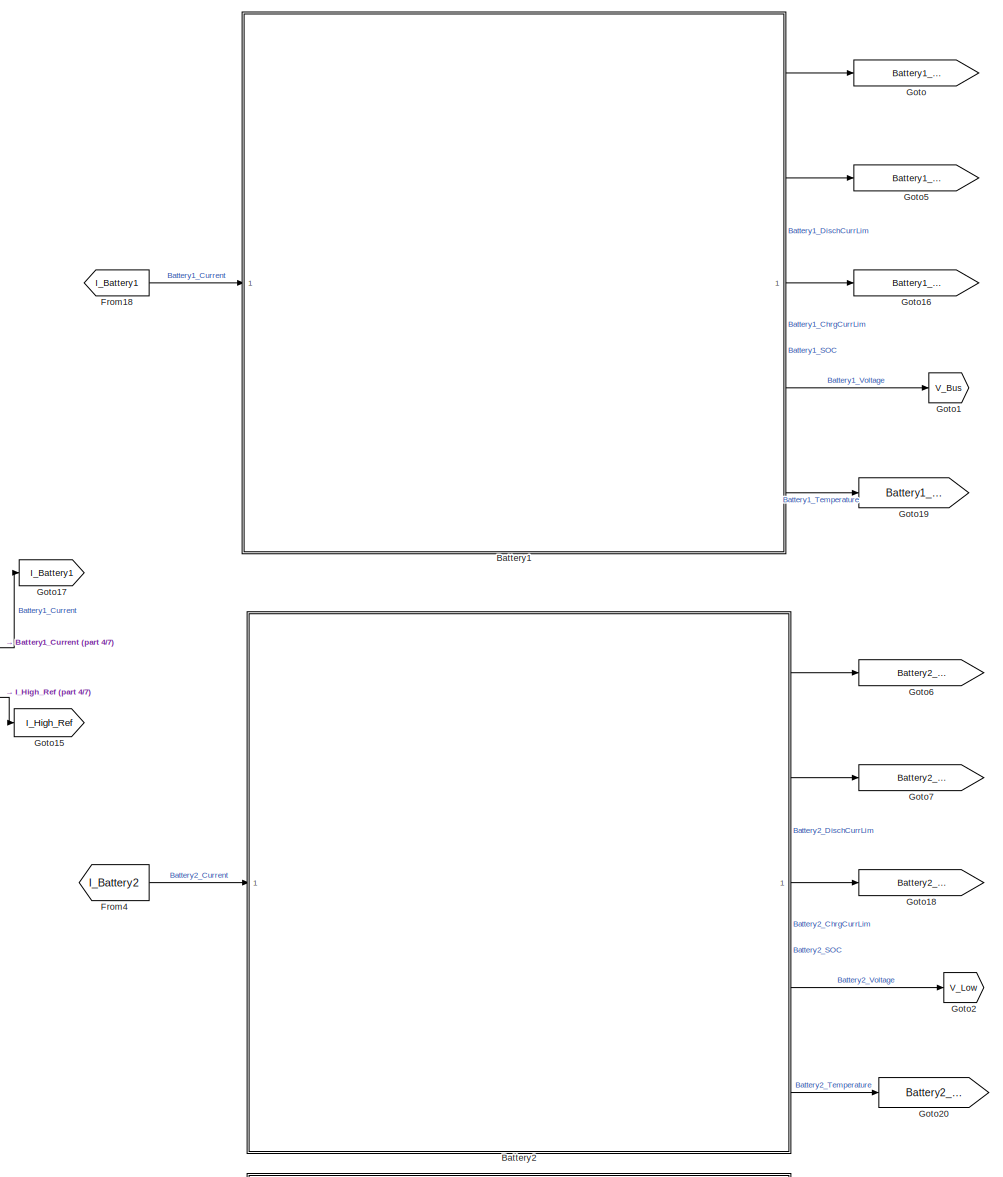
[diagram: root canvas - part 1/7, right side, full height]
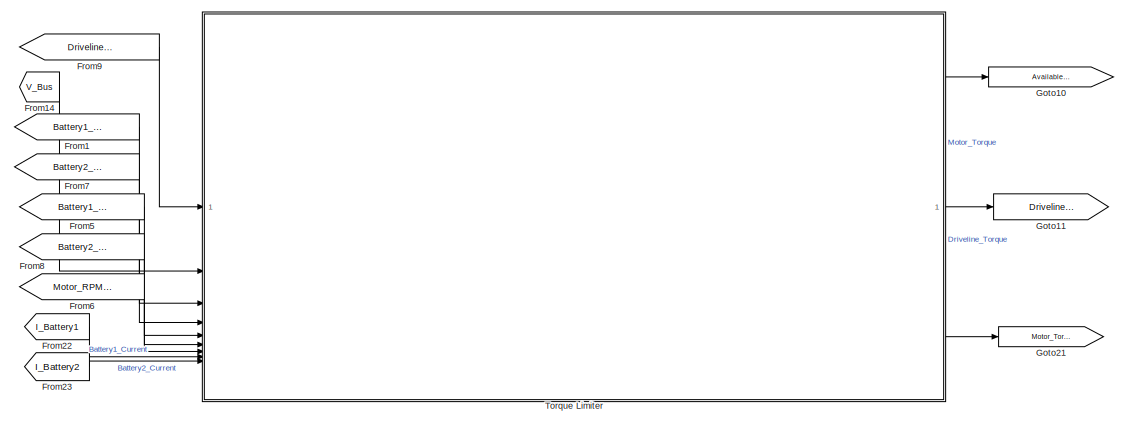
[diagram: root canvas - part 2/7, top left region]
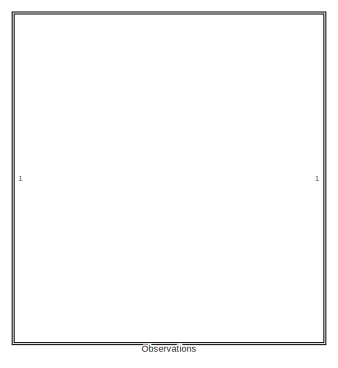
[diagram: root canvas - part 3/7, middle right region]
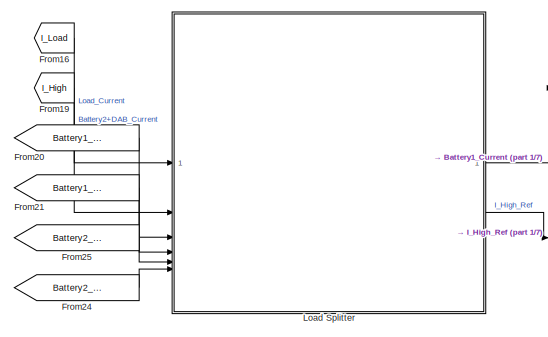
[diagram: root canvas - part 4/7, central region]
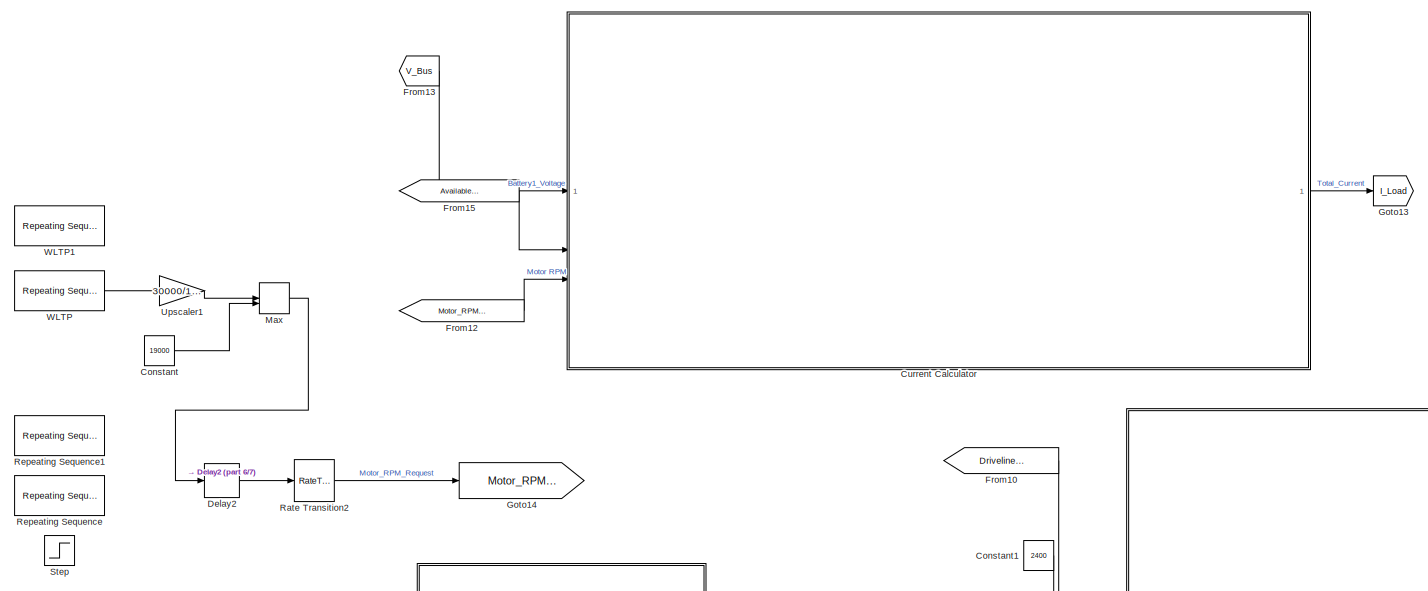
[diagram: root canvas - part 5/7, middle left region]
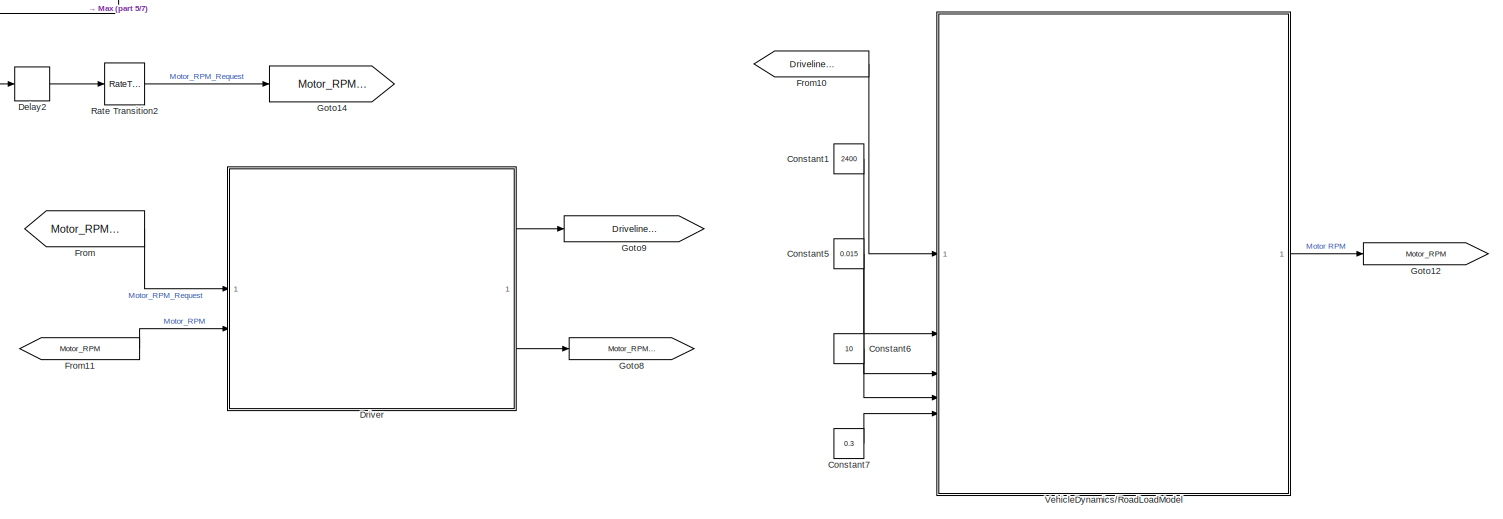
[diagram: root canvas - part 6/7, bottom left region]
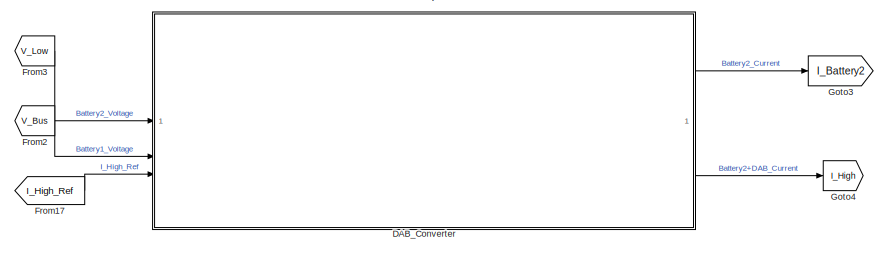
[diagram: root canvas - part 7/7, bottom right region]
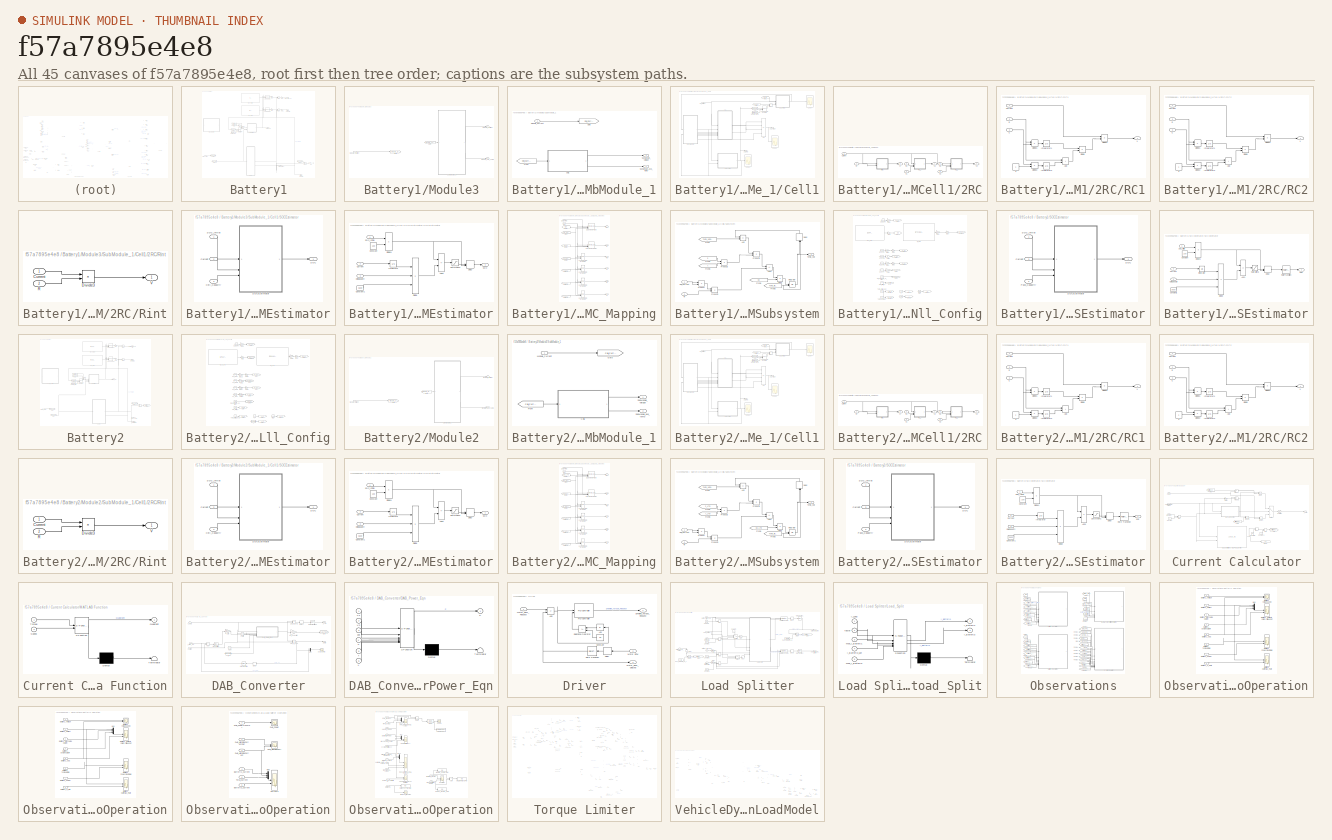
[diagram: thumbnail index - all 45 canvases of the model, root first then tree order]
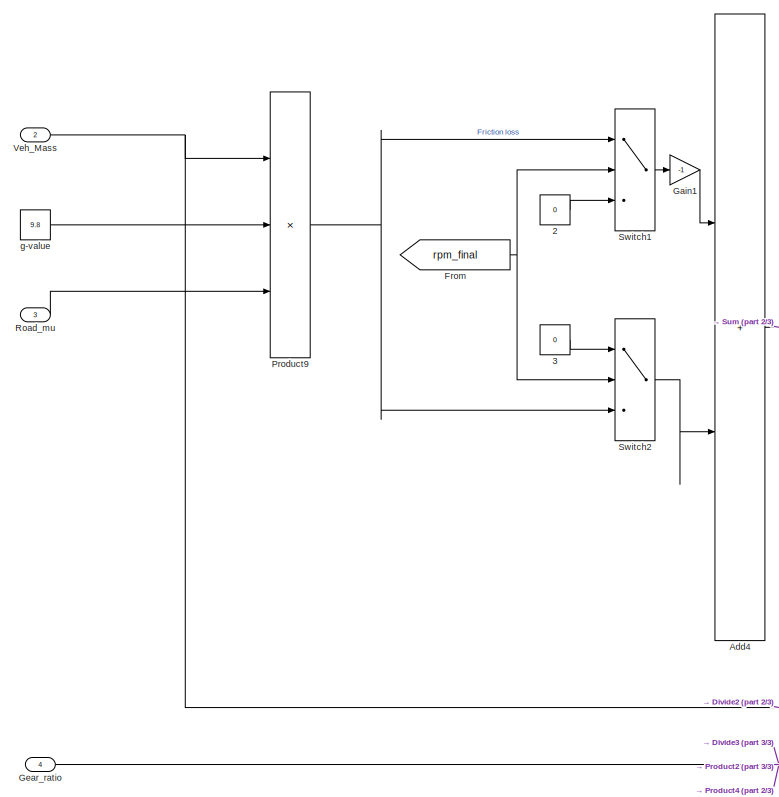
[diagram: VehicleDynamics/RoadLoadModel - part 1/3, left side, full height]
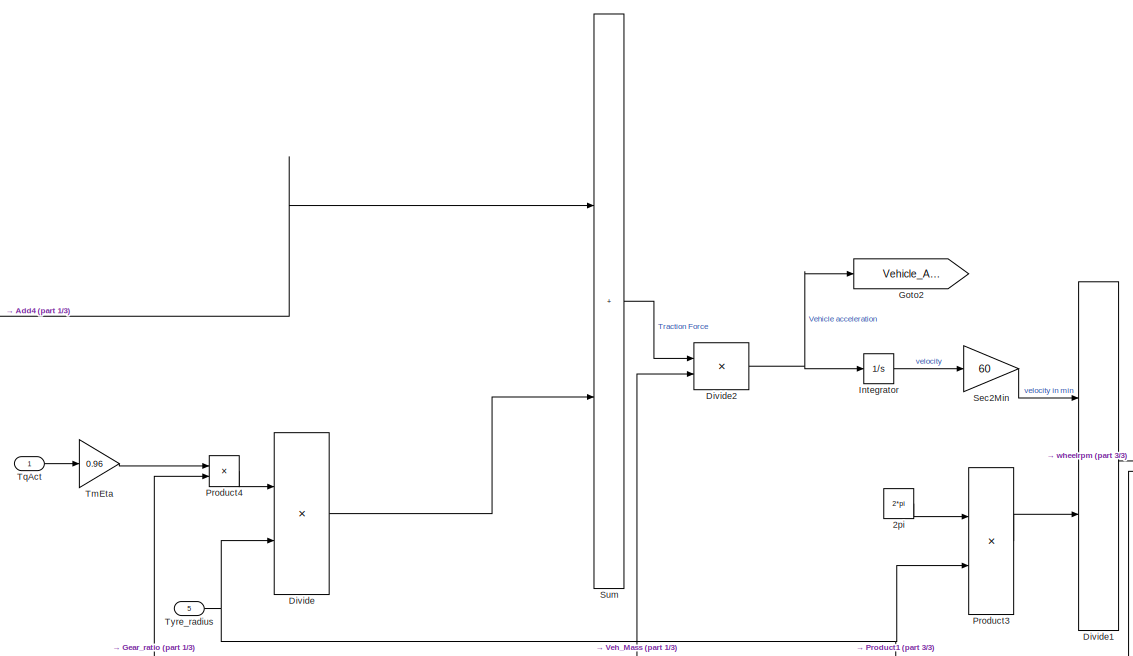
[diagram: VehicleDynamics/RoadLoadModel - part 2/3, central region]
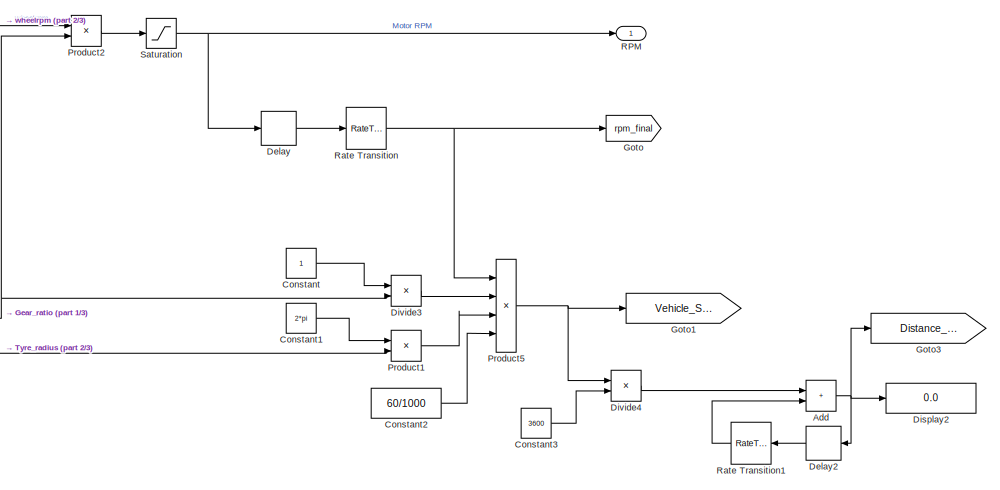
[diagram: VehicleDynamics/RoadLoadModel - part 3/3, bottom right region]
MODEL slx_f57a7895e4e8
KIND model
CONFIG AbsTol = auto
CONFIG EnableMultiTasking = off
CONFIG FixedStep = 0.01
CONFIG MaxStep = 0.1
CONFIG MinStep = auto
CONFIG PostLoadFcn = load("WLTP.mat")
CONFIG RelTol = 1e-3
CONFIG SampleTimeConstraint = Unconstrained
CONFIG SolverName = ode113
CONFIG StartTime = 0.0
CONFIG StopTime = 18000
BLOCK [SubSystem] Battery1
BLOCK [Lookup_n-D] Battery1/2-D Lookup Table1
  BreakpointsForDimension1 = [0 0.1 0.2 0.3 0.4 0.5 0.6 0.7 0.8 0.9 1]
  BreakpointsForDimension1FirstPoint = 10
  BreakpointsForDimension1Spacing = 12
  BreakpointsForDimension2 = [0 10 20 30 40 50 60]
  BreakpointsForDimension2FirstPoint = 10
  BreakpointsForDimension2Spacing = 12
  DiagnosticForOutOfRangeInput = Error
  IndexSearchMethod = Evenly spaced points
  InputPortMap = u0,u1,p221
  InternalRulePriority = Speed
  InterpMethod = Akima spline
  LookupTableObject = ''
  RndMeth = Simplest
  Table = [\n    2.954364, 3.109857, 3.273534, 3.3066, 3.34,    3.3734,  3.20473;\n    3.122427, 3.286765, 3.459753, 3.4947, 3.53,    3.5653,  3.387035;\n    3.175499, 3.342631, 3.518559, 3.5541, 3.59,    3.6259,  3.444605;\n    3.210881, 3.379875, 3.557763, 3.5937, 3.63,    3.6663,  3.482985;\n    3.237417, 3.407808, 3.587166, 3.6234, 3.66,    3.6966,  3.511777;\n    3.272799, 3.445052, 3.62637,  3.663,  3.7,   ...<+369ch>  <repeated x8 — deduplicated; at blocks: 2-D Lookup Table1, 2-D Lookup Table2, 2-D Lookup Table>
  TableSource = Input port
BLOCK [Lookup_n-D] Battery1/2-D Lookup Table2
  BreakpointsForDimension1 = [0 0.1 0.2 0.3 0.4 0.5 0.6 0.7 0.8 0.9 1]
  BreakpointsForDimension1FirstPoint = 10
  BreakpointsForDimension1Spacing = 12
  BreakpointsForDimension2 = [0 10 20 30 40 50 60]
  BreakpointsForDimension2FirstPoint = 10
  BreakpointsForDimension2Spacing = 12
  DiagnosticForOutOfRangeInput = Error
  IndexSearchMethod = Evenly spaced points
  InputPortMap = u0,u1,p221
  InternalRulePriority = Speed
  InterpMethod = Akima spline
  LookupTableObject = ''
  RndMeth = Simplest
  TableSource = Input port
BLOCK [Outport] Battery1/Battery1_ChargCurrLim
  Port = 2
BLOCK [Inport] Battery1/Battery1_Current
BLOCK [Outport] Battery1/Battery1_DischCurrLim
BLOCK [Outport] Battery1/Battery1_SOC
  Port = 3
BLOCK [Outport] Battery1/Battery1_Temperature
  Port = 5
BLOCK [Outport] Battery1/Battery1_Voltage
  Port = 4
BLOCK [Constant] Battery1/Chrg_PwrLim
  Value = [\n   -30, -60, -70, -70, -70, -20,   0;\n   -30, -70, -80, -80, -80, -20,   0;\n   -25, -65, -80, -80, -80, -20,   0;\n   -25, -55, -70, -75, -70, -20,   0;\n   -25, -47.5, -65, -70, -65, -20,  0;\n   -25, -37.5, -55, -60, -55, -20,  0;\n   -15, -27.5, -45, -50, -45, -15,  0;\n    -5, -20, -35, -40, -35,  -5,   0;\n    -5, -15, -25, -30, -25,  -5,   0;\n    -5, -10, -15, -20, -15,   0,   0;\n     0,   0,   ...<+23ch>
BLOCK [Constant] Battery1/Disch_PwrLim
  Value = [\n     0,   0,   0,   0,   0,   0,   0;\n     5,  10,  10,  20,  10,   0,   0;\n     5,  15,  25,  30,  25,   5,   0;\n     5,  20,  35,  40,  35,   5,   0;\n    15, 27.5, 45,  50,  45,  15,   0;\n    25, 37.5, 55,  60,  55,  20,   0;\n    25, 47.5, 65,  70,  65,  20,   0;\n    25, 57.5, 70,  75,  70,  20,   0;\n    25, 65,   80,  80,  80,  20,   0;\n    30, 70,   80,  80,  70,  20,   0;\n    30, 60,   70, ...<+20ch>
BLOCK [Product] Battery1/Divide1
  Inputs = */
BLOCK [Product] Battery1/Divide2
  Inputs = */
BLOCK [Gain] Battery1/Factor
  Gain = 2
BLOCK [Gain] Battery1/Factor1
  Gain = 2
BLOCK [From] Battery1/From
  GotoTag = Pack_Current
BLOCK [From] Battery1/From1
  GotoTag = SOC_Iinitial
  TagVisibility = global
BLOCK [From] Battery1/From2
  GotoTag = Cell_Capacity
  TagVisibility = global
BLOCK [From] Battery1/From3
  GotoTag = Pack_Current
BLOCK [Gain] Battery1/Gain3
BLOCK [Gain] Battery1/Gain4
  Gain = 1000
BLOCK [Gain] Battery1/Gain5
  Gain = 1000
BLOCK [Goto] Battery1/Goto
  GotoTag = Battery1_Power
  TagVisibility = global
BLOCK [Goto] Battery1/Goto1
  GotoTag = Pack_Current
BLOCK [Reference] Battery1/Lookup Table Dynamic2  REF=simulink/Lookup
Tables/Lookup
Table
Dynamic
  SourceBlock = simulink/Lookup\nTables/Lookup\nTable\nDynamic
  SourceType = Lookup Table Dynamic
BLOCK [SubSystem] Battery1/Module3
BLOCK [From] Battery1/Module3/From
  GotoTag = Module_Current
BLOCK [Goto] Battery1/Module3/Goto
  GotoTag = Module_Current
BLOCK [Inport] Battery1/Module3/Module_Current
BLOCK [Outport] Battery1/Module3/Module_Voltage
BLOCK [Outport] Battery1/Module3/Module_avg_Temp
  Port = 2
BLOCK [SubSystem] Battery1/Module3/SubModule_1
BLOCK [SubSystem] Battery1/Module3/SubModule_1/Cell1
BLOCK [SubSystem] Battery1/Module3/SubModule_1/Cell1/2RC
BLOCK [Inport] Battery1/Module3/SubModule_1/Cell1/2RC/C1
  Port = 4
BLOCK [Inport] Battery1/Module3/SubModule_1/Cell1/2RC/C2
  Port = 6
BLOCK [Inport] Battery1/Module3/SubModule_1/Cell1/2RC/Current
BLOCK [Inport] Battery1/Module3/SubModule_1/Cell1/2RC/R1
  Port = 3
BLOCK [Inport] Battery1/Module3/SubModule_1/Cell1/2RC/R2
  Port = 5
BLOCK [SubSystem] Battery1/Module3/SubModule_1/Cell1/2RC/RC1
BLOCK [Constant] Battery1/Module3/SubModule_1/Cell1/2RC/RC1/2
BLOCK [Sum] Battery1/Module3/SubModule_1/Cell1/2RC/RC1/Add
  IconShape = rectangular
BLOCK [Inport] Battery1/Module3/SubModule_1/Cell1/2RC/RC1/C
  Port = 3
BLOCK [Inport] Battery1/Module3/SubModule_1/Cell1/2RC/RC1/Current
BLOCK [Product] Battery1/Module3/SubModule_1/Cell1/2RC/RC1/Divide
  Inputs = */
BLOCK [Product] Battery1/Module3/SubModule_1/Cell1/2RC/RC1/Divide1
  Inputs = */
BLOCK [Product] Battery1/Module3/SubModule_1/Cell1/2RC/RC1/Divide2
  Inputs = /*
BLOCK [Product] Battery1/Module3/SubModule_1/Cell1/2RC/RC1/Divide3
  Inputs = **
BLOCK [Integrator] Battery1/Module3/SubModule_1/Cell1/2RC/RC1/Integrator1
BLOCK [Integrator] Battery1/Module3/SubModule_1/Cell1/2RC/RC1/Integrator2
BLOCK [Inport] Battery1/Module3/SubModule_1/Cell1/2RC/RC1/R
  Port = 2
BLOCK [Outport] Battery1/Module3/SubModule_1/Cell1/2RC/RC1/V
BLOCK [SubSystem] Battery1/Module3/SubModule_1/Cell1/2RC/RC2
BLOCK [Constant] Battery1/Module3/SubModule_1/Cell1/2RC/RC2/2
BLOCK [Sum] Battery1/Module3/SubModule_1/Cell1/2RC/RC2/Add
  IconShape = rectangular
BLOCK [Inport] Battery1/Module3/SubModule_1/Cell1/2RC/RC2/C
  Port = 3
BLOCK [Inport] Battery1/Module3/SubModule_1/Cell1/2RC/RC2/Current
BLOCK [Product] Battery1/Module3/SubModule_1/Cell1/2RC/RC2/Divide
  Inputs = */
BLOCK [Product] Battery1/Module3/SubModule_1/Cell1/2RC/RC2/Divide1
  Inputs = */
BLOCK [Product] Battery1/Module3/SubModule_1/Cell1/2RC/RC2/Divide2
  Inputs = /*
BLOCK [Product] Battery1/Module3/SubModule_1/Cell1/2RC/RC2/Divide3
  Inputs = **
BLOCK [Integrator] Battery1/Module3/SubModule_1/Cell1/2RC/RC2/Integrator1
BLOCK [Integrator] Battery1/Module3/SubModule_1/Cell1/2RC/RC2/Integrator2
BLOCK [Inport] Battery1/Module3/SubModule_1/Cell1/2RC/RC2/R
  Port = 2
BLOCK [Outport] Battery1/Module3/SubModule_1/Cell1/2RC/RC2/V
BLOCK [Inport] Battery1/Module3/SubModule_1/Cell1/2RC/Ri
  Port = 2
BLOCK [SubSystem] Battery1/Module3/SubModule_1/Cell1/2RC/Rint
BLOCK [Inport] Battery1/Module3/SubModule_1/Cell1/2RC/Rint/Current
BLOCK [Product] Battery1/Module3/SubModule_1/Cell1/2RC/Rint/Divide3
  Inputs = **
BLOCK [Inport] Battery1/Module3/SubModule_1/Cell1/2RC/Rint/R
  Port = 2
BLOCK [Outport] Battery1/Module3/SubModule_1/Cell1/2RC/Rint/V
BLOCK [Outport] Battery1/Module3/SubModule_1/Cell1/2RC/V1
BLOCK [Outport] Battery1/Module3/SubModule_1/Cell1/2RC/V2
  Port = 2
BLOCK [Outport] Battery1/Module3/SubModule_1/Cell1/2RC/Vi
  Port = 3
BLOCK [Sum] Battery1/Module3/SubModule_1/Cell1/Add
  IconShape = rectangular
  Inputs = ---+
BLOCK [Inport] Battery1/Module3/SubModule_1/Cell1/Cell_Current
BLOCK [Outport] Battery1/Module3/SubModule_1/Cell1/Cell_Voltage
BLOCK [Outport] Battery1/Module3/SubModule_1/Cell1/Cell_temp
  Port = 2
BLOCK [From] Battery1/Module3/SubModule_1/Cell1/From
  GotoTag = Cell_Capacity
  TagVisibility = global
BLOCK [From] Battery1/Module3/SubModule_1/Cell1/From1
  GotoTag = SOC_Iinitial
  TagVisibility = global
BLOCK [Reference] Battery1/Module3/SubModule_1/Cell1/Lookup Table Dynamic2  REF=simulink/Lookup
Tables/Lookup
Table
Dynamic
  SourceBlock = simulink/Lookup\nTables/Lookup\nTable\nDynamic
  SourceType = Lookup Table Dynamic
BLOCK [Product] Battery1/Module3/SubModule_1/Cell1/Product
BLOCK [Constant] Battery1/Module3/SubModule_1/Cell1/Redution_factor
  Value = [0.8 0.85 0.88 0.95 1 0.98 0.95]
BLOCK [SubSystem] Battery1/Module3/SubModule_1/Cell1/SOCEstimator
  TreatAsAtomicUnit = on
BLOCK [Inport] Battery1/Module3/SubModule_1/Cell1/SOCEstimator/Cell_Capacity
  Port = 3
BLOCK [Inport] Battery1/Module3/SubModule_1/Cell1/SOCEstimator/Current
  Port = 2
BLOCK [Outport] Battery1/Module3/SubModule_1/Cell1/SOCEstimator/SOC
BLOCK [SubSystem] Battery1/Module3/SubModule_1/Cell1/SOCEstimator/SOCEstimator
  NameLocation = top
BLOCK [Sum] Battery1/Module3/SubModule_1/Cell1/SOCEstimator/SOCEstimator/Add1
  IconShape = rectangular
  Inputs = +-
BLOCK [Inport] Battery1/Module3/SubModule_1/Cell1/SOCEstimator/SOCEstimator/CellCapacity
  Port = 3
BLOCK [Constant] Battery1/Module3/SubModule_1/Cell1/SOCEstimator/SOCEstimator/Constant
  SampleTime = -1
  Value = 100
BLOCK [Constant] Battery1/Module3/SubModule_1/Cell1/SOCEstimator/SOCEstimator/Constant1
  SampleTime = -1
  Value = 3600
BLOCK [Inport] Battery1/Module3/SubModule_1/Cell1/SOCEstimator/SOCEstimator/Current
  Port = 2
BLOCK [Delay] Battery1/Module3/SubModule_1/Cell1/SOCEstimator/SOCEstimator/Delay
  DelayLength = 1
  InitialConditionSource = Input port
  InputPortMap = u0,p4
BLOCK [Product] Battery1/Module3/SubModule_1/Cell1/SOCEstimator/SOCEstimator/Divide
  Inputs = *//
BLOCK [Product] Battery1/Module3/SubModule_1/Cell1/SOCEstimator/SOCEstimator/Divide1
  Inputs = */
BLOCK [Integrator] Battery1/Module3/SubModule_1/Cell1/SOCEstimator/SOCEstimator/Integrator
BLOCK [Outport] Battery1/Module3/SubModule_1/Cell1/SOCEstimator/SOCEstimator/SOC
BLOCK [Inport] Battery1/Module3/SubModule_1/Cell1/SOCEstimator/SOCEstimator/SOC_Initial
BLOCK [Saturate] Battery1/Module3/SubModule_1/Cell1/SOCEstimator/SOCEstimator/Saturation1
  LowerLimit = 0
  UpperLimit = 1
BLOCK [Inport] Battery1/Module3/SubModule_1/Cell1/SOCEstimator/SOC_Initial
BLOCK [SubSystem] Battery1/Module3/SubModule_1/Cell1/SOC_Mapping
BLOCK [Lookup_n-D] Battery1/Module3/SubModule_1/Cell1/SOC_Mapping/2-D Lookup Table
  BreakpointsForDimension1 = [0 0.1 0.2 0.3 0.4 0.5 0.6 0.7 0.8 0.9 1]
  BreakpointsForDimension1FirstPoint = 10
  BreakpointsForDimension1Source = Input port
  BreakpointsForDimension1Spacing = 12
  BreakpointsForDimension2 = [0 10 20 30 40 50 60]
  BreakpointsForDimension2FirstPoint = 10
  BreakpointsForDimension2Spacing = 12
  DiagnosticForOutOfRangeInput = Error
  IndexSearchMethod = Evenly spaced points
  InputPortMap = u0,u1,p221,p5
  InternalRulePriority = Speed
  InterpMethod = Akima spline
  LookupTableObject = ''
  RndMeth = Simplest
  TableSource = Input port
BLOCK [Lookup_n-D] Battery1/Module3/SubModule_1/Cell1/SOC_Mapping/2-D Lookup Table1
  BreakpointsForDimension1 = [0 0.1 0.2 0.3 0.4 0.5 0.6 0.7 0.8 0.9 1]
  BreakpointsForDimension1FirstPoint = 10
  BreakpointsForDimension1Source = Input port
  BreakpointsForDimension1Spacing = 12
  BreakpointsForDimension2 = [0 10 20 30 40 50 60]
  BreakpointsForDimension2FirstPoint = 10
  BreakpointsForDimension2Spacing = 12
  DiagnosticForOutOfRangeInput = Error
  IndexSearchMethod = Evenly spaced points
  InputPortMap = u0,u1,p221,p5
  InternalRulePriority = Speed
  InterpMethod = Akima spline
  LookupTableObject = ''
  RndMeth = Simplest
  TableSource = Input port
BLOCK [Outport] Battery1/Module3/SubModule_1/Cell1/SOC_Mapping/C1
  Port = 3
BLOCK [Outport] Battery1/Module3/SubModule_1/Cell1/SOC_Mapping/C2
  Port = 5
BLOCK [Inport] Battery1/Module3/SubModule_1/Cell1/SOC_Mapping/Cell_Temp
  Port = 2
BLOCK [From] Battery1/Module3/SubModule_1/Cell1/SOC_Mapping/From
  GotoTag = SOC_User
  TagVisibility = global
BLOCK [From] Battery1/Module3/SubModule_1/Cell1/SOC_Mapping/From10
  GotoTag = C1_User
  TagVisibility = global
BLOCK [From] Battery1/Module3/SubModule_1/Cell1/SOC_Mapping/From12
  GotoTag = R2_User
  TagVisibility = global
BLOCK [From] Battery1/Module3/SubModule_1/Cell1/SOC_Mapping/From13
  GotoTag = C2_User
  TagVisibility = global
BLOCK [From] Battery1/Module3/SubModule_1/Cell1/SOC_Mapping/From3
  GotoTag = OCV
  TagVisibility = global
BLOCK [From] Battery1/Module3/SubModule_1/Cell1/SOC_Mapping/From4
  GotoTag = Ri_User
  TagVisibility = global
BLOCK [From] Battery1/Module3/SubModule_1/Cell1/SOC_Mapping/From9
  GotoTag = R1_User
  TagVisibility = global
BLOCK [Reference] Battery1/Module3/SubModule_1/Cell1/SOC_Mapping/Lookup Table Dynamic3  REF=simulink/Lookup
Tables/Lookup
Table
Dynamic
  SourceBlock = simulink/Lookup\nTables/Lookup\nTable\nDynamic
  SourceType = Lookup Table Dynamic
BLOCK [Reference] Battery1/Module3/SubModule_1/Cell1/SOC_Mapping/Lookup Table Dynamic4  REF=simulink/Lookup
Tables/Lookup
Table
Dynamic
  SourceBlock = simulink/Lookup\nTables/Lookup\nTable\nDynamic
  SourceType = Lookup Table Dynamic
BLOCK [Reference] Battery1/Module3/SubModule_1/Cell1/SOC_Mapping/Lookup Table Dynamic5  REF=simulink/Lookup
Tables/Lookup
Table
Dynamic
  SourceBlock = simulink/Lookup\nTables/Lookup\nTable\nDynamic
  SourceType = Lookup Table Dynamic
BLOCK [Reference] Battery1/Module3/SubModule_1/Cell1/SOC_Mapping/Lookup Table Dynamic6  REF=simulink/Lookup
Tables/Lookup
Table
Dynamic
  SourceBlock = simulink/Lookup\nTables/Lookup\nTable\nDynamic
  SourceType = Lookup Table Dynamic
BLOCK [Outport] Battery1/Module3/SubModule_1/Cell1/SOC_Mapping/OCV
  Port = 6
BLOCK [Outport] Battery1/Module3/SubModule_1/Cell1/SOC_Mapping/R1
  Port = 2
BLOCK [Outport] Battery1/Module3/SubModule_1/Cell1/SOC_Mapping/R2
  Port = 4
BLOCK [Outport] Battery1/Module3/SubModule_1/Cell1/SOC_Mapping/Ri
BLOCK [Inport] Battery1/Module3/SubModule_1/Cell1/SOC_Mapping/SOC
BLOCK [Scope] Battery1/Module3/SubModule_1/Cell1/Scope
  DataLoggingDecimateData = on
  DataLoggingDecimation = 1
  DataLoggingLimitDataPoints = on
  DataLoggingSaveFormat = Array
  DataLoggingVariableName = ScopeData1
  Floating = off
  GraphicalSettings = {"GraphicalSettings":{"LegacySettings":true,"Style":{"AxesScalingProperties":{"AlignXAxis":"Center","AlignYAxis":"Center","AutoScaleXAxisLimits":true,"AxesScaling":"Manual","AxesScalingNumUpdates":10,"ScaleAxesLimitsAtStop":true,"XAxisDataRange":100,"YAxisDataRange":80},"Style":{"ChannelNames":[""],"CurrentConfiguration":"extmgr.ConfigurationSet","DefaultLegendLabel":[""],"LineColor":[""],"LineSty...<+221ch>  <repeated x6 — deduplicated; at blocks: Scope, Scope1, Scope2>
  LayoutDimensionsString = [1 1]
  NumInputPorts = 1
  WasSavedAsWebScope = on
  WindowPosition = [1640 870 560 420]
BLOCK [Scope] Battery1/Module3/SubModule_1/Cell1/Scope1
  DataLoggingDecimateData = on
  DataLoggingDecimation = 1
  DataLoggingLimitDataPoints = on
  DataLoggingSaveFormat = Array
  DataLoggingVariableName = ScopeData2
  Floating = off
  LayoutDimensionsString = [1 1]
  NumInputPorts = 1
  WasSavedAsWebScope = on
  WindowPosition = [1640 870 560 420]
BLOCK [Scope] Battery1/Module3/SubModule_1/Cell1/Scope2
  DataLoggingDecimateData = on
  DataLoggingDecimation = 1
  DataLoggingLimitDataPoints = on
  DataLoggingSaveFormat = Array
  DataLoggingVariableName = ScopeData1
  Floating = off
  LayoutDimensionsString = [1 1]
  NumInputPorts = 1
  WasSavedAsWebScope = on
  WindowPosition = [1640 870 560 420]
BLOCK [SubSystem] Battery1/Module3/SubModule_1/Cell1/Subsystem
BLOCK [Sum] Battery1/Module3/SubModule_1/Cell1/Subsystem/Add
  IconShape = rectangular
  Inputs = +-
BLOCK [Sum] Battery1/Module3/SubModule_1/Cell1/Subsystem/Add1
  IconShape = rectangular
  Inputs = -+
BLOCK [Inport] Battery1/Module3/SubModule_1/Cell1/Subsystem/Cell_Current
BLOCK [Delay] Battery1/Module3/SubModule_1/Cell1/Subsystem/Delay
  DelayLength = 1
  InitialConditionSource = Input port
  InputPortMap = u0,p4
  NameLocation = right
BLOCK [Product] Battery1/Module3/SubModule_1/Cell1/Subsystem/Divide
  Inputs = */
BLOCK [From] Battery1/Module3/SubModule_1/Cell1/Subsystem/From
  GotoTag = Temp_ambient
  TagVisibility = global
BLOCK [From] Battery1/Module3/SubModule_1/Cell1/Subsystem/From1
  GotoTag = h
  TagVisibility = global
BLOCK [From] Battery1/Module3/SubModule_1/Cell1/Subsystem/From2
  GotoTag = Temp_Iinitial
  TagVisibility = global
BLOCK [From] Battery1/Module3/SubModule_1/Cell1/Subsystem/From3
  TagVisibility = global
BLOCK [From] Battery1/Module3/SubModule_1/Cell1/Subsystem/From4
  GotoTag = Cp
  TagVisibility = global
BLOCK [Integrator] Battery1/Module3/SubModule_1/Cell1/Subsystem/Integrator
  InitialConditionSource = external
BLOCK [Product] Battery1/Module3/SubModule_1/Cell1/Subsystem/Product
BLOCK [Product] Battery1/Module3/SubModule_1/Cell1/Subsystem/Product1
BLOCK [Product] Battery1/Module3/SubModule_1/Cell1/Subsystem/Product2
BLOCK [Product] Battery1/Module3/SubModule_1/Cell1/Subsystem/Product3
BLOCK [Inport] Battery1/Module3/SubModule_1/Cell1/Subsystem/Ri
  Port = 2
BLOCK [Outport] Battery1/Module3/SubModule_1/Cell1/Subsystem/Temp_Cell
BLOCK [Constant] Battery1/Module3/SubModule_1/Cell1/Temp
  Value = [0 10 20 30 40 50 60]
BLOCK [From] Battery1/Module3/SubModule_1/From
  GotoTag = Cell_Current
BLOCK [Goto] Battery1/Module3/SubModule_1/Goto
  GotoTag = Cell_Current
BLOCK [Inport] Battery1/Module3/SubModule_1/Module_Current
BLOCK [Outport] Battery1/Module3/SubModule_1/SubModule_Voltage
BLOCK [Outport] Battery1/Module3/SubModule_1/SubModule_avg_temp
  Port = 2
BLOCK [SubSystem] Battery1/NMC_Cell_Config
BLOCK [Constant] Battery1/NMC_Cell_Config/A
  Value = 0.013*660
BLOCK [Constant] Battery1/NMC_Cell_Config/C1_User1
  Value = [800 850 900 950 1000 1050 1000 950 900 850 800]
BLOCK [Constant] Battery1/NMC_Cell_Config/C2_User
  Value = [15 16 17 18 19 20 19 18 17 16 15]
BLOCK [Constant] Battery1/NMC_Cell_Config/Cell_Capacity_Ah_rated
  Value = 26.5*3
BLOCK [Gain] Battery1/NMC_Cell_Config/Gain
  Gain = 220
BLOCK [Gain] Battery1/NMC_Cell_Config/Gain1
  Gain = 1e-03
BLOCK [Gain] Battery1/NMC_Cell_Config/Gain2
BLOCK [Gain] Battery1/NMC_Cell_Config/Gain3
  Gain = 1e-03
BLOCK [Gain] Battery1/NMC_Cell_Config/Gain4
  Gain = 1e+03
BLOCK [Gain] Battery1/NMC_Cell_Config/Gain5
  Gain = 0.01
BLOCK [Gain] Battery1/NMC_Cell_Config/Gain6
  Gain = 1e-04
BLOCK [Gain] Battery1/NMC_Cell_Config/Gain7
  Gain = 220/3
BLOCK [Gain] Battery1/NMC_Cell_Config/Gain8
  Gain = 220/3
BLOCK [Gain] Battery1/NMC_Cell_Config/Gain9
  Gain = 220/3
BLOCK [Goto] Battery1/NMC_Cell_Config/Goto
  GotoTag = SOC_User
  TagVisibility = global
BLOCK [Goto] Battery1/NMC_Cell_Config/Goto10
  GotoTag = h
  TagVisibility = global
BLOCK [Goto] Battery1/NMC_Cell_Config/Goto11
  TagVisibility = global
BLOCK [Goto] Battery1/NMC_Cell_Config/Goto12
  GotoTag = Cp
  TagVisibility = global
BLOCK [Goto] Battery1/NMC_Cell_Config/Goto13
  GotoTag = Ri_User
  TagVisibility = global
BLOCK [Goto] Battery1/NMC_Cell_Config/Goto2
  GotoTag = R1_User
  TagVisibility = global
BLOCK [Goto] Battery1/NMC_Cell_Config/Goto20
  GotoTag = OCV
  TagVisibility = global
BLOCK [Goto] Battery1/NMC_Cell_Config/Goto3
  GotoTag = C1_User
  TagVisibility = global
BLOCK [Goto] Battery1/NMC_Cell_Config/Goto4
  GotoTag = R2_User
  TagVisibility = global
BLOCK [Goto] Battery1/NMC_Cell_Config/Goto5
  GotoTag = C2_User
  TagVisibility = global
BLOCK [Goto] Battery1/NMC_Cell_Config/Goto6
  GotoTag = Cell_Capacity
  TagVisibility = global
BLOCK [Goto] Battery1/NMC_Cell_Config/Goto7
  GotoTag = SOC_Iinitial
  TagVisibility = global
BLOCK [Goto] Battery1/NMC_Cell_Config/Goto8
  GotoTag = Temp_Iinitial
  TagVisibility = global
BLOCK [Goto] Battery1/NMC_Cell_Config/Goto9
  GotoTag = Temp_ambient
  TagVisibility = global
BLOCK [Constant] Battery1/NMC_Cell_Config/M*Cp
  Value = 369*660
BLOCK [Constant] Battery1/NMC_Cell_Config/OCV_NMC
  Value = [\n    2.954364, 3.109857, 3.273534, 3.3066, 3.34,    3.3734,  3.20473;\n    3.122427, 3.286765, 3.459753, 3.4947, 3.53,    3.5653,  3.387035;\n    3.175499, 3.342631, 3.518559, 3.5541, 3.59,    3.6259,  3.444605;\n    3.210881, 3.379875, 3.557763, 3.5937, 3.63,    3.6663,  3.482985;\n    3.237417, 3.407808, 3.587166, 3.6234, 3.66,    3.6966,  3.511777;\n    3.272799, 3.445052, 3.62637,  3.663,  3.7,   ...<+369ch>
BLOCK [Constant] Battery1/NMC_Cell_Config/R1_User
  Value = [1.5 1.2 0.9 0.7 0.6 0.5 0.5 0.5 0.6 0.7 0.8]
BLOCK [Constant] Battery1/NMC_Cell_Config/R2_User1
  Value = [2.5 2 1.6 1.3 1.1 1 1.1 1.2 1.3 1.4 1.5]
BLOCK [Constant] Battery1/NMC_Cell_Config/Ri_NMC
  Value = [67.2155, 61.105, 55.55, 55, 52.25, 49.6375, 54.60125;\n    48.884, 44.44, 40.4, 40, 38, 36.1, 39.71;\n    44.60665, 40.5515, 36.865, 36.5, 34.675, 32.94125, 36.23538;\n    41.5514, 37.774, 34.34, 34, 32.83, 30.685, 33.7535;\n    40.3293, 36.663, 33.33, 33, 31.35, 29.7825, 32.76075;\n    39.71825, 36.1075, 32.825, 32.5, 31.25, 29.33125, 32.26438;\n    40.08488, 36.4408, 33.128, 32.8, 31.16, 29.602, 32.5...<+234ch>
BLOCK [Constant] Battery1/NMC_Cell_Config/SOC_Initial_%
  Value = 100
BLOCK [Constant] Battery1/NMC_Cell_Config/SOC_User
  Value = [0 10 20 30 40 50 60 70 80 90 100]
BLOCK [Constant] Battery1/NMC_Cell_Config/Temp_Initial_degC
  Value = 25
BLOCK [Constant] Battery1/NMC_Cell_Config/Temp_ambient
  Value = 25
BLOCK [Constant] Battery1/NMC_Cell_Config/h
  Value = 10
BLOCK [Product] Battery1/Product1
BLOCK [Product] Battery1/Product2
BLOCK [Constant] Battery1/Redution_factor
  Value = [0.8 0.85 0.88 0.95 1 0.98 0.95]
BLOCK [SubSystem] Battery1/SOCEstimator
  TreatAsAtomicUnit = on
BLOCK [Inport] Battery1/SOCEstimator/Current
  Port = 3
BLOCK [Inport] Battery1/SOCEstimator/Pack_Capacity
  Port = 2
BLOCK [Outport] Battery1/SOCEstimator/SOC
BLOCK [SubSystem] Battery1/SOCEstimator/SOCEstimator
  NameLocation = top
BLOCK [Sum] Battery1/SOCEstimator/SOCEstimator/Add1
  IconShape = rectangular
  Inputs = +-
BLOCK [Inport] Battery1/SOCEstimator/SOCEstimator/CellCapacity
  Port = 3
BLOCK [Constant] Battery1/SOCEstimator/SOCEstimator/Constant
  SampleTime = -1
  Value = 100
BLOCK [Constant] Battery1/SOCEstimator/SOCEstimator/Constant1
  SampleTime = -1
  Value = 3600
BLOCK [Inport] Battery1/SOCEstimator/SOCEstimator/Current
  Port = 2
BLOCK [Delay] Battery1/SOCEstimator/SOCEstimator/Delay
  DelayLength = 1
  InitialConditionSource = Input port
  InputPortMap = u0,p4
BLOCK [Product] Battery1/SOCEstimator/SOCEstimator/Divide
  Inputs = *//
BLOCK [Product] Battery1/SOCEstimator/SOCEstimator/Divide1
  Inputs = */
BLOCK [Integrator] Battery1/SOCEstimator/SOCEstimator/Integrator
BLOCK [RateTransition] Battery1/SOCEstimator/SOCEstimator/Rate Transition
BLOCK [Outport] Battery1/SOCEstimator/SOCEstimator/SOC
BLOCK [Inport] Battery1/SOCEstimator/SOCEstimator/SOC_Initial
BLOCK [Saturate] Battery1/SOCEstimator/SOCEstimator/Saturation1
  LowerLimit = 0
  UpperLimit = 1
BLOCK [Inport] Battery1/SOCEstimator/SOC_Initial
BLOCK [Constant] Battery1/Temp
  Value = [0 10 20 30 40 50 60]
BLOCK [SubSystem] Battery2
BLOCK [Lookup_n-D] Battery2/2-D Lookup Table1
  BreakpointsForDimension1 = [0 0.1 0.2 0.3 0.4 0.5 0.6 0.7 0.8 0.9 1]
  BreakpointsForDimension1FirstPoint = 10
  BreakpointsForDimension1Spacing = 12
  BreakpointsForDimension2 = [0 10 20 30 40 50 60]
  BreakpointsForDimension2FirstPoint = 10
  BreakpointsForDimension2Spacing = 12
  IndexSearchMethod = Evenly spaced points
  InputPortMap = u0,u1,p221
  InternalRulePriority = Speed
  InterpMethod = Akima spline
  LookupTableObject = ''
  RndMeth = Simplest
  TableSource = Input port
BLOCK [Lookup_n-D] Battery2/2-D Lookup Table2
  BreakpointsForDimension1 = [0 0.1 0.2 0.3 0.4 0.5 0.6 0.7 0.8 0.9 1]
  BreakpointsForDimension1FirstPoint = 10
  BreakpointsForDimension1Spacing = 12
  BreakpointsForDimension2 = [0 10 20 30 40 50 60]
  BreakpointsForDimension2FirstPoint = 10
  BreakpointsForDimension2Spacing = 12
  IndexSearchMethod = Evenly spaced points
  InputPortMap = u0,u1,p221
  InternalRulePriority = Speed
  InterpMethod = Akima spline
  LookupTableObject = ''
  RndMeth = Simplest
  TableSource = Input port
BLOCK [Outport] Battery2/Battery2_ChargCurrLim
  Port = 2
BLOCK [Inport] Battery2/Battery2_Current
BLOCK [Outport] Battery2/Battery2_DischCurrLim
BLOCK [Outport] Battery2/Battery2_SOC
  Port = 3
BLOCK [Outport] Battery2/Battery2_Temperature
  Port = 5
BLOCK [Outport] Battery2/Battery2_Voltage
  Port = 4
BLOCK [Constant] Battery2/Chrg_PwrLim
  Value = [-49.5,-55,-55,-55,-55,-55,-49.5;-49.5,-55,-55,-55,-55,-55,-49.5;-49.5,-55,-55,-55,-55,-55,-49.5;-49.5,-55,-55,-55,-55,-55,-49.5;-49.5,-55,-55,-55,-55,-55,-49.5;-49.5,-55,-55,-55,-55,-55,-49.5;-49.5,-55,-55,-55,-55,-55,-49.5;-49.5,-55,-55,-55,-55,-55,-49.5;-49.5,-55,-55,-55,-55,-55,-49.5;-49.5,-55,-55,-55,-55,-55,-49.5;0,0,0,0,0,0,0]
BLOCK [Constant] Battery2/Disch_PwrLim
  Value = [0,0,0,0,0,0,0;18,20,20,20,20,20,18;36,40,40,40,40,40,36;54,60,60,60,60,60,54;54,60,60,60,60,60,54;54,60,60,60,60,60,54;54,60,60,60,60,60,54;54,60,60,60,60,60,54;54,60,60,60,60,60,54;54,60,60,60,60,60,54;54,60,60,60,60,60,54]
BLOCK [Product] Battery2/Divide1
  Inputs = */
BLOCK [Product] Battery2/Divide2
  Inputs = */
BLOCK [From] Battery2/From
  GotoTag = Pack_Current
BLOCK [From] Battery2/From1
  GotoTag = SOC_Iinitial_LTO
  TagVisibility = global
BLOCK [From] Battery2/From2
  GotoTag = Cell_Capacity_LTO
  TagVisibility = global
BLOCK [From] Battery2/From3
  GotoTag = Pack_Current
BLOCK [Gain] Battery2/Gain4
  Gain = 1000
BLOCK [Gain] Battery2/Gain5
  Gain = 1000
BLOCK [Goto] Battery2/Goto
  GotoTag = Battery2_Power
  TagVisibility = global
BLOCK [Goto] Battery2/Goto1
  GotoTag = Pack_Current
BLOCK [SubSystem] Battery2/LTO_Cell_Config
BLOCK [Constant] Battery2/LTO_Cell_Config/A
  Value = 0.0344*96
BLOCK [Constant] Battery2/LTO_Cell_Config/C1_User1
  Value = [5.0, 9.0, 12.0, 14.0, 14.8, 15.0, 14.8, 13.0, 10.0, 7.0, 4.5]
BLOCK [Constant] Battery2/LTO_Cell_Config/C2_User
  Value = [50, 90, 130, 160, 168, 170, 168, 155, 120, 80, 45]
BLOCK [Constant] Battery2/LTO_Cell_Config/Cell_Capacity_Ah_rated
  Value = 23*2
BLOCK [Gain] Battery2/LTO_Cell_Config/Gain
  Gain = 48
BLOCK [Gain] Battery2/LTO_Cell_Config/Gain1
  Gain = 1e-03
BLOCK [Gain] Battery2/LTO_Cell_Config/Gain10
  Gain = 1e-03
BLOCK [Gain] Battery2/LTO_Cell_Config/Gain2
  Gain = 1e+03
BLOCK [Gain] Battery2/LTO_Cell_Config/Gain4
  Gain = 1e+03
BLOCK [Gain] Battery2/LTO_Cell_Config/Gain5
  Gain = 0.01
BLOCK [Gain] Battery2/LTO_Cell_Config/Gain6
  Gain = 1e-03
BLOCK [Gain] Battery2/LTO_Cell_Config/Gain7
  Gain = 48/2
BLOCK [Gain] Battery2/LTO_Cell_Config/Gain8
  Gain = 48/2
BLOCK [Gain] Battery2/LTO_Cell_Config/Gain9
  Gain = 48/2
BLOCK [Goto] Battery2/LTO_Cell_Config/Goto
  GotoTag = SOC_User_LTO
  TagVisibility = global
BLOCK [Goto] Battery2/LTO_Cell_Config/Goto10
  GotoTag = h_LTO
  TagVisibility = global
BLOCK [Goto] Battery2/LTO_Cell_Config/Goto11
  GotoTag = A_LTO
  TagVisibility = global
BLOCK [Goto] Battery2/LTO_Cell_Config/Goto12
  GotoTag = Cp_LTO
  TagVisibility = global
BLOCK [Goto] Battery2/LTO_Cell_Config/Goto13
  GotoTag = Ri_User_LTO
  TagVisibility = global
BLOCK [Goto] Battery2/LTO_Cell_Config/Goto2
  GotoTag = R1_User_LTO
  TagVisibility = global
BLOCK [Goto] Battery2/LTO_Cell_Config/Goto20
  GotoTag = OCV_LTO
  TagVisibility = global
BLOCK [Goto] Battery2/LTO_Cell_Config/Goto3
  GotoTag = C1_User_LTO
  TagVisibility = global
BLOCK [Goto] Battery2/LTO_Cell_Config/Goto4
  GotoTag = R2_User_LTO
  TagVisibility = global
BLOCK [Goto] Battery2/LTO_Cell_Config/Goto5
  GotoTag = C2_User_LTO
  TagVisibility = global
BLOCK [Goto] Battery2/LTO_Cell_Config/Goto6
  GotoTag = Cell_Capacity_LTO
  TagVisibility = global
BLOCK [Goto] Battery2/LTO_Cell_Config/Goto7
  GotoTag = SOC_Iinitial_LTO
  TagVisibility = global
BLOCK [Goto] Battery2/LTO_Cell_Config/Goto8
  GotoTag = Temp_Iinitial_LTO
  TagVisibility = global
BLOCK [Constant] Battery2/LTO_Cell_Config/M*Cp
  Value = 632.5*96
BLOCK [Constant] Battery2/LTO_Cell_Config/OCV_LTO
  Value = [1.79,  1.77,   1.76,   1.74,   1.71,   1.69,   1.66;\n    2.09,  2.09,   2.08,   2.07,   2.06,   2.05,   2.04;\n    2.19,  2.19,   2.18,   2.18,   2.17,   2.16,   2.15;\n    2.23,  2.23,   2.23,   2.22,   2.22,   2.21,   2.21;\n    2.25,  2.25,   2.25,   2.24,   2.24,   2.23,   2.23;\n    2.28,  2.27,   2.27,   2.27,   2.26,   2.26,   2.25;\n    2.30,  2.29,   2.29,   2.29,   2.28,   2.28,   2.27;\n    ...<+223ch>
BLOCK [Constant] Battery2/LTO_Cell_Config/R1_User
  Value = [1.00, 0.65, 0.50, 0.40, 0.37, 0.35, 0.37, 0.45, 0.60, 0.80, 1.10]
BLOCK [Constant] Battery2/LTO_Cell_Config/R2_User1
  Value = [2.00, 1.20, 0.90, 0.70, 0.62, 0.60, 0.62, 0.75, 1.00, 1.50, 2.20]
BLOCK [Constant] Battery2/LTO_Cell_Config/Ri_LTO
  Value = [2.50,1.90,1.65,1.50,1.40,1.30,1.25;1.50,1.10,0.90,0.80,0.75,0.72,0.70;1.25,0.95,0.75,0.65,0.60,0.58,0.57;1.10,0.80,0.60,0.52,0.48,0.47,0.46;1.05,0.75,0.55,0.48,0.45,0.44,0.43;1.00,0.70,0.52,0.45,0.42,0.41,0.40;1.05,0.75,0.55,0.48,0.45,0.44,0.43;1.15,0.85,0.65,0.57,0.53,0.51,0.50;1.40,1.05,0.85,0.75,0.70,0.68,0.67;1.80,1.40,1.15,1.00,0.90,0.85,0.82;2.20,1.70,1.40,1.25,1.15,1.10,1.05]
BLOCK [Constant] Battery2/LTO_Cell_Config/SOC_Initial_%
  Value = 100
BLOCK [Constant] Battery2/LTO_Cell_Config/SOC_User
  Value = [0 10 20 30 40 50 60 70 80 90 100]
BLOCK [Constant] Battery2/LTO_Cell_Config/Temp_Initial_degC
  Value = 25
BLOCK [Constant] Battery2/LTO_Cell_Config/h
  Value = 20
BLOCK [Reference] Battery2/Lookup Table Dynamic2  REF=simulink/Lookup
Tables/Lookup
Table
Dynamic
  SourceBlock = simulink/Lookup\nTables/Lookup\nTable\nDynamic
  SourceType = Lookup Table Dynamic
BLOCK [SubSystem] Battery2/Module2
BLOCK [From] Battery2/Module2/From
  GotoTag = Module_Current
BLOCK [Goto] Battery2/Module2/Goto
  GotoTag = Module_Current
BLOCK [Inport] Battery2/Module2/Module_Current
BLOCK [Outport] Battery2/Module2/Module_Voltage
BLOCK [Outport] Battery2/Module2/Module_avg_Temp
  Port = 2
BLOCK [SubSystem] Battery2/Module2/SubModule_1
BLOCK [SubSystem] Battery2/Module2/SubModule_1/Cell1
BLOCK [SubSystem] Battery2/Module2/SubModule_1/Cell1/2RC
BLOCK [Inport] Battery2/Module2/SubModule_1/Cell1/2RC/C1
  Port = 4
BLOCK [Inport] Battery2/Module2/SubModule_1/Cell1/2RC/C2
  Port = 6
BLOCK [Inport] Battery2/Module2/SubModule_1/Cell1/2RC/Current
BLOCK [Inport] Battery2/Module2/SubModule_1/Cell1/2RC/R1
  Port = 3
BLOCK [Inport] Battery2/Module2/SubModule_1/Cell1/2RC/R2
  Port = 5
BLOCK [SubSystem] Battery2/Module2/SubModule_1/Cell1/2RC/RC1
BLOCK [Constant] Battery2/Module2/SubModule_1/Cell1/2RC/RC1/2
BLOCK [Sum] Battery2/Module2/SubModule_1/Cell1/2RC/RC1/Add
  IconShape = rectangular
BLOCK [Inport] Battery2/Module2/SubModule_1/Cell1/2RC/RC1/C
  Port = 3
BLOCK [Inport] Battery2/Module2/SubModule_1/Cell1/2RC/RC1/Current
BLOCK [Product] Battery2/Module2/SubModule_1/Cell1/2RC/RC1/Divide
  Inputs = */
BLOCK [Product] Battery2/Module2/SubModule_1/Cell1/2RC/RC1/Divide1
  Inputs = */
BLOCK [Product] Battery2/Module2/SubModule_1/Cell1/2RC/RC1/Divide2
  Inputs = /*
BLOCK [Product] Battery2/Module2/SubModule_1/Cell1/2RC/RC1/Divide3
  Inputs = **
BLOCK [Integrator] Battery2/Module2/SubModule_1/Cell1/2RC/RC1/Integrator1
BLOCK [Integrator] Battery2/Module2/SubModule_1/Cell1/2RC/RC1/Integrator2
BLOCK [Inport] Battery2/Module2/SubModule_1/Cell1/2RC/RC1/R
  Port = 2
BLOCK [Outport] Battery2/Module2/SubModule_1/Cell1/2RC/RC1/V
BLOCK [SubSystem] Battery2/Module2/SubModule_1/Cell1/2RC/RC2
BLOCK [Constant] Battery2/Module2/SubModule_1/Cell1/2RC/RC2/2
BLOCK [Sum] Battery2/Module2/SubModule_1/Cell1/2RC/RC2/Add
  IconShape = rectangular
BLOCK [Inport] Battery2/Module2/SubModule_1/Cell1/2RC/RC2/C
  Port = 3
BLOCK [Inport] Battery2/Module2/SubModule_1/Cell1/2RC/RC2/Current
BLOCK [Product] Battery2/Module2/SubModule_1/Cell1/2RC/RC2/Divide
  Inputs = */
BLOCK [Product] Battery2/Module2/SubModule_1/Cell1/2RC/RC2/Divide1
  Inputs = */
BLOCK [Product] Battery2/Module2/SubModule_1/Cell1/2RC/RC2/Divide2
  Inputs = /*
BLOCK [Product] Battery2/Module2/SubModule_1/Cell1/2RC/RC2/Divide3
  Inputs = **
BLOCK [Integrator] Battery2/Module2/SubModule_1/Cell1/2RC/RC2/Integrator1
BLOCK [Integrator] Battery2/Module2/SubModule_1/Cell1/2RC/RC2/Integrator2
BLOCK [Inport] Battery2/Module2/SubModule_1/Cell1/2RC/RC2/R
  Port = 2
BLOCK [Outport] Battery2/Module2/SubModule_1/Cell1/2RC/RC2/V
BLOCK [Inport] Battery2/Module2/SubModule_1/Cell1/2RC/Ri
  Port = 2
BLOCK [SubSystem] Battery2/Module2/SubModule_1/Cell1/2RC/Rint
BLOCK [Inport] Battery2/Module2/SubModule_1/Cell1/2RC/Rint/Current
BLOCK [Product] Battery2/Module2/SubModule_1/Cell1/2RC/Rint/Divide3
  Inputs = **
BLOCK [Inport] Battery2/Module2/SubModule_1/Cell1/2RC/Rint/R
  Port = 2
BLOCK [Outport] Battery2/Module2/SubModule_1/Cell1/2RC/Rint/V
BLOCK [Outport] Battery2/Module2/SubModule_1/Cell1/2RC/V1
BLOCK [Outport] Battery2/Module2/SubModule_1/Cell1/2RC/V2
  Port = 2
BLOCK [Outport] Battery2/Module2/SubModule_1/Cell1/2RC/Vi
  Port = 3
BLOCK [Sum] Battery2/Module2/SubModule_1/Cell1/Add
  IconShape = rectangular
  Inputs = ---+
BLOCK [Inport] Battery2/Module2/SubModule_1/Cell1/Cell_Current
BLOCK [Outport] Battery2/Module2/SubModule_1/Cell1/Cell_Voltage
BLOCK [Outport] Battery2/Module2/SubModule_1/Cell1/Cell_temp
  Port = 2
BLOCK [From] Battery2/Module2/SubModule_1/Cell1/From
  GotoTag = Cell_Capacity_LTO
  TagVisibility = global
BLOCK [From] Battery2/Module2/SubModule_1/Cell1/From1
  GotoTag = SOC_Iinitial_LTO
  TagVisibility = global
BLOCK [Reference] Battery2/Module2/SubModule_1/Cell1/Lookup Table Dynamic2  REF=simulink/Lookup
Tables/Lookup
Table
Dynamic
  SourceBlock = simulink/Lookup\nTables/Lookup\nTable\nDynamic
  SourceType = Lookup Table Dynamic
BLOCK [Product] Battery2/Module2/SubModule_1/Cell1/Product
BLOCK [Constant] Battery2/Module2/SubModule_1/Cell1/Redution_factor
  Value = [0.8 0.85 0.88 0.95 1 0.98 0.95]
BLOCK [SubSystem] Battery2/Module2/SubModule_1/Cell1/SOCEstimator
  TreatAsAtomicUnit = on
BLOCK [Inport] Battery2/Module2/SubModule_1/Cell1/SOCEstimator/Cell_Capacity
  Port = 3
BLOCK [Inport] Battery2/Module2/SubModule_1/Cell1/SOCEstimator/Current
  Port = 2
BLOCK [Outport] Battery2/Module2/SubModule_1/Cell1/SOCEstimator/SOC
BLOCK [SubSystem] Battery2/Module2/SubModule_1/Cell1/SOCEstimator/SOCEstimator
  NameLocation = top
BLOCK [Sum] Battery2/Module2/SubModule_1/Cell1/SOCEstimator/SOCEstimator/Add1
  IconShape = rectangular
  Inputs = +-
BLOCK [Inport] Battery2/Module2/SubModule_1/Cell1/SOCEstimator/SOCEstimator/CellCapacity
  Port = 3
BLOCK [Constant] Battery2/Module2/SubModule_1/Cell1/SOCEstimator/SOCEstimator/Constant
  SampleTime = -1
  Value = 100
BLOCK [Constant] Battery2/Module2/SubModule_1/Cell1/SOCEstimator/SOCEstimator/Constant1
  SampleTime = -1
  Value = 3600
BLOCK [Inport] Battery2/Module2/SubModule_1/Cell1/SOCEstimator/SOCEstimator/Current
  Port = 2
BLOCK [Delay] Battery2/Module2/SubModule_1/Cell1/SOCEstimator/SOCEstimator/Delay
  DelayLength = 1
  InitialConditionSource = Input port
  InputPortMap = u0,p4
BLOCK [Product] Battery2/Module2/SubModule_1/Cell1/SOCEstimator/SOCEstimator/Divide
  Inputs = *//
BLOCK [Product] Battery2/Module2/SubModule_1/Cell1/SOCEstimator/SOCEstimator/Divide1
  Inputs = */
BLOCK [Integrator] Battery2/Module2/SubModule_1/Cell1/SOCEstimator/SOCEstimator/Integrator
BLOCK [Outport] Battery2/Module2/SubModule_1/Cell1/SOCEstimator/SOCEstimator/SOC
BLOCK [Inport] Battery2/Module2/SubModule_1/Cell1/SOCEstimator/SOCEstimator/SOC_Initial
BLOCK [Saturate] Battery2/Module2/SubModule_1/Cell1/SOCEstimator/SOCEstimator/Saturation1
  LowerLimit = 0
  UpperLimit = 1
BLOCK [Inport] Battery2/Module2/SubModule_1/Cell1/SOCEstimator/SOC_Initial
BLOCK [SubSystem] Battery2/Module2/SubModule_1/Cell1/SOC_Mapping
BLOCK [Lookup_n-D] Battery2/Module2/SubModule_1/Cell1/SOC_Mapping/2-D Lookup Table
  BreakpointsForDimension1 = [0 0.1 0.2 0.3 0.4 0.5 0.6 0.7 0.8 0.9 1]
  BreakpointsForDimension1FirstPoint = 10
  BreakpointsForDimension1Source = Input port
  BreakpointsForDimension1Spacing = 12
  BreakpointsForDimension2 = [0 10 20 30 40 50 60]
  BreakpointsForDimension2FirstPoint = 10
  BreakpointsForDimension2Spacing = 12
  DiagnosticForOutOfRangeInput = Error
  IndexSearchMethod = Evenly spaced points
  InputPortMap = u0,u1,p221,p5
  InternalRulePriority = Speed
  InterpMethod = Akima spline
  LookupTableObject = ''
  RndMeth = Simplest
  TableSource = Input port
BLOCK [Lookup_n-D] Battery2/Module2/SubModule_1/Cell1/SOC_Mapping/2-D Lookup Table1
  BreakpointsForDimension1 = [0 0.1 0.2 0.3 0.4 0.5 0.6 0.7 0.8 0.9 1]
  BreakpointsForDimension1FirstPoint = 10
  BreakpointsForDimension1Source = Input port
  BreakpointsForDimension1Spacing = 12
  BreakpointsForDimension2 = [0 10 20 30 40 50 60]
  BreakpointsForDimension2FirstPoint = 10
  BreakpointsForDimension2Spacing = 12
  IndexSearchMethod = Evenly spaced points
  InputPortMap = u0,u1,p221,p5
  InternalRulePriority = Speed
  InterpMethod = Akima spline
  LookupTableObject = ''
  RndMeth = Simplest
  TableSource = Input port
BLOCK [Outport] Battery2/Module2/SubModule_1/Cell1/SOC_Mapping/C1
  Port = 3
BLOCK [Outport] Battery2/Module2/SubModule_1/Cell1/SOC_Mapping/C2
  Port = 5
BLOCK [Inport] Battery2/Module2/SubModule_1/Cell1/SOC_Mapping/Cell_Temp
  Port = 2
BLOCK [From] Battery2/Module2/SubModule_1/Cell1/SOC_Mapping/From
  GotoTag = SOC_User_LTO
  TagVisibility = global
BLOCK [From] Battery2/Module2/SubModule_1/Cell1/SOC_Mapping/From10
  GotoTag = C1_User_LTO
  TagVisibility = global
BLOCK [From] Battery2/Module2/SubModule_1/Cell1/SOC_Mapping/From12
  GotoTag = R2_User_LTO
  TagVisibility = global
BLOCK [From] Battery2/Module2/SubModule_1/Cell1/SOC_Mapping/From13
  GotoTag = C2_User_LTO
  TagVisibility = global
BLOCK [From] Battery2/Module2/SubModule_1/Cell1/SOC_Mapping/From3
  GotoTag = OCV_LTO
  TagVisibility = global
BLOCK [From] Battery2/Module2/SubModule_1/Cell1/SOC_Mapping/From4
  GotoTag = Ri_User_LTO
  TagVisibility = global
BLOCK [From] Battery2/Module2/SubModule_1/Cell1/SOC_Mapping/From9
  GotoTag = R1_User_LTO
  TagVisibility = global
BLOCK [Reference] Battery2/Module2/SubModule_1/Cell1/SOC_Mapping/Lookup Table Dynamic3  REF=simulink/Lookup
Tables/Lookup
Table
Dynamic
  SourceBlock = simulink/Lookup\nTables/Lookup\nTable\nDynamic
  SourceType = Lookup Table Dynamic
BLOCK [Reference] Battery2/Module2/SubModule_1/Cell1/SOC_Mapping/Lookup Table Dynamic4  REF=simulink/Lookup
Tables/Lookup
Table
Dynamic
  SourceBlock = simulink/Lookup\nTables/Lookup\nTable\nDynamic
  SourceType = Lookup Table Dynamic
BLOCK [Reference] Battery2/Module2/SubModule_1/Cell1/SOC_Mapping/Lookup Table Dynamic5  REF=simulink/Lookup
Tables/Lookup
Table
Dynamic
  SourceBlock = simulink/Lookup\nTables/Lookup\nTable\nDynamic
  SourceType = Lookup Table Dynamic
BLOCK [Reference] Battery2/Module2/SubModule_1/Cell1/SOC_Mapping/Lookup Table Dynamic6  REF=simulink/Lookup
Tables/Lookup
Table
Dynamic
  SourceBlock = simulink/Lookup\nTables/Lookup\nTable\nDynamic
  SourceType = Lookup Table Dynamic
BLOCK [Outport] Battery2/Module2/SubModule_1/Cell1/SOC_Mapping/OCV
  Port = 6
BLOCK [Outport] Battery2/Module2/SubModule_1/Cell1/SOC_Mapping/R1
  Port = 2
BLOCK [Outport] Battery2/Module2/SubModule_1/Cell1/SOC_Mapping/R2
  Port = 4
BLOCK [Outport] Battery2/Module2/SubModule_1/Cell1/SOC_Mapping/Ri
BLOCK [Inport] Battery2/Module2/SubModule_1/Cell1/SOC_Mapping/SOC
BLOCK [Scope] Battery2/Module2/SubModule_1/Cell1/Scope
  DataLoggingDecimateData = on
  DataLoggingDecimation = 1
  DataLoggingLimitDataPoints = on
  DataLoggingSaveFormat = Array
  DataLoggingVariableName = ScopeData1
  Floating = off
  LayoutDimensionsString = [1 1]
  NumInputPorts = 1
  WasSavedAsWebScope = on
  WindowPosition = [1640 870 560 420]
BLOCK [Scope] Battery2/Module2/SubModule_1/Cell1/Scope1
  DataLoggingDecimateData = on
  DataLoggingDecimation = 1
  DataLoggingLimitDataPoints = on
  DataLoggingSaveFormat = Array
  DataLoggingVariableName = ScopeData2
  Floating = off
  LayoutDimensionsString = [1 1]
  NumInputPorts = 1
  WasSavedAsWebScope = on
  WindowPosition = [1640 870 560 420]
BLOCK [Scope] Battery2/Module2/SubModule_1/Cell1/Scope2
  DataLoggingDecimateData = on
  DataLoggingDecimation = 1
  DataLoggingLimitDataPoints = on
  DataLoggingSaveFormat = Array
  DataLoggingVariableName = ScopeData1
  Floating = off
  LayoutDimensionsString = [1 1]
  NumInputPorts = 1
  WasSavedAsWebScope = on
  WindowPosition = [1640 870 560 420]
BLOCK [SubSystem] Battery2/Module2/SubModule_1/Cell1/Subsystem
BLOCK [Sum] Battery2/Module2/SubModule_1/Cell1/Subsystem/Add
  IconShape = rectangular
  Inputs = +-
BLOCK [Sum] Battery2/Module2/SubModule_1/Cell1/Subsystem/Add1
  IconShape = rectangular
  Inputs = -+
BLOCK [Inport] Battery2/Module2/SubModule_1/Cell1/Subsystem/Cell_Current
BLOCK [Delay] Battery2/Module2/SubModule_1/Cell1/Subsystem/Delay
  DelayLength = 1
  InitialConditionSource = Input port
  InputPortMap = u0,p4
  NameLocation = right
BLOCK [Product] Battery2/Module2/SubModule_1/Cell1/Subsystem/Divide
  Inputs = */
BLOCK [From] Battery2/Module2/SubModule_1/Cell1/Subsystem/From
  GotoTag = Temp_ambient
  TagVisibility = global
BLOCK [From] Battery2/Module2/SubModule_1/Cell1/Subsystem/From1
  GotoTag = h_LTO
  TagVisibility = global
BLOCK [From] Battery2/Module2/SubModule_1/Cell1/Subsystem/From2
  GotoTag = Temp_Iinitial_LTO
  TagVisibility = global
BLOCK [From] Battery2/Module2/SubModule_1/Cell1/Subsystem/From3
  GotoTag = A_LTO
  TagVisibility = global
BLOCK [From] Battery2/Module2/SubModule_1/Cell1/Subsystem/From4
  GotoTag = Cp_LTO
  TagVisibility = global
BLOCK [Integrator] Battery2/Module2/SubModule_1/Cell1/Subsystem/Integrator
  InitialConditionSource = external
BLOCK [Product] Battery2/Module2/SubModule_1/Cell1/Subsystem/Product
BLOCK [Product] Battery2/Module2/SubModule_1/Cell1/Subsystem/Product1
BLOCK [Product] Battery2/Module2/SubModule_1/Cell1/Subsystem/Product2
BLOCK [Product] Battery2/Module2/SubModule_1/Cell1/Subsystem/Product3
BLOCK [Inport] Battery2/Module2/SubModule_1/Cell1/Subsystem/Ri
  Port = 2
BLOCK [Outport] Battery2/Module2/SubModule_1/Cell1/Subsystem/Temp_Cell
BLOCK [Constant] Battery2/Module2/SubModule_1/Cell1/Temp
  Value = [0 10 20 30 40 50 60]
BLOCK [From] Battery2/Module2/SubModule_1/From
  GotoTag = Cell_Current
BLOCK [Goto] Battery2/Module2/SubModule_1/Goto
  GotoTag = Cell_Current
BLOCK [Inport] Battery2/Module2/SubModule_1/Module_Current
BLOCK [Outport] Battery2/Module2/SubModule_1/SubModule_Voltage
BLOCK [Outport] Battery2/Module2/SubModule_1/SubModule_avg_temp
  Port = 2
BLOCK [Product] Battery2/Product1
BLOCK [Product] Battery2/Product2
BLOCK [Constant] Battery2/Redution_factor
  Value = [0.99 0.999 0.999 0.9999 1 0.9999 0.98]
BLOCK [SubSystem] Battery2/SOCEstimator
  TreatAsAtomicUnit = on
BLOCK [Inport] Battery2/SOCEstimator/Current
  Port = 3
BLOCK [Inport] Battery2/SOCEstimator/Pack_Capacity
  Port = 2
BLOCK [Outport] Battery2/SOCEstimator/SOC
BLOCK [SubSystem] Battery2/SOCEstimator/SOCEstimator
  NameLocation = top
BLOCK [Sum] Battery2/SOCEstimator/SOCEstimator/Add1
  IconShape = rectangular
  Inputs = +-
BLOCK [Inport] Battery2/SOCEstimator/SOCEstimator/CellCapacity
  Port = 3
BLOCK [Constant] Battery2/SOCEstimator/SOCEstimator/Constant
  SampleTime = -1
  Value = 100
BLOCK [Constant] Battery2/SOCEstimator/SOCEstimator/Constant1
  SampleTime = -1
  Value = 3600
BLOCK [Inport] Battery2/SOCEstimator/SOCEstimator/Current
  Port = 2
BLOCK [Delay] Battery2/SOCEstimator/SOCEstimator/Delay
  DelayLength = 1
  InitialConditionSource = Input port
  InputPortMap = u0,p4
BLOCK [Product] Battery2/SOCEstimator/SOCEstimator/Divide
  Inputs = *//
BLOCK [Product] Battery2/SOCEstimator/SOCEstimator/Divide1
  Inputs = */
BLOCK [Integrator] Battery2/SOCEstimator/SOCEstimator/Integrator
BLOCK [RateTransition] Battery2/SOCEstimator/SOCEstimator/Rate Transition
BLOCK [Outport] Battery2/SOCEstimator/SOCEstimator/SOC
BLOCK [Inport] Battery2/SOCEstimator/SOCEstimator/SOC_Initial
BLOCK [Saturate] Battery2/SOCEstimator/SOCEstimator/Saturation1
  LowerLimit = 0
  UpperLimit = 1
BLOCK [Inport] Battery2/SOCEstimator/SOC_Initial
BLOCK [Constant] Battery2/Temp
  Value = [0 10 20 30 40 50 60]
BLOCK [Constant] Constant
  Value = 19000
BLOCK [Constant] Constant1
  Value = 2400
BLOCK [Constant] Constant5
  Value = 0.015
BLOCK [Constant] Constant6
  Value = 10
BLOCK [Constant] Constant7
  Value = 0.3
BLOCK [SubSystem] Current Calculator
BLOCK [Lookup_n-D] Current Calculator/4Quadrant Efficiency Map PMSM_Inverter
  BreakpointsForDimension1 = -200:20:200
  BreakpointsForDimension2 = -16000:500:16000
  InputPortMap = u0,u1
  InternalRulePriority = Speed
  InterpMethod = Akima spline
  RndMeth = Simplest
  Table = [0.9785 0.9788 0.9792 0.9795 0.9799 0.9800 0.9800 0.9800 0.9800 0.9800 0.9800 0.9800 0.9800 0.9800 0.9800 0.9800 0.9800 0.9800 0.9800 0.9800 0.9800 0.9800 0.9800 0.9794 0.9781 0.9762 0.9737 0.9699 0.9641 0.9542 0.9347 0.8797 0.0000 0.8632 0.9301 0.9520 0.9628 0.9690 0.9730 0.9757 0.9776 0.9789 0.9799 0.9800 0.9800 0.9800 0.9800 0.9800 0.9800 0.9800 0.9800 0.9800 0.9800 0.9800 0.9800 0.9800 0.9800 ...<+9177ch>  <repeated x4 — deduplicated; at blocks: 4Quadrant Efficiency Map PMSM_Inverter, 4Quadrant Efficiency Map PMSM_Inverter1, 4Quadrant Efficiency Map PMSM_Inverter2>
BLOCK [Inport] Current Calculator/Available Motor Torque
  Port = 2
BLOCK [Constant] Current Calculator/Constant
BLOCK [Constant] Current Calculator/Constant14
BLOCK [Constant] Current Calculator/Constant8
  Value = 0.98
BLOCK [Display] Current Calculator/Display
  Decimation = 1
BLOCK [Product] Current Calculator/Divide
  Inputs = */
BLOCK [Product] Current Calculator/Divide1
  Inputs = */
BLOCK [From] Current Calculator/From
  GotoTag = Efficiency
  TagVisibility = global
BLOCK [From] Current Calculator/From2
  GotoTag = Efficiency
  TagVisibility = global
BLOCK [Gain] Current Calculator/Gain1
  Gain = 2*pi/60
BLOCK [Goto] Current Calculator/Goto
  GotoTag = Efficiency
  TagVisibility = global
BLOCK [Outport] Current Calculator/I_Total
BLOCK [SubSystem] Current Calculator/MATLAB Function
  ErrorFcn = Stateflow.Translate.translate
  PermitHierarchicalResolution = ExplicitOnly
  SFBlockType = MATLAB Function
  TreatAsAtomicUnit = on
BLOCK [Demux] Current Calculator/MATLAB Function/ Demux 
  Outputs = 1
BLOCK [S-Function] Current Calculator/MATLAB Function/ SFunction 
  EnableBusSupport = off
  FunctionName = sf_sfun
  PortCounts = [2 2]
  SFcnIsStateOwnerBlock = off
  SFunctionDeploymentMode = off
  Tag = Stateflow S-Function 3
BLOCK [Terminator] Current Calculator/MATLAB Function/ Terminator 
BLOCK [Outport] Current Calculator/MATLAB Function/Quadrant
BLOCK [Inport] Current Calculator/MATLAB Function/Speed
  Port = 2
BLOCK [Inport] Current Calculator/MATLAB Function/Torque
BLOCK [MinMax] Current Calculator/Max
  Function = max
  Inputs = 2
BLOCK [MinMax] Current Calculator/Max7
  Function = max
  Inputs = 2
BLOCK [MinMax] Current Calculator/Min
  Inputs = 2
BLOCK [Inport] Current Calculator/Motor RPM
  Port = 3
BLOCK [Product] Current Calculator/Product
BLOCK [Product] Current Calculator/Product1
BLOCK [Product] Current Calculator/Product2
BLOCK [Saturate] Current Calculator/Saturation
  LowerLimit = -400
  UpperLimit = 400
BLOCK [Switch] Current Calculator/Switch
  Criteria = u2 > Threshold
  InputSameDT = off
  SaturateOnIntegerOverflow = off
  Threshold = 0.5
BLOCK [Inport] Current Calculator/V_Bus
BLOCK [SubSystem] DAB_Converter
BLOCK [Sum] DAB_Converter/Add
  IconShape = rectangular
  Inputs = +-
BLOCK [Product] DAB_Converter/Calc_I1_avg
  Inputs = */
BLOCK [Product] DAB_Converter/Calc_I2_avg
  Inputs = */
BLOCK [Scope] DAB_Converter/DAB_Control
  DataLoggingVariableName = ScopeData8
  Floating = off
  GraphicalSettings = {"GraphicalSettings":{"LegacySettings":true,"Style":{"Style":{"CurrentConfiguration":"extmgr.ConfigurationSet","MinimizeControls":"false","PlotType":"Auto","Version":"2023a"}}}}
  NumInputPorts = 1
  WasSavedAsWebScope = on
BLOCK [SubSystem] DAB_Converter/DAB_Power_Eqn
  ErrorFcn = Stateflow.Translate.translate
  PermitHierarchicalResolution = ExplicitOnly
  SFBlockType = MATLAB Function
  TreatAsAtomicUnit = on
BLOCK [Demux] DAB_Converter/DAB_Power_Eqn/ Demux 
  Outputs = 1
BLOCK [S-Function] DAB_Converter/DAB_Power_Eqn/ SFunction 
  EnableBusSupport = off
  FunctionName = sf_sfun
  PortCounts = [6 2]
  SFcnIsStateOwnerBlock = off
  SFunctionDeploymentMode = off
  Tag = Stateflow S-Function 2
BLOCK [Terminator] DAB_Converter/DAB_Power_Eqn/ Terminator 
BLOCK [Inport] DAB_Converter/DAB_Power_Eqn/L
  Port = 6
BLOCK [Outport] DAB_Converter/DAB_Power_Eqn/P
BLOCK [Inport] DAB_Converter/DAB_Power_Eqn/V1
BLOCK [Inport] DAB_Converter/DAB_Power_Eqn/V2
  Port = 2
BLOCK [Inport] DAB_Converter/DAB_Power_Eqn/f
  Port = 5
BLOCK [Inport] DAB_Converter/DAB_Power_Eqn/n
  Port = 4
BLOCK [Inport] DAB_Converter/DAB_Power_Eqn/phi
  Port = 3
BLOCK [Delay] DAB_Converter/Delay
  DelayLength = 1
  InputPortMap = u0
BLOCK [Delay] DAB_Converter/Delay1
  DelayLength = 1
  InputPortMap = u0
BLOCK [Gain] DAB_Converter/Gain
  Gain = pi/180
BLOCK [Goto] DAB_Converter/Goto
  GotoTag = DAB_Power
  TagVisibility = global
BLOCK [Outport] DAB_Converter/I_High
  Port = 2
BLOCK [Inport] DAB_Converter/I_High_Ref
  Port = 3
BLOCK [Outport] DAB_Converter/I_Low
BLOCK [Constant] DAB_Converter/L_lk
  Value = 25.375e-6
BLOCK [Mux] DAB_Converter/Mux
  DisplayOption = bar
  Inputs = 2
BLOCK [Reference] DAB_Converter/PID Controller  REF=slpidlib/PID Controller
  LibrarySourceBlock = simulink/Continuous/PID Controller
  SourceBlock = slpidlib/PID Controller
  SourceType = PID 1dof
BLOCK [RateTransition] DAB_Converter/Rate Transition
BLOCK [RateTransition] DAB_Converter/Rate Transition1
BLOCK [Inport] DAB_Converter/V_High
  Port = 2
BLOCK [Inport] DAB_Converter/V_Low
BLOCK [Constant] DAB_Converter/f_sw
  Value = 50000
BLOCK [Gain] DAB_Converter/kW_Converter
  Gain = 0.001
BLOCK [Constant] DAB_Converter/n_ratio
  Value = 8.2
BLOCK [Delay] Delay2
  DelayLength = 20
  InputPortMap = u0
BLOCK [SubSystem] Driver
BLOCK [Abs] Driver/Abs
  SaturateOnIntegerOverflow = off
BLOCK [Sum] Driver/Add
  IconShape = rectangular
  Inputs = +-
BLOCK [Constant] Driver/Constant
  Value = 30
BLOCK [Delay] Driver/Delay
  DelayLength = 1
  InputPortMap = u0
BLOCK [Outport] Driver/Driveline_Torque_Request
BLOCK [Inport] Driver/Motor RPM
  Port = 2
BLOCK [Outport] Driver/Motor_RPM_Delayed
  Port = 2
BLOCK [Inport] Driver/Motor_RPM_Request
BLOCK [Reference] Driver/PID Controller  REF=slpidlib/PID Controller
  LibrarySourceBlock = simulink/Continuous/PID Controller
  SourceBlock = slpidlib/PID Controller
  SourceType = PID 1dof
BLOCK [RateTransition] Driver/Rate Transition
BLOCK [RelationalOperator] Driver/Relational Operator
  InputSameDT = off
  Operator = <=
  OutDataTypeStr = boolean
  RndMeth = Simplest
BLOCK [From] From
  GotoTag = Motor_RPM_Request
  TagVisibility = global
BLOCK [From] From1
  GotoTag = Battery1_DischCurrLim
  TagVisibility = global
BLOCK [From] From10
  GotoTag = Driveline_Torque
  TagVisibility = global
BLOCK [From] From11
  GotoTag = Motor_RPM
  TagVisibility = global
BLOCK [From] From12
  GotoTag = Motor_RPM_Delayed
  TagVisibility = global
BLOCK [From] From13
  GotoTag = V_Bus
  TagVisibility = global
BLOCK [From] From14
  GotoTag = V_Bus
  TagVisibility = global
BLOCK [From] From15
  GotoTag = Available_Motor_Torque
  TagVisibility = global
BLOCK [From] From16
  GotoTag = I_Load
  TagVisibility = global
BLOCK [From] From17
  GotoTag = I_High_Ref
  TagVisibility = global
BLOCK [From] From18
  GotoTag = I_Battery1
  TagVisibility = global
BLOCK [From] From19
  GotoTag = I_High
  TagVisibility = global
BLOCK [From] From2
  GotoTag = V_Bus
  TagVisibility = global
BLOCK [From] From20
  GotoTag = Battery1_DischCurrLim
  TagVisibility = global
BLOCK [From] From21
  GotoTag = Battery1_ChrgCurrLim
  TagVisibility = global
BLOCK [From] From22
  GotoTag = I_Battery1
  TagVisibility = global
BLOCK [From] From23
  GotoTag = I_Battery2
  TagVisibility = global
BLOCK [From] From24
  GotoTag = Battery2_ChrgCurrLim
  TagVisibility = global
BLOCK [From] From25
  GotoTag = Battery2_DischCurrLim
  TagVisibility = global
BLOCK [From] From3
  GotoTag = V_Low
  TagVisibility = global
BLOCK [From] From4
  GotoTag = I_Battery2
  TagVisibility = global
BLOCK [From] From5
  GotoTag = Battery1_ChrgCurrLim
  TagVisibility = global
BLOCK [From] From6
  GotoTag = Motor_RPM_Delayed
  TagVisibility = global
BLOCK [From] From7
  GotoTag = Battery2_DischCurrLim
  TagVisibility = global
BLOCK [From] From8
  GotoTag = Battery2_ChrgCurrLim
  TagVisibility = global
BLOCK [From] From9
  GotoTag = Driveline_Torque_Request
  TagVisibility = global
BLOCK [Goto] Goto
  GotoTag = Battery1_DischCurrLim
  TagVisibility = global
BLOCK [Goto] Goto1
  GotoTag = V_Bus
  TagVisibility = global
BLOCK [Goto] Goto10
  GotoTag = Available_Motor_Torque
  TagVisibility = global
BLOCK [Goto] Goto11
  GotoTag = Driveline_Torque
  TagVisibility = global
BLOCK [Goto] Goto12
  GotoTag = Motor_RPM
  TagVisibility = global
BLOCK [Goto] Goto13
  GotoTag = I_Load
  TagVisibility = global
BLOCK [Goto] Goto14
  GotoTag = Motor_RPM_Request
  TagVisibility = global
BLOCK [Goto] Goto15
  GotoTag = I_High_Ref
  TagVisibility = global
BLOCK [Goto] Goto16
  GotoTag = Battery1_SOC
  TagVisibility = global
BLOCK [Goto] Goto17
  GotoTag = I_Battery1
  TagVisibility = global
BLOCK [Goto] Goto18
  GotoTag = Battery2_SOC
  TagVisibility = global
BLOCK [Goto] Goto19
  GotoTag = Battery1_Temperature
  TagVisibility = global
BLOCK [Goto] Goto2
  GotoTag = V_Low
  TagVisibility = global
BLOCK [Goto] Goto20
  GotoTag = Battery2_Temperature
  TagVisibility = global
BLOCK [Goto] Goto21
  GotoTag = Motor_Torque_act
  TagVisibility = global
BLOCK [Goto] Goto3
  GotoTag = I_Battery2
  TagVisibility = global
BLOCK [Goto] Goto4
  GotoTag = I_High
  TagVisibility = global
BLOCK [Goto] Goto5
  GotoTag = Battery1_ChrgCurrLim
  TagVisibility = global
BLOCK [Goto] Goto6
  GotoTag = Battery2_DischCurrLim
  TagVisibility = global
BLOCK [Goto] Goto7
  GotoTag = Battery2_ChrgCurrLim
  TagVisibility = global
BLOCK [Goto] Goto8
  GotoTag = Motor_RPM_Delayed
  TagVisibility = global
BLOCK [Goto] Goto9
  GotoTag = Driveline_Torque_Request
  TagVisibility = global
BLOCK [SubSystem] Load Splitter
BLOCK [Abs] Load Splitter/Abs
  SaturateOnIntegerOverflow = off
BLOCK [Abs] Load Splitter/Abs1
  SaturateOnIntegerOverflow = off
BLOCK [Inport] Load Splitter/Battery1_ChrgCurrLim
  Port = 4
BLOCK [Outport] Load Splitter/Battery1_Current
BLOCK [Inport] Load Splitter/Battery1_DischCurrLim
  Port = 3
BLOCK [Inport] Load Splitter/Battery2+DAB_Current
  Port = 2
BLOCK [Inport] Load Splitter/Battery2_ChrgCurrLim
  Port = 6
BLOCK [Inport] Load Splitter/Battery2_DischCurrLim
  Port = 5
BLOCK [Constant] Load Splitter/Constant1
  Value = -150
BLOCK [Constant] Load Splitter/Constant2
BLOCK [Constant] Load Splitter/Constant3
  Value = 150
BLOCK [Constant] Load Splitter/Constant4
  Value = -500
BLOCK [Constant] Load Splitter/Constant5
  Value = 500
BLOCK [Outport] Load Splitter/DAB_HighSide_CurrRef
  Port = 2
BLOCK [Delay] Load Splitter/Delay1
  DelayLength = 1
  InputPortMap = u0
BLOCK [Delay] Load Splitter/Delay2
  DelayLength = 1
  InputPortMap = u0
BLOCK [Product] Load Splitter/Divide
  Inputs = */
BLOCK [Product] Load Splitter/Divide1
  Inputs = */
BLOCK [Gain] Load Splitter/Gain
  Gain = 1/8.2
BLOCK [Gain] Load Splitter/Gain1
  Gain = 1/8.2
BLOCK [Gain] Load Splitter/Gain2
  Gain = 8.2
  NameLocation = left
BLOCK [Goto] Load Splitter/Goto
  GotoTag = Battery1_C_Rate
  TagVisibility = global
BLOCK [Goto] Load Splitter/Goto1
  GotoTag = Battery2_C_Rate
  TagVisibility = global
BLOCK [Inport] Load Splitter/Load_Current
BLOCK [SubSystem] Load Splitter/Load_Split
  ErrorFcn = Stateflow.Translate.translate
  PermitHierarchicalResolution = ExplicitOnly
  SFBlockType = MATLAB Function
  TreatAsAtomicUnit = on
BLOCK [Demux] Load Splitter/Load_Split/ Demux 
  Outputs = 1
BLOCK [S-Function] Load Splitter/Load_Split/ SFunction 
  EnableBusSupport = off
  FunctionName = sf_sfun
  PortCounts = [5 3]
  SFcnIsStateOwnerBlock = off
  SFunctionDeploymentMode = off
  Tag = Stateflow S-Function 1
BLOCK [Terminator] Load Splitter/Load_Split/ Terminator 
BLOCK [Outport] Load Splitter/Load_Split/I_Battery1
BLOCK [Outport] Load Splitter/Load_Split/I_Battery2
  Port = 2
BLOCK [Inport] Load Splitter/Load_Split/I_Battery2_act
  Port = 4
BLOCK [Inport] Load Splitter/Load_Split/I_Load
BLOCK [Inport] Load Splitter/Load_Split/Max_I_Battery1
  Port = 3
BLOCK [Inport] Load Splitter/Load_Split/Max_I_Battery2
  Port = 5
BLOCK [Inport] Load Splitter/Load_Split/factor
  Port = 2
BLOCK [MinMax] Load Splitter/Max
  Inputs = 2
BLOCK [MinMax] Load Splitter/Max1
  Function = max
  Inputs = 2
BLOCK [MinMax] Load Splitter/Max2
  Inputs = 2
BLOCK [MinMax] Load Splitter/Max3
  Function = max
  Inputs = 2
BLOCK [Constant] Load Splitter/Pack_Capacity_1C
  Value = 26.5*3
BLOCK [Constant] Load Splitter/Pack_Capacity_1C_1
  Value = 23*2
BLOCK [RateTransition] Load Splitter/Rate Transition1
  NameLocation = top
BLOCK [RateTransition] Load Splitter/Rate Transition2
  NameLocation = top
BLOCK [Reference] Load Splitter/Saturation Dynamic  REF=simulink/Discontinuities/Saturation
Dynamic
  SourceBlock = simulink/Discontinuities/Saturation\nDynamic
  SourceType = Saturation Dynamic
BLOCK [Reference] Load Splitter/Saturation Dynamic1  REF=simulink/Discontinuities/Saturation
Dynamic
  SourceBlock = simulink/Discontinuities/Saturation\nDynamic
  SourceType = Saturation Dynamic
BLOCK [Switch] Load Splitter/Switch
  Criteria = u2 > Threshold
  InputSameDT = off
  SaturateOnIntegerOverflow = off
BLOCK [Switch] Load Splitter/Switch1
  Criteria = u2 > Threshold
  InputSameDT = off
  SaturateOnIntegerOverflow = off
BLOCK [MinMax] Max
  Inputs = 2
BLOCK [SubSystem] Observations
BLOCK [SubSystem] Observations/Battery1 Operation
BLOCK [Inport] Observations/Battery1 Operation/Battery1_C_Rate
  Port = 8
BLOCK [Inport] Observations/Battery1 Operation/Battery1_ChargeCurrLim
  Port = 4
BLOCK [Inport] Observations/Battery1 Operation/Battery1_Current
  Port = 2
BLOCK [Scope] Observations/Battery1 Operation/Battery1_Current&C_Rate
  ActiveDisplayYMaximum = 307.39285015069959
  ActiveDisplayYMinimum = -282.46236904948586
  DataLoggingVariableName = ScopeData12
  Floating = off
  GraphicalSettings = {"Style":{"BackgroundColor":[0.12941176470588237,0.12941176470588237,0.12941176470588237],"AxesColor":[0.07058823529411765,0.07058823529411765,0.07058823529411765],"LabelsColor":[0.8509803921568627,0.8509803921568627,0.8509803921568627],"PreserveColors":false,"Visible":[true,true],"LineStyle":["-","-"],"LineWidth":[1.5,1.5],"BarWidth":[0.9,0.9],"LineColor":["auto","auto"],"LineFaceAlpha":[1,1],"Li...<+2409ch>
  LayoutDimensionsString = [2 1]
  MultipleDisplayCache = [{"MaxYLimMag":307.39285015069959,"MaxYLimReal":307.39285015069959,"MinYLimMag":0,"MinYLimReal":-282.46236904948586,"PlotAsMagnitudePhase":false,"ShowGrid":true,"ShowLegend":true,"Title":"%<SignalLabel>","YLabel":""},{"MaxYLimMag":3.866576731455341,"MaxYLimReal":3.866576731455341,"MinYLimMag":0,"MinYLimReal":-3.5529857742073689,"PlotAsMagnitudePhase":false,"ShowGrid":true,"ShowLegend":true,"Title"...<+31ch>
  NumInputPorts = 2
  ScopeFrameLocation = window
  ShowLegend = on
  WasSavedAsWebScope = on
  WindowPosition = [0.000000,36.000000,1536.000000,793.000000,]
BLOCK [Scope] Observations/Battery1 Operation/Battery1_Currents,Current_Limits&SOC
  ActiveDisplayYMaximum = 307.35303677527855
  ActiveDisplayYMinimum = -282.10404867069661
  DataLoggingVariableName = ScopeData2
  Floating = off
  GraphicalSettings = {"Style":{"BackgroundColor":[0.12941176470588237,0.12941176470588237,0.12941176470588237],"AxesColor":[0.07058823529411765,0.07058823529411765,0.07058823529411765],"LabelsColor":[0.8509803921568627,0.8509803921568627,0.8509803921568627],"PreserveColors":false,"Visible":[true,true,true,true],"LineStyle":["-","-","-","-"],"LineWidth":[1.5,1.5,1.5,1.5],"BarWidth":[0.9,0.9,0.9,0.9],"LineColor":["auto"...<+2704ch>
  LayoutDimensionsString = [2 1]
  MultipleDisplayCache = [{"MaxYLimMag":307.35303677527855,"MaxYLimReal":307.35303677527855,"MinYLimMag":0,"MinYLimReal":-282.10404867069661,"PlotAsMagnitudePhase":false,"ShowGrid":true,"ShowLegend":true,"Title":"%<SignalLabel>","YLabel":""},{"MaxYLimMag":1.125,"MaxYLimReal":1.125,"MinYLimMag":0,"MinYLimReal":-0.12499999999999997,"PlotAsMagnitudePhase":false,"ShowGrid":true,"ShowLegend":true,"Title":"%<SignalLabel>","YLab...<+8ch>
  NumInputPorts = 2
  ScopeFrameLocation = window
  ShowLegend = on
  WasSavedAsWebScope = on
  WindowPosition = [385.000000,244.000000,766.000000,377.000000,]
BLOCK [Inport] Observations/Battery1 Operation/Battery1_DischargeCurrLim
  Port = 3
BLOCK [Inport] Observations/Battery1 Operation/Battery1_Power
  Port = 7
BLOCK [Scope] Observations/Battery1 Operation/Battery1_Power&Temperature
  ActiveDisplayYMaximum = 43.484333025920137
  ActiveDisplayYMinimum = 22.946185219342208
  DataLoggingVariableName = ScopeData3
  Floating = off
  GraphicalSettings = {"Style":{"BackgroundColor":[0.12941176470588237,0.12941176470588237,0.12941176470588237],"AxesColor":[0.07058823529411765,0.07058823529411765,0.07058823529411765],"LabelsColor":[0.8509803921568627,0.8509803921568627,0.8509803921568627],"PreserveColors":false,"Visible":[true,true],"LineStyle":["-","-"],"LineWidth":[1.5,1.5],"BarWidth":[0.9,0.9],"LineColor":["auto","auto"],"LineFaceAlpha":[1,1],"Li...<+2480ch>
  LayoutDimensionsString = [2 1]
  MultipleDisplayCache = [{"MaxYLimMag":43.484333025920137,"MaxYLimReal":43.484333025920137,"MinYLimMag":22.946185219342208,"MinYLimReal":22.946185219342208,"PlotAsMagnitudePhase":false,"ShowGrid":true,"ShowLegend":true,"Title":"%<SignalLabel>","YLabel":""},{"MaxYLimMag":203797.92531800651,"MaxYLimReal":200979.01074601657,"MinYLimMag":0,"MinYLimReal":-203797.92531800651,"PlotAsMagnitudePhase":false,"ShowGrid":true,"ShowLe...<+49ch>
  NumInputPorts = 2
  ScopeFrameLocation = window
  ShowLegend = on
  WasSavedAsWebScope = on
  WindowPosition = [775.000000,65.000000,766.000000,377.000000,]
BLOCK [Inport] Observations/Battery1 Operation/Battery1_SOC
  Port = 5
BLOCK [Inport] Observations/Battery1 Operation/Battery1_Temperature
  Port = 6
BLOCK [Inport] Observations/Battery1 Operation/Battery1_Voltage
BLOCK [Scope] Observations/Battery1 Operation/Battery1_Voltage&SOC
  ActiveDisplayYMaximum = 1
  ActiveDisplayYMinimum = -1
  DataLoggingVariableName = ScopeData1
  Floating = off
  GraphicalSettings = {"Style":{"BackgroundColor":[0.12941176470588237,0.12941176470588237,0.12941176470588237],"AxesColor":[0.07058823529411765,0.07058823529411765,0.07058823529411765],"LabelsColor":[0.8509803921568627,0.8509803921568627,0.8509803921568627],"PreserveColors":false,"Visible":[true,true],"LineStyle":["-","-"],"LineWidth":[1.5,1.5],"BarWidth":[0.9,0.9],"LineColor":["auto","auto"],"LineFaceAlpha":[1,1],"Li...<+2309ch>
  LayoutDimensionsString = [2 1]
  MultipleDisplayCache = [{"MaxYLimMag":1,"MaxYLimReal":1,"MinYLimMag":0,"MinYLimReal":-1,"PlotAsMagnitudePhase":false,"ShowGrid":true,"ShowLegend":false,"Title":"%<SignalLabel>","YLabel":""},{"MaxYLimMag":1,"MaxYLimReal":1,"MinYLimMag":0,"MinYLimReal":-1,"PlotAsMagnitudePhase":false,"ShowGrid":true,"ShowLegend":false,"Title":"%<SignalLabel>","YLabel":""}]  <repeated x3 — deduplicated; at blocks: Battery1_Voltage&SOC, Battery2_Voltage&SOC, VehicleSpeed&Acceleration>
  NumInputPorts = 2
  ScopeFrameLocation = window
  WasSavedAsWebScope = on
  WindowPosition = [385.000000,40.000000,766.000000,785.000000,]
BLOCK [Mux] Observations/Battery1 Operation/Mux
  DisplayOption = bar
  Inputs = 3
BLOCK [SubSystem] Observations/Battery2 Operation
BLOCK [Inport] Observations/Battery2 Operation/Battery2_C_rate
  Port = 8
BLOCK [Inport] Observations/Battery2 Operation/Battery2_ChargeCurrLim
  Port = 4
BLOCK [Inport] Observations/Battery2 Operation/Battery2_Current
  Port = 2
BLOCK [Scope] Observations/Battery2 Operation/Battery2_Current&C_Rate
  ActiveDisplayYMaximum = 826.07885603113471
  ActiveDisplayYMinimum = -713.79607152891128
  DataLoggingVariableName = ScopeData13
  Floating = off
  GraphicalSettings = {"Style":{"BackgroundColor":[0.12941176470588237,0.12941176470588237,0.12941176470588237],"AxesColor":[0.07058823529411765,0.07058823529411765,0.07058823529411765],"LabelsColor":[0.8509803921568627,0.8509803921568627,0.8509803921568627],"PreserveColors":false,"Visible":[true,true],"LineStyle":["-","-"],"LineWidth":[1.5,1.5],"BarWidth":[0.9,0.9],"LineColor":["auto","auto"],"LineFaceAlpha":[1,1],"Li...<+2461ch>
  LayoutDimensionsString = [2 1]
  MultipleDisplayCache = [{"MaxYLimMag":826.07885603113471,"MaxYLimReal":826.07885603113471,"MinYLimMag":0,"MinYLimReal":-713.79607152891128,"PlotAsMagnitudePhase":false,"ShowGrid":true,"ShowLegend":true,"Title":"%<SignalLabel>","YLabel":""},{"MaxYLimMag":19.192835210602023,"MaxYLimReal":16.206483065815888,"MinYLimMag":0,"MinYLimReal":-19.192835210602023,"PlotAsMagnitudePhase":false,"ShowGrid":true,"ShowLegend":true,"Titl...<+33ch>
  NumInputPorts = 2
  ScopeFrameLocation = window
  ShowLegend = on
  WasSavedAsWebScope = on
  WindowPosition = [1.000000,49.000000,1536.000000,793.000000,]
BLOCK [Scope] Observations/Battery2 Operation/Battery2_Currents,Current_Limits&SOC
  ActiveDisplayYMaximum = 941.51841946678633
  ActiveDisplayYMinimum = -1234.5811666490445
  DataLoggingVariableName = ScopeData2
  Floating = off
  GraphicalSettings = {"Style":{"BackgroundColor":[0.12941176470588237,0.12941176470588237,0.12941176470588237],"AxesColor":[0.07058823529411765,0.07058823529411765,0.07058823529411765],"LabelsColor":[0.8509803921568627,0.8509803921568627,0.8509803921568627],"PreserveColors":false,"Visible":[true,true,true,true],"LineStyle":["-","-","-","-"],"LineWidth":[1.5,1.5,1.5,1.5],"BarWidth":[0.9,0.9,0.9,0.9],"LineColor":["auto"...<+2704ch>
  LayoutDimensionsString = [2 1]
  MultipleDisplayCache = [{"MaxYLimMag":1234.5811666490445,"MaxYLimReal":941.51841946678633,"MinYLimMag":0,"MinYLimReal":-1234.5811666490445,"PlotAsMagnitudePhase":false,"ShowGrid":true,"ShowLegend":true,"Title":"%<SignalLabel>","YLabel":""},{"MaxYLimMag":1.125,"MaxYLimReal":1.125,"MinYLimMag":0,"MinYLimReal":-0.12499999999999997,"PlotAsMagnitudePhase":false,"ShowGrid":true,"ShowLegend":true,"Title":"%<SignalLabel>","YLab...<+8ch>
  NumInputPorts = 2
  ScopeFrameLocation = window
  ShowLegend = on
  WasSavedAsWebScope = on
  WindowPosition = [0.000000,36.000000,1536.000000,793.000000,]
BLOCK [Inport] Observations/Battery2 Operation/Battery2_DischargeCurrLim
  Port = 3
BLOCK [Inport] Observations/Battery2 Operation/Battery2_Power
  Port = 7
BLOCK [Scope] Observations/Battery2 Operation/Battery2_Power&Temperature
  ActiveDisplayYMaximum = 1
  ActiveDisplayYMinimum = -1
  DataLoggingVariableName = ScopeData3
  Floating = off
  GraphicalSettings = {"Style":{"BackgroundColor":[0.12941176470588237,0.12941176470588237,0.12941176470588237],"AxesColor":[0.07058823529411765,0.07058823529411765,0.07058823529411765],"LabelsColor":[0.8509803921568627,0.8509803921568627,0.8509803921568627],"PreserveColors":false,"Visible":[true,true],"LineStyle":["-","-"],"LineWidth":[1.5,1.5],"BarWidth":[0.9,0.9],"LineColor":["auto","auto"],"LineFaceAlpha":[1,1],"Li...<+2318ch>
  LayoutDimensionsString = [2 1]
  MultipleDisplayCache = [{"MaxYLimMag":1,"MaxYLimReal":1,"MinYLimMag":0,"MinYLimReal":-1,"PlotAsMagnitudePhase":false,"ShowGrid":true,"ShowLegend":true,"Title":"%<SignalLabel>","YLabel":""},{"MaxYLimMag":1,"MaxYLimReal":1,"MinYLimMag":0,"MinYLimReal":-1,"PlotAsMagnitudePhase":false,"ShowGrid":true,"ShowLegend":true,"Title":"%<SignalLabel>","YLabel":""}]
  NumInputPorts = 2
  ScopeFrameLocation = window
  ShowLegend = on
  WasSavedAsWebScope = on
  WindowPosition = [0.000000,36.000000,1536.000000,793.000000,]
BLOCK [Inport] Observations/Battery2 Operation/Battery2_SOC
  Port = 5
BLOCK [Inport] Observations/Battery2 Operation/Battery2_Temperature
  Port = 6
BLOCK [Inport] Observations/Battery2 Operation/Battery2_Voltage
BLOCK [Scope] Observations/Battery2 Operation/Battery2_Voltage&SOC
  ActiveDisplayYMaximum = 1
  ActiveDisplayYMinimum = -1
  DataLoggingVariableName = ScopeData1
  Floating = off
  GraphicalSettings = {"Style":{"BackgroundColor":[0.12941176470588237,0.12941176470588237,0.12941176470588237],"AxesColor":[0.07058823529411765,0.07058823529411765,0.07058823529411765],"LabelsColor":[0.8509803921568627,0.8509803921568627,0.8509803921568627],"PreserveColors":false,"Visible":[true,true],"LineStyle":["-","-"],"LineWidth":[1.5,1.5],"BarWidth":[0.9,0.9],"LineColor":["auto","auto"],"LineFaceAlpha":[1,1],"Li...<+2266ch>
  LayoutDimensionsString = [2 1]
  NumInputPorts = 2
  ScopeFrameLocation = window
  WasSavedAsWebScope = on
  WindowPosition = [385.000000,40.000000,766.000000,785.000000,]
BLOCK [Mux] Observations/Battery2 Operation/Mux
  DisplayOption = bar
  Inputs = 3
BLOCK [SubSystem] Observations/DAB & Load Splitter Operation
BLOCK [Inport] Observations/DAB & Load Splitter Operation/Battery1_Current
  Port = 4
BLOCK [Inport] Observations/DAB & Load Splitter Operation/Battery2_Current
  Port = 5
BLOCK [Scope] Observations/DAB & Load Splitter Operation/Currents
  ActiveDisplayYMaximum = 366.62929115222664
  ActiveDisplayYMinimum = -288.76140786312669
  DataLoggingVariableName = ScopeData6
  Floating = off
  GraphicalSettings = {"AxesScalingProperties":{"AlignXAxis":"Center","AlignYAxis":"Center","AutoScaleXAxisLimits":false,"AxesScaling":"Manual","AxesScalingNumUpdates":10,"ExpandOnly":true,"ScaleAxesLimitsAtStop":false,"XAxisDataRange":100,"YAxisDataRange":80},"DisplayProperties":{"ColorOrder":["auto","auto","auto","auto","auto","auto","auto","auto","auto","auto","auto","auto","auto","auto","auto","auto","auto","auto",...<+2742ch>
  LayoutDimensionsString = [2 1]
  MultipleDisplayCache = [{"MaxYLimMag":366.62929115222664,"MaxYLimReal":366.62929115222664,"MinYLimMag":0,"MinYLimReal":-288.76140786312669,"PlotAsMagnitudePhase":false,"ShowGrid":true,"ShowLegend":true,"Title":"%<SignalLabel>","YLabel":""},{"MaxYLimMag":819.18208103149448,"MaxYLimReal":819.18208103149448,"MinYLimMag":0,"MinYLimReal":-657.61576403421907,"PlotAsMagnitudePhase":false,"ShowGrid":true,"ShowLegend":true,"Titl...<+33ch>
  NumInputPorts = 2
  ScopeFrameLocation = window
  ShowLegend = on
  WasSavedAsWebScope = on
  WindowPosition = [0.000000,36.000000,1536.000000,793.000000,]
BLOCK [Scope] Observations/DAB & Load Splitter Operation/DAB_HighSideCurr
  ActiveDisplayYMaximum = 1
  ActiveDisplayYMinimum = -1
  DataLoggingVariableName = ScopeData4
  Floating = off
  GraphicalSettings = {"Style":{"BackgroundColor":[0.12941176470588237,0.12941176470588237,0.12941176470588237],"AxesColor":[0.07058823529411765,0.07058823529411765,0.07058823529411765],"LabelsColor":[0.8509803921568627,0.8509803921568627,0.8509803921568627],"PreserveColors":false,"Visible":[true,true],"LineStyle":["-","-"],"LineWidth":[1.5,1.5],"BarWidth":[0.9,0.9],"LineColor":["auto","auto"],"LineFaceAlpha":[1,1],"Li...<+2065ch>
  MultipleDisplayCache = [{"MaxYLimMag":1,"MaxYLimReal":1,"MinYLimMag":0,"MinYLimReal":-1,"PlotAsMagnitudePhase":false,"ShowGrid":true,"ShowLegend":true,"Title":"%<SignalLabel>","YLabel":""}]
  NumInputPorts = 2
  ScopeFrameLocation = window
  ShowLegend = on
  WasSavedAsWebScope = on
  WindowPosition = [0.000000,36.000000,1536.000000,793.000000,]
BLOCK [Inport] Observations/DAB & Load Splitter Operation/DAB_HighSideCurrent
  Port = 2
BLOCK [Inport] Observations/DAB & Load Splitter Operation/DAB_HighSideCurrentRef
BLOCK [Scope] Observations/DAB & Load Splitter Operation/DAB_Power
  ActiveDisplayYMaximum = 1
  ActiveDisplayYMinimum = -1
  DataLoggingVariableName = ScopeData5
  Floating = off
  GraphicalSettings = {"Style":{"BackgroundColor":[0.12941176470588237,0.12941176470588237,0.12941176470588237],"AxesColor":[0.07058823529411765,0.07058823529411765,0.07058823529411765],"LabelsColor":[0.8509803921568627,0.8509803921568627,0.8509803921568627],"PreserveColors":false,"Visible":[true],"LineStyle":["-"],"LineWidth":[1.5],"BarWidth":[0.9],"LineColor":["auto"],"LineFaceAlpha":[1],"LineEdgeAlpha":[1],"Marker":...<+1918ch>
  MultipleDisplayCache = [{"MaxYLimMag":1,"MaxYLimReal":1,"MinYLimMag":0,"MinYLimReal":-1,"PlotAsMagnitudePhase":false,"ShowGrid":true,"ShowLegend":false,"Title":"%<SignalLabel>","YLabel":""}]
  NumInputPorts = 1
  ScopeFrameLocation = window
  WasSavedAsWebScope = on
  WindowPosition = [488.000000,222.000000,560.000000,420.000000,]
BLOCK [Inport] Observations/DAB & Load Splitter Operation/DAB_PowerTransfer
  Port = 3
BLOCK [Mux] Observations/DAB & Load Splitter Operation/Mux
  DisplayOption = bar
  Inputs = 3
BLOCK [Inport] Observations/DAB & Load Splitter Operation/Total_Current
  Port = 6
BLOCK [From] Observations/From
  GotoTag = Mechanical_Power
  TagVisibility = global
BLOCK [From] Observations/From1
  GotoTag = Battery2_DischCurrLim
  TagVisibility = global
BLOCK [From] Observations/From10
  GotoTag = I_Load
  TagVisibility = global
BLOCK [From] Observations/From11
  GotoTag = I_Battery1
  TagVisibility = global
BLOCK [From] Observations/From12
  GotoTag = I_Battery2
  TagVisibility = global
BLOCK [From] Observations/From13
  GotoTag = Motor_RPM_Request
  TagVisibility = global
BLOCK [From] Observations/From14
  GotoTag = Motor_RPM
  TagVisibility = global
BLOCK [From] Observations/From15
  GotoTag = Efficiency
  TagVisibility = global
BLOCK [From] Observations/From16
  GotoTag = Driveline_Torque_Request
  TagVisibility = global
BLOCK [From] Observations/From17
  GotoTag = Driveline_Torque
  TagVisibility = global
BLOCK [From] Observations/From18
  GotoTag = Available_Motor_Torque
  TagVisibility = global
BLOCK [From] Observations/From19
  GotoTag = Battery2_Power
  TagVisibility = global
BLOCK [From] Observations/From2
  GotoTag = Battery2_ChrgCurrLim
  TagVisibility = global
BLOCK [From] Observations/From20
  GotoTag = Battery1_Power
  TagVisibility = global
BLOCK [From] Observations/From21
  GotoTag = Electrical_Power
  TagVisibility = global
BLOCK [From] Observations/From22
  GotoTag = Battery1_DischCurrLim
  TagVisibility = global
BLOCK [From] Observations/From23
  GotoTag = Battery1_ChrgCurrLim
  TagVisibility = global
BLOCK [From] Observations/From24
  GotoTag = Battery1_SOC
  TagVisibility = global
BLOCK [From] Observations/From25
  GotoTag = V_Bus
  TagVisibility = global
BLOCK [From] Observations/From26
  GotoTag = Battery1_Temperature
  TagVisibility = global
BLOCK [From] Observations/From27
  GotoTag = I_Battery1
  TagVisibility = global
BLOCK [From] Observations/From28
  GotoTag = Vehicle_Speed_kmph
  TagVisibility = global
BLOCK [From] Observations/From29
  GotoTag = Vehicle_Acceleration
  TagVisibility = global
BLOCK [From] Observations/From3
  GotoTag = Battery2_SOC
  TagVisibility = global
BLOCK [From] Observations/From30
  GotoTag = Motor_Torque_act
  TagVisibility = global
BLOCK [From] Observations/From31
  GotoTag = Distance_km
  TagVisibility = global
BLOCK [From] Observations/From32
  GotoTag = Motoring_Energy
  TagVisibility = global
BLOCK [From] Observations/From33
  GotoTag = Regen_Energy
  TagVisibility = global
BLOCK [From] Observations/From34
  GotoTag = Battery1_C_Rate
  TagVisibility = global
BLOCK [From] Observations/From35
  GotoTag = Battery2_C_Rate
  TagVisibility = global
BLOCK [From] Observations/From4
  GotoTag = V_Low
  TagVisibility = global
BLOCK [From] Observations/From5
  GotoTag = Battery2_Temperature
  TagVisibility = global
BLOCK [From] Observations/From6
  GotoTag = I_Battery2
  TagVisibility = global
BLOCK [From] Observations/From7
  GotoTag = I_High_Ref
  TagVisibility = global
BLOCK [From] Observations/From8
  GotoTag = I_High
  TagVisibility = global
BLOCK [From] Observations/From9
  GotoTag = DAB_Power
  TagVisibility = global
BLOCK [SubSystem] Observations/System Operation
BLOCK [Sum] Observations/System Operation/Add
  IconShape = rectangular
BLOCK [Sum] Observations/System Operation/Add1
  IconShape = rectangular
  Inputs = +-
BLOCK [Inport] Observations/System Operation/Avauilable_Motor_Torque
  Port = 9
BLOCK [Reference] Observations/System Operation/CRMS  REF=sdolib/RMS Blocks/CRMS
  SourceBlock = sdolib/RMS Blocks/CRMS
  SourceType = Continuous RMS Value Block
BLOCK [Inport] Observations/System Operation/Distance
  Port = 12
BLOCK [Display] Observations/System Operation/Distance_Travelled
  Decimation = 1
BLOCK [Scope] Observations/System Operation/Distance_travelled
  ActiveDisplayYMaximum = 1
  ActiveDisplayYMinimum = -1
  DataLoggingVariableName = ScopeData11
  Floating = off
  GraphicalSettings = {"Style":{"BackgroundColor":[0.12941176470588237,0.12941176470588237,0.12941176470588237],"AxesColor":[0.07058823529411765,0.07058823529411765,0.07058823529411765],"LabelsColor":[0.8509803921568627,0.8509803921568627,0.8509803921568627],"PreserveColors":false,"Visible":[true],"LineStyle":["-"],"LineWidth":[1.5],"BarWidth":[0.9],"LineColor":["auto"],"LineFaceAlpha":[1],"LineEdgeAlpha":[1],"Marker":...<+1904ch>
  MultipleDisplayCache = [{"MaxYLimMag":1,"MaxYLimReal":1,"MinYLimMag":0,"MinYLimReal":-1,"PlotAsMagnitudePhase":false,"ShowGrid":true,"ShowLegend":false,"Title":"%<SignalLabel>","YLabel":""}]
  NumInputPorts = 1
  ScopeFrameLocation = window
  WasSavedAsWebScope = on
  WindowPosition = [1.000000,49.000000,1536.000000,793.000000,]
BLOCK [Inport] Observations/System Operation/Driveline_Torque
  Port = 8
BLOCK [Inport] Observations/System Operation/Driveline_Torque_Request
  Port = 7
BLOCK [Inport] Observations/System Operation/Electrical_Power
  Port = 4
BLOCK [Scope] Observations/System Operation/Energies
  ActiveDisplayYMaximum = 21375
  ActiveDisplayYMinimum = -2374.9999999999995
  Floating = off
  GraphicalSettings = {"Style":{"BackgroundColor":[0.12941176470588237,0.12941176470588237,0.12941176470588237],"AxesColor":[0.07058823529411765,0.07058823529411765,0.07058823529411765],"LabelsColor":[0.8509803921568627,0.8509803921568627,0.8509803921568627],"PreserveColors":false,"Visible":[true,true,true,true,true,true,true],"LineStyle":["-","-","-","-","-","-","-"],"LineWidth":[1.5,1.5,1.5,1.5,1.5,1.5,1.5],"BarWidth...<+2921ch>
  LayoutDimensionsString = [2 1]
  MultipleDisplayCache = [{"MaxYLimMag":21375,"MaxYLimReal":21375,"MinYLimMag":0,"MinYLimReal":-2374.9999999999995,"PlotAsMagnitudePhase":false,"ShowGrid":true,"ShowLegend":true,"Title":"%<SignalLabel>","YLabel":""},{"MaxYLimMag":236.51088365702191,"MaxYLimReal":236.51088365702191,"MinYLimMag":0,"MinYLimReal":-26.278987073002426,"PlotAsMagnitudePhase":false,"ShowGrid":true,"ShowLegend":true,"Title":"%<SignalLabel>","YLabe...<+7ch>
  NumInputPorts = 2
  ScopeFrameLocation = window
  ShowLegend = on
  WasSavedAsWebScope = on
  WindowPosition = [0.000000,36.000000,1536.000000,793.000000,]
BLOCK [Inport] Observations/System Operation/Mechanical_Power
  Port = 5
BLOCK [Inport] Observations/System Operation/Motor_torque_Actual
  Port = 11
BLOCK [Inport] Observations/System Operation/Motoring_Energy
  Port = 13
BLOCK [Display] Observations/System Operation/Motoring_Energy-kWh
  Decimation = 1
BLOCK [Mux] Observations/System Operation/Mux
  DisplayOption = bar
  Inputs = 2
BLOCK [Mux] Observations/System Operation/Mux1
  DisplayOption = bar
  Inputs = 2
BLOCK [Mux] Observations/System Operation/Mux2
  DisplayOption = bar
  Inputs = 2
BLOCK [Display] Observations/System Operation/Net_Energy_kWh
  Decimation = 1
BLOCK [Scope] Observations/System Operation/Power&Efficiency
  ActiveDisplayYMaximum = 302.251335107142
  ActiveDisplayYMinimum = -265.806613324535
  DataLoggingVariableName = ScopeData8
  Floating = off
  GraphicalSettings = {"Style":{"BackgroundColor":[0.12941176470588237,0.12941176470588237,0.12941176470588237],"AxesColor":[0.07058823529411765,0.07058823529411765,0.07058823529411765],"LabelsColor":[0.8509803921568627,0.8509803921568627,0.8509803921568627],"PreserveColors":false,"Visible":[true,true,true],"LineStyle":["-","-","-"],"LineWidth":[1.5,1.5,1.5],"BarWidth":[0.9,0.9,0.9],"LineColor":["auto","auto","auto"],"...<+2632ch>
  LayoutDimensionsString = [2 1]
  MultipleDisplayCache = [{"MaxYLimMag":302.251335107142,"MaxYLimReal":302.251335107142,"MinYLimMag":0,"MinYLimReal":-265.806613324535,"PlotAsMagnitudePhase":false,"ShowGrid":true,"ShowLegend":true,"Title":"%<SignalLabel>","YLabel":""},{"MaxYLimMag":1.0025,"MaxYLimReal":1.0025,"MinYLimMag":0.9775,"MinYLimReal":0.9775,"PlotAsMagnitudePhase":false,"ShowGrid":true,"ShowLegend":true,"Title":"%<SignalLabel>","YLabel":""}]
  NumInputPorts = 2
  ScopeFrameLocation = window
  ShowLegend = on
  WasSavedAsWebScope = on
  WindowPosition = [0.000000,36.000000,1536.000000,793.000000,]
BLOCK [Inport] Observations/System Operation/RPM_Actual
  Port = 2
BLOCK [Scope] Observations/System Operation/RPM_Requested&Actual
  ActiveDisplayYMaximum = 21375
  ActiveDisplayYMinimum = -2374.9999999999995
  DataLoggingVariableName = ScopeData7
  Floating = off
  GraphicalSettings = {"Style":{"BackgroundColor":[0.12941176470588237,0.12941176470588237,0.12941176470588237],"AxesColor":[0.07058823529411765,0.07058823529411765,0.07058823529411765],"LabelsColor":[0.8509803921568627,0.8509803921568627,0.8509803921568627],"PreserveColors":false,"Visible":[true,true,true],"LineStyle":["-","-","-"],"LineWidth":[1.5,1.5,1.5],"BarWidth":[0.9,0.9,0.9],"LineColor":["auto","auto","auto"],"...<+2558ch>
  LayoutDimensionsString = [2 1]
  MultipleDisplayCache = [{"MaxYLimMag":21375,"MaxYLimReal":21375,"MinYLimMag":0,"MinYLimReal":-2374.9999999999995,"PlotAsMagnitudePhase":false,"ShowGrid":true,"ShowLegend":false,"Title":"%<SignalLabel>","YLabel":""},{"MaxYLimMag":234.35826159584539,"MaxYLimReal":234.35826159584539,"MinYLimMag":0,"MinYLimReal":-26.039806843982813,"PlotAsMagnitudePhase":false,"ShowGrid":true,"ShowLegend":false,"Title":"%<SignalLabel>","YLa...<+9ch>
  NumInputPorts = 2
  ScopeFrameLocation = window
  WasSavedAsWebScope = on
  WindowPosition = [0.000000,36.000000,1536.000000,793.000000,]
BLOCK [Inport] Observations/System Operation/RPM_request
BLOCK [Display] Observations/System Operation/Regen_Energy_kWh
  Decimation = 1
BLOCK [Inport] Observations/System Operation/Regeneration_Energy
  Port = 14
BLOCK [Scope] Observations/System Operation/Requested&Actual_Torques
  ActiveDisplayYMaximum = 498.61664095557194
  ActiveDisplayYMinimum = -487.54976860014733
  DataLoggingVariableName = ScopeData9
  Floating = off
  GraphicalSettings = {"Style":{"BackgroundColor":[0.12941176470588237,0.12941176470588237,0.12941176470588237],"AxesColor":[0.07058823529411765,0.07058823529411765,0.07058823529411765],"LabelsColor":[0.8509803921568627,0.8509803921568627,0.8509803921568627],"PreserveColors":false,"Visible":[true,true,true,true],"LineStyle":["-","-","-","-"],"LineWidth":[1.5,1.5,1.5,1.5],"BarWidth":[0.9,0.9,0.9,0.9],"LineColor":["auto"...<+2452ch>
  MultipleDisplayCache = [{"MaxYLimMag":498.61664095557194,"MaxYLimReal":498.61664095557194,"MinYLimMag":0,"MinYLimReal":-487.54976860014733,"PlotAsMagnitudePhase":false,"ShowGrid":true,"ShowLegend":true,"Title":"%<SignalLabel>","YLabel":""}]
  NumInputPorts = 3
  ScopeFrameLocation = window
  ShowLegend = on
  WasSavedAsWebScope = on
  WindowPosition = [0.000000,36.000000,1536.000000,793.000000,]
BLOCK [Scope] Observations/System Operation/Scope
  ActiveDisplayYMaximum = 1501.9009973492771
  ActiveDisplayYMinimum = -166.87788859436409
  DataLoggingVariableName = ScopeData14
  Floating = off
  GraphicalSettings = {"Style":{"BackgroundColor":[0.12941176470588237,0.12941176470588237,0.12941176470588237],"AxesColor":[0.07058823529411765,0.07058823529411765,0.07058823529411765],"LabelsColor":[0.8509803921568627,0.8509803921568627,0.8509803921568627],"PreserveColors":false,"Visible":[true],"LineStyle":["-"],"LineWidth":[1.5],"BarWidth":[0.9],"LineColor":["auto"],"LineFaceAlpha":[1],"LineEdgeAlpha":[1],"Marker":...<+1984ch>
  MultipleDisplayCache = [{"MaxYLimMag":1501.9009973492771,"MaxYLimReal":1501.9009973492771,"MinYLimMag":0,"MinYLimReal":-166.87788859436409,"PlotAsMagnitudePhase":false,"ShowGrid":true,"ShowLegend":false,"Title":"%<SignalLabel>","YLabel":""}]
  NumInputPorts = 1
  ScopeFrameLocation = window
  Visible = on
  WasSavedAsWebScope = on
  WindowPosition = [770.000000,50.000000,766.000000,785.000000,]
BLOCK [Inport] Observations/System Operation/System_Efficiency
  Port = 6
BLOCK [ToWorkspace] Observations/System Operation/To Workspace
  FixptAsFi = on
  MaxDataPoints = inf
  SampleTime = 0.1
  VariableName = RPM_RMSE_DualBatt
BLOCK [Scope] Observations/System Operation/VehicleSpeed&Acceleration
  ActiveDisplayYMaximum = 1
  ActiveDisplayYMinimum = -1
  DataLoggingVariableName = ScopeData10
  Floating = off
  GraphicalSettings = {"Style":{"BackgroundColor":[0.12941176470588237,0.12941176470588237,0.12941176470588237],"AxesColor":[0.07058823529411765,0.07058823529411765,0.07058823529411765],"LabelsColor":[0.8509803921568627,0.8509803921568627,0.8509803921568627],"PreserveColors":false,"Visible":[true,true],"LineStyle":["-","-"],"LineWidth":[1.5,1.5],"BarWidth":[0.9,0.9],"LineColor":["auto","auto"],"LineFaceAlpha":[1,1],"Li...<+2319ch>
  LayoutDimensionsString = [2 1]
  NumInputPorts = 2
  ScopeFrameLocation = window
  WasSavedAsWebScope = on
  WindowPosition = [0.000000,36.000000,1536.000000,793.000000,]
BLOCK [Inport] Observations/System Operation/Vehicle_Acceleration
  Port = 10
BLOCK [Inport] Observations/System Operation/Vehicle_Speed
  Port = 3
BLOCK [RateTransition] Rate Transition2
  NameLocation = top
BLOCK [Reference] Repeating Sequence  REF=simulink/Sources/Repeating
Sequence
  SourceBlock = simulink/Sources/Repeating\nSequence
  SourceType = Repeating table
BLOCK [Reference] Repeating Sequence1  REF=simulink/Sources/Repeating
Sequence
  SourceBlock = simulink/Sources/Repeating\nSequence
  SourceType = Repeating table
BLOCK [Step] Step
  After = 6000
  SampleTime = 0
  Time = 2
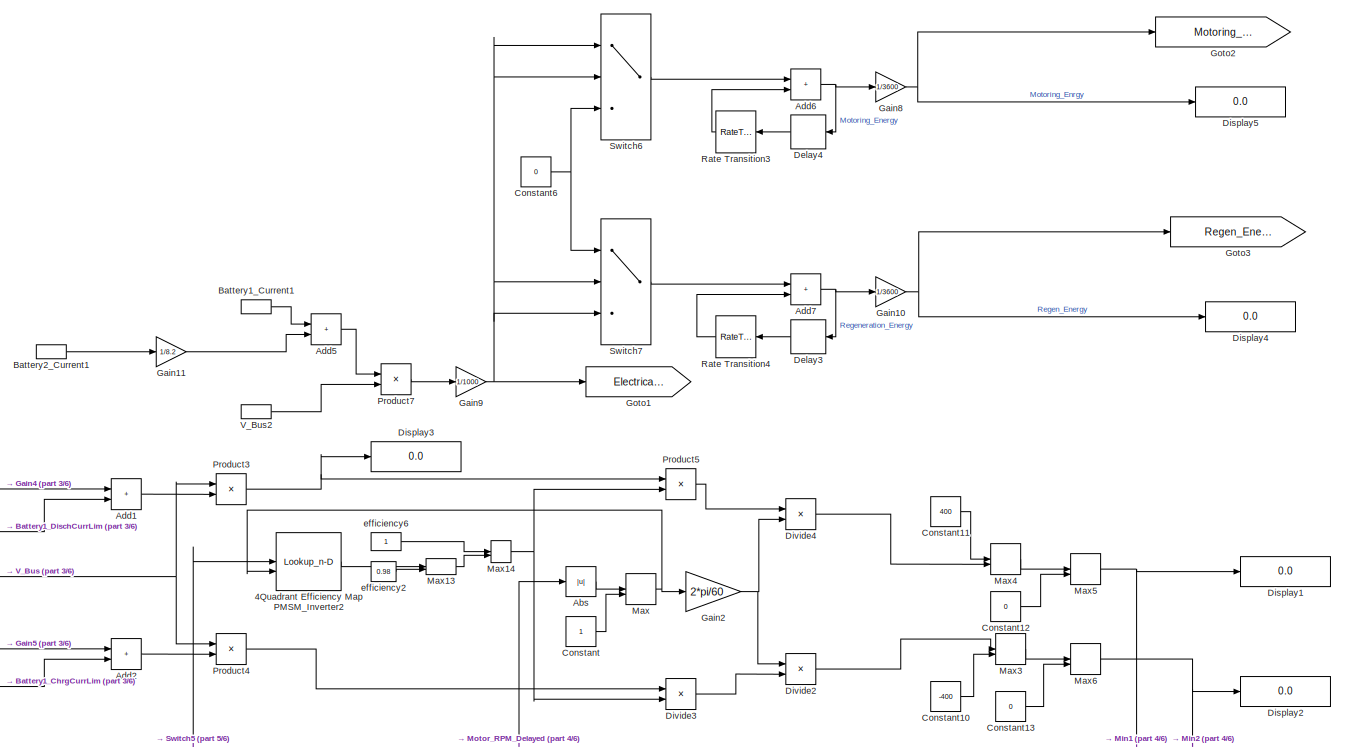
[diagram: Torque Limiter - part 1/6, top left region]
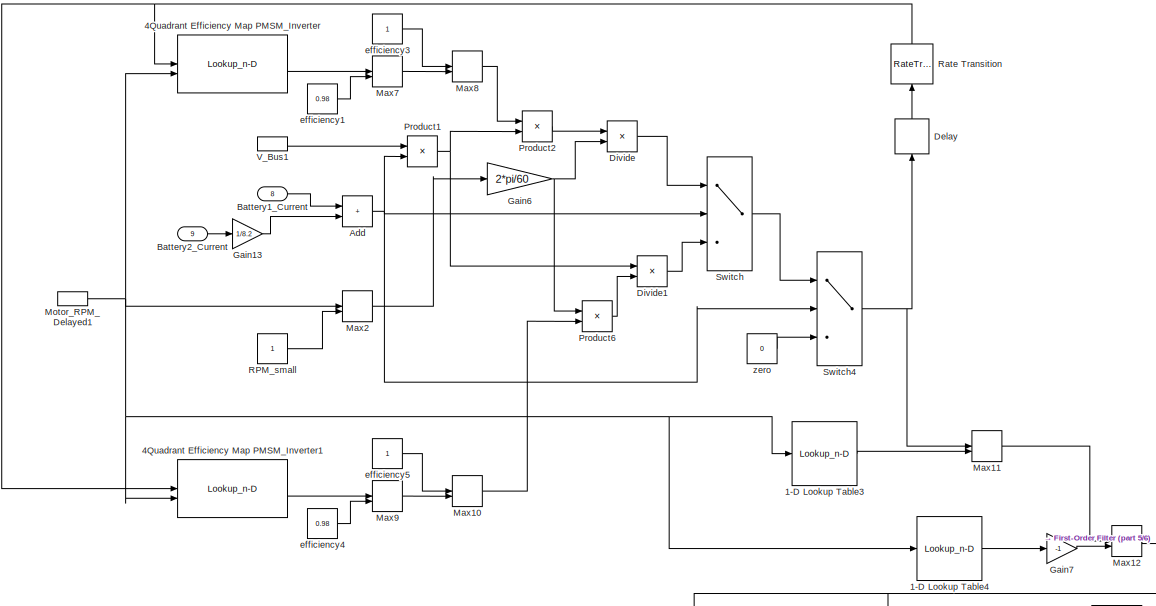
[diagram: Torque Limiter - part 2/6, top right region]
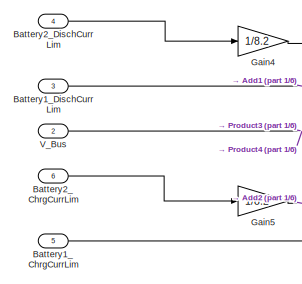
[diagram: Torque Limiter - part 3/6, top left region]
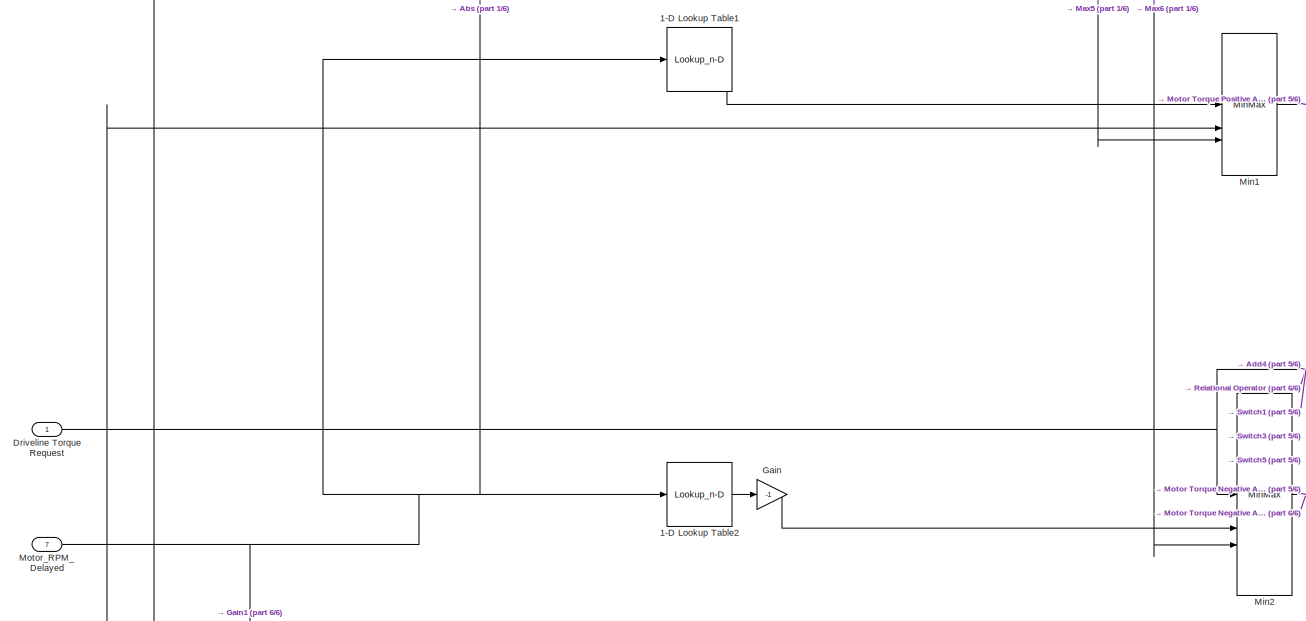
[diagram: Torque Limiter - part 4/6, middle left region]
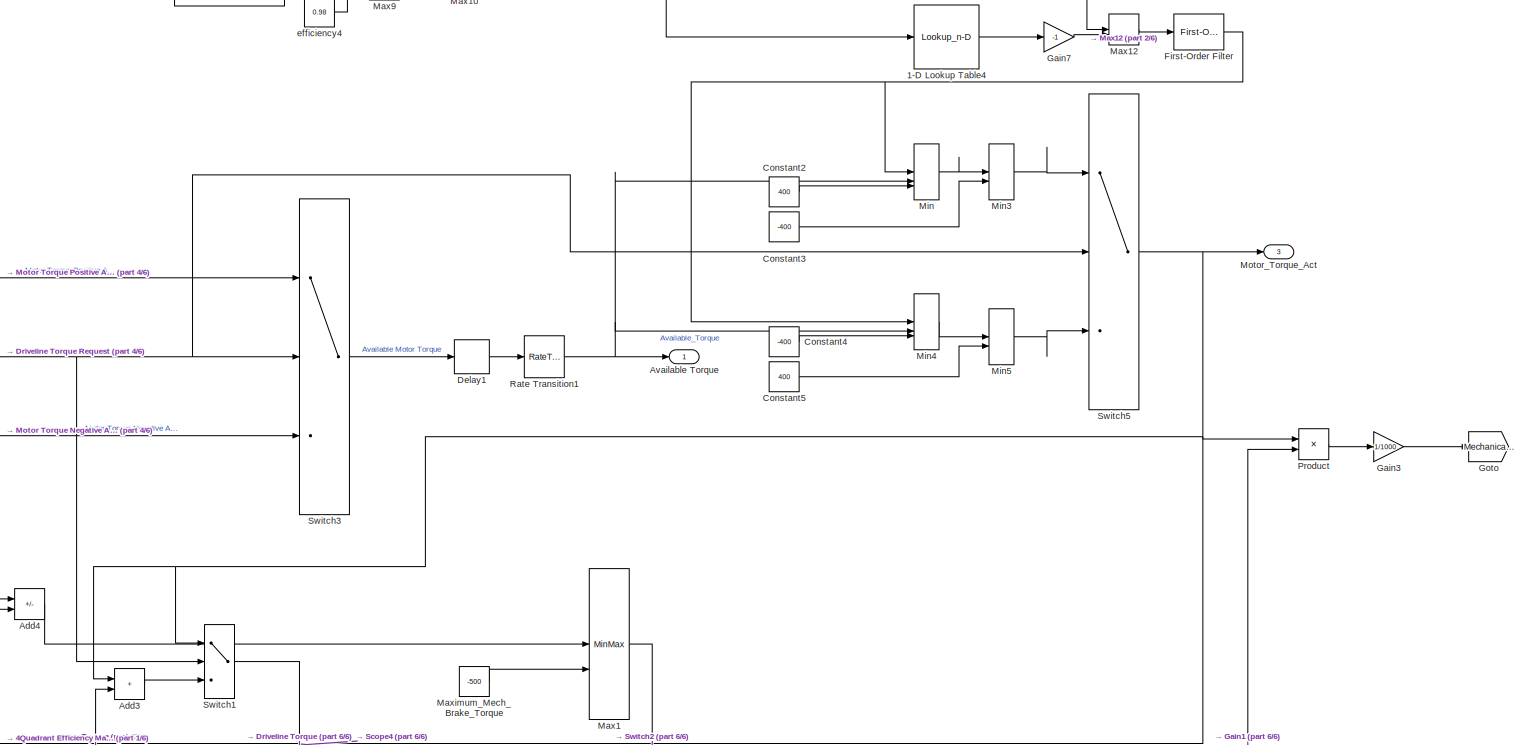
[diagram: Torque Limiter - part 5/6, middle right region]
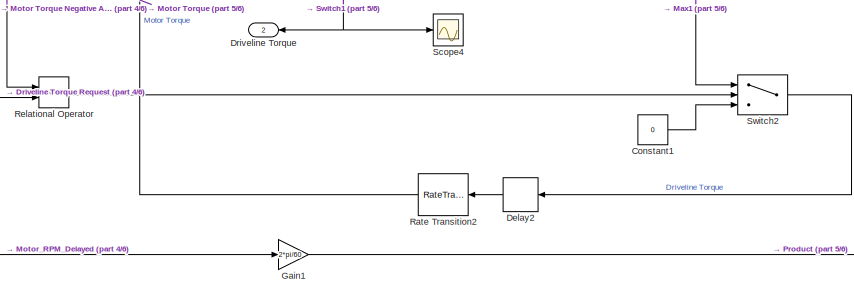
[diagram: Torque Limiter - part 6/6, bottom center region]
BLOCK [SubSystem] Torque Limiter
BLOCK [Lookup_n-D] Torque Limiter/1-D Lookup Table1
  BreakpointsForDimension1 = -19500:550:19500
  InputPortMap = u0
  InternalRulePriority = Speed
  NumberOfTableDimensions = 1
  RndMeth = Simplest
  Table = [5.617233286\n97.42737775\n101.4868518\n105.8188093\n110.4506091\n115.4133846\n120.7427184\n126.4794656\n132.6707681\n139.3713119\n146.6448989\n154.5664284\n163.2244193\n172.7242532\n183.1923898\n194.7819136\n207.6799304\n222.1175726\n238.3837585\n256.8444536\n277.9701878\n302.3762727\n330.8831267\n364.609506\n400\n400\n400\n400\n400\n400\n400\n400\n400\n400\n400\n400\n400\n400\n400\n400\n400\n400\n400\n400\n400\n400\n364.609506\n330.8831267\n3...<+266ch>  <repeated x4 — deduplicated; at blocks: 1-D Lookup Table1, 1-D Lookup Table2, 1-D Lookup Table3, 1-D Lookup Table4>
BLOCK [Lookup_n-D] Torque Limiter/1-D Lookup Table2
  BreakpointsForDimension1 = -19500:550:19500
  InputPortMap = u0
  InternalRulePriority = Speed
  NumberOfTableDimensions = 1
  RndMeth = Simplest
BLOCK [Lookup_n-D] Torque Limiter/1-D Lookup Table3
  BreakpointsForDimension1 = -19500:550:19500
  InputPortMap = u0
  InternalRulePriority = Speed
  NumberOfTableDimensions = 1
  RndMeth = Simplest
BLOCK [Lookup_n-D] Torque Limiter/1-D Lookup Table4
  BreakpointsForDimension1 = -19500:550:19500
  InputPortMap = u0
  InternalRulePriority = Speed
  NumberOfTableDimensions = 1
  RndMeth = Simplest
BLOCK [Lookup_n-D] Torque Limiter/4Quadrant Efficiency Map PMSM_Inverter
  BreakpointsForDimension1 = -200:20:200
  BreakpointsForDimension2 = -16000:500:16000
  InputPortMap = u0,u1
  InternalRulePriority = Speed
  InterpMethod = Akima spline
  RndMeth = Simplest
BLOCK [Lookup_n-D] Torque Limiter/4Quadrant Efficiency Map PMSM_Inverter1
  BreakpointsForDimension1 = -200:20:200
  BreakpointsForDimension2 = -16000:500:16000
  InputPortMap = u0,u1
  InternalRulePriority = Speed
  InterpMethod = Akima spline
  RndMeth = Simplest
BLOCK [Lookup_n-D] Torque Limiter/4Quadrant Efficiency Map PMSM_Inverter2
  BreakpointsForDimension1 = -200:20:200
  BreakpointsForDimension2 = -16000:500:16000
  InputPortMap = u0,u1
  InternalRulePriority = Speed
  InterpMethod = Akima spline
  RndMeth = Simplest
BLOCK [Abs] Torque Limiter/Abs
  SaturateOnIntegerOverflow = off
BLOCK [Sum] Torque Limiter/Add
  IconShape = rectangular
BLOCK [Sum] Torque Limiter/Add1
  IconShape = rectangular
BLOCK [Sum] Torque Limiter/Add2
  IconShape = rectangular
BLOCK [Sum] Torque Limiter/Add3
  IconShape = rectangular
BLOCK [Sum] Torque Limiter/Add4
  IconShape = rectangular
  Inputs = -+
BLOCK [Sum] Torque Limiter/Add5
  IconShape = rectangular
BLOCK [Sum] Torque Limiter/Add6
  IconShape = rectangular
BLOCK [Sum] Torque Limiter/Add7
  IconShape = rectangular
BLOCK [Outport] Torque Limiter/Available Torque
BLOCK [Inport] Torque Limiter/Battery1_ChrgCurrLim
  Port = 5
BLOCK [Inport] Torque Limiter/Battery1_Current
  Port = 8
BLOCK [InportShadow] Torque Limiter/Battery1_Current1
  Port = 8
BLOCK [Inport] Torque Limiter/Battery1_DischCurrLim
  Port = 3
BLOCK [Inport] Torque Limiter/Battery2_ChrgCurrLim
  Port = 6
BLOCK [Inport] Torque Limiter/Battery2_Current
  Port = 9
BLOCK [InportShadow] Torque Limiter/Battery2_Current1
  Port = 9
BLOCK [Inport] Torque Limiter/Battery2_DischCurrLim
  Port = 4
BLOCK [Constant] Torque Limiter/Constant
BLOCK [Constant] Torque Limiter/Constant1
  Value = 0
BLOCK [Constant] Torque Limiter/Constant10
  Value = -400
BLOCK [Constant] Torque Limiter/Constant11
  Value = 400
BLOCK [Constant] Torque Limiter/Constant12
  Value = 0
BLOCK [Constant] Torque Limiter/Constant13
  Value = 0
BLOCK [Constant] Torque Limiter/Constant2
  Value = 400
BLOCK [Constant] Torque Limiter/Constant3
  Value = -400
BLOCK [Constant] Torque Limiter/Constant4
  Value = -400
BLOCK [Constant] Torque Limiter/Constant5
  Value = 400
BLOCK [Constant] Torque Limiter/Constant6
  Value = 0
BLOCK [Delay] Torque Limiter/Delay
  DelayLength = 1
  InputPortMap = u0
  NameLocation = right
BLOCK [Delay] Torque Limiter/Delay1
  DelayLength = 1
  InputPortMap = u0
BLOCK [Delay] Torque Limiter/Delay2
  DelayLength = 1
  InputPortMap = u0
BLOCK [Delay] Torque Limiter/Delay3
  DelayLength = 10
  InputPortMap = u0
BLOCK [Delay] Torque Limiter/Delay4
  DelayLength = 10
  InputPortMap = u0
BLOCK [Display] Torque Limiter/Display1
  Decimation = 1
BLOCK [Display] Torque Limiter/Display2
  Decimation = 1
BLOCK [Display] Torque Limiter/Display3
  Decimation = 1
BLOCK [Display] Torque Limiter/Display4
  Decimation = 1
BLOCK [Display] Torque Limiter/Display5
  Decimation = 1
BLOCK [Product] Torque Limiter/Divide
  Inputs = */
BLOCK [Product] Torque Limiter/Divide1
  Inputs = */
BLOCK [Product] Torque Limiter/Divide2
  Inputs = /*
BLOCK [Product] Torque Limiter/Divide3
  Inputs = */
BLOCK [Product] Torque Limiter/Divide4
  Inputs = */
BLOCK [Outport] Torque Limiter/Driveline Torque
  Port = 2
BLOCK [Inport] Torque Limiter/Driveline Torque Request
BLOCK [Reference] Torque Limiter/First-Order Filter  REF=spsFirstOrderFilterLib/First-Order
Filter
  LibrarySourceBlock = sps_lib/Control/Filters/First-Order\nFilter
  SourceBlock = spsFirstOrderFilterLib/First-Order\nFilter
  SourceType = First-Order Filter
BLOCK [Gain] Torque Limiter/Gain
  Gain = -1
BLOCK [Gain] Torque Limiter/Gain1
  Gain = 2*pi/60
BLOCK [Gain] Torque Limiter/Gain10
  Gain = 1/3600
BLOCK [Gain] Torque Limiter/Gain11
  Gain = 1/8.2
BLOCK [Gain] Torque Limiter/Gain13
  Gain = 1/8.2
BLOCK [Gain] Torque Limiter/Gain2
  Gain = 2*pi/60
BLOCK [Gain] Torque Limiter/Gain3
  Gain = 1/1000
BLOCK [Gain] Torque Limiter/Gain4
  Gain = 1/8.2
BLOCK [Gain] Torque Limiter/Gain5
  Gain = 1/8.2
BLOCK [Gain] Torque Limiter/Gain6
  Gain = 2*pi/60
BLOCK [Gain] Torque Limiter/Gain7
  Gain = -1
BLOCK [Gain] Torque Limiter/Gain8
  Gain = 1/3600
BLOCK [Gain] Torque Limiter/Gain9
  Gain = 1/1000
BLOCK [Goto] Torque Limiter/Goto
  GotoTag = Mechanical_Power
  TagVisibility = global
BLOCK [Goto] Torque Limiter/Goto1
  GotoTag = Electrical_Power
  TagVisibility = global
BLOCK [Goto] Torque Limiter/Goto2
  GotoTag = Motoring_Energy
  TagVisibility = global
BLOCK [Goto] Torque Limiter/Goto3
  GotoTag = Regen_Energy
  TagVisibility = global
BLOCK [MinMax] Torque Limiter/Max
  Function = max
  Inputs = 2
BLOCK [MinMax] Torque Limiter/Max1
  Function = max
  Inputs = 2
BLOCK [MinMax] Torque Limiter/Max10
  Inputs = 2
BLOCK [MinMax] Torque Limiter/Max11
  Inputs = 2
BLOCK [MinMax] Torque Limiter/Max12
  Function = max
  Inputs = 2
BLOCK [MinMax] Torque Limiter/Max13
  Function = max
  Inputs = 2
BLOCK [MinMax] Torque Limiter/Max14
  Inputs = 2
BLOCK [MinMax] Torque Limiter/Max2
  Function = max
  Inputs = 2
BLOCK [MinMax] Torque Limiter/Max3
  Function = max
  Inputs = 2
BLOCK [MinMax] Torque Limiter/Max4
  Inputs = 2
BLOCK [MinMax] Torque Limiter/Max5
  Function = max
  Inputs = 2
BLOCK [MinMax] Torque Limiter/Max6
  Inputs = 2
BLOCK [MinMax] Torque Limiter/Max7
  Function = max
  Inputs = 2
BLOCK [MinMax] Torque Limiter/Max8
  Inputs = 2
BLOCK [MinMax] Torque Limiter/Max9
  Function = max
  Inputs = 2
BLOCK [Constant] Torque Limiter/Maximum_Mech_Brake_Torque
  Value = -500
BLOCK [MinMax] Torque Limiter/Min
  Inputs = 3
BLOCK [MinMax] Torque Limiter/Min1
  Inputs = 3
BLOCK [MinMax] Torque Limiter/Min2
  Function = max
  Inputs = 3
BLOCK [MinMax] Torque Limiter/Min3
  Function = max
  Inputs = 2
BLOCK [MinMax] Torque Limiter/Min4
  Function = max
  Inputs = 3
BLOCK [MinMax] Torque Limiter/Min5
  Inputs = 2
BLOCK [Inport] Torque Limiter/Motor_RPM_Delayed
  Port = 7
BLOCK [InportShadow] Torque Limiter/Motor_RPM_Delayed1
  Port = 7
BLOCK [Outport] Torque Limiter/Motor_Torque_Act
  Port = 3
BLOCK [Product] Torque Limiter/Product
BLOCK [Product] Torque Limiter/Product1
BLOCK [Product] Torque Limiter/Product2
BLOCK [Product] Torque Limiter/Product3
BLOCK [Product] Torque Limiter/Product4
BLOCK [Product] Torque Limiter/Product5
BLOCK [Product] Torque Limiter/Product6
BLOCK [Product] Torque Limiter/Product7
BLOCK [Constant] Torque Limiter/RPM_small
BLOCK [RateTransition] Torque Limiter/Rate Transition
  NameLocation = right
BLOCK [RateTransition] Torque Limiter/Rate Transition1
BLOCK [RateTransition] Torque Limiter/Rate Transition2
BLOCK [RateTransition] Torque Limiter/Rate Transition3
BLOCK [RateTransition] Torque Limiter/Rate Transition4
BLOCK [RelationalOperator] Torque Limiter/Relational Operator
  InputSameDT = off
  OutDataTypeStr = boolean
  RndMeth = Simplest
BLOCK [Scope] Torque Limiter/Scope4
  ActiveDisplayYMaximum = 1
  ActiveDisplayYMinimum = -1
  DataLoggingVariableName = ScopeData5
  Floating = off
  GraphicalSettings = {"Style":{"BackgroundColor":[0.12941176470588237,0.12941176470588237,0.12941176470588237],"AxesColor":[0.07058823529411765,0.07058823529411765,0.07058823529411765],"LabelsColor":[0.8509803921568627,0.8509803921568627,0.8509803921568627],"PreserveColors":false,"Visible":[true],"LineStyle":["-"],"LineWidth":[1.5],"BarWidth":[0.9],"LineColor":["auto"],"LineFaceAlpha":[1],"LineEdgeAlpha":[1],"Marker":...<+1946ch>
  MultipleDisplayCache = [{"MaxYLimMag":1,"MaxYLimReal":1,"MinYLimMag":0,"MinYLimReal":-1,"PlotAsMagnitudePhase":false,"ShowGrid":true,"ShowLegend":false,"Title":"%<SignalLabel>","YLabel":""}]
  NumInputPorts = 1
  ScopeFrameLocation = window
  WasSavedAsWebScope = on
  WindowPosition = [488.000000,222.000000,560.000000,420.000000,]
BLOCK [Switch] Torque Limiter/Switch
  Criteria = u2 > Threshold
  InputSameDT = off
  SaturateOnIntegerOverflow = off
BLOCK [Switch] Torque Limiter/Switch1
  Criteria = u2 > Threshold
  InputSameDT = off
  SaturateOnIntegerOverflow = off
BLOCK [Switch] Torque Limiter/Switch2
  Criteria = u2 > Threshold
  InputSameDT = off
  SaturateOnIntegerOverflow = off
BLOCK [Switch] Torque Limiter/Switch3
  Criteria = u2 > Threshold
  InputSameDT = off
  SaturateOnIntegerOverflow = off
BLOCK [Switch] Torque Limiter/Switch4
  Criteria = u2 ~= 0
  InputSameDT = off
  SaturateOnIntegerOverflow = off
BLOCK [Switch] Torque Limiter/Switch5
  Criteria = u2 > Threshold
  InputSameDT = off
  SaturateOnIntegerOverflow = off
BLOCK [Switch] Torque Limiter/Switch6
  InputSameDT = off
  SaturateOnIntegerOverflow = off
BLOCK [Switch] Torque Limiter/Switch7
  InputSameDT = off
  SaturateOnIntegerOverflow = off
BLOCK [Inport] Torque Limiter/V_Bus
  Port = 2
BLOCK [InportShadow] Torque Limiter/V_Bus1
  Port = 2
BLOCK [InportShadow] Torque Limiter/V_Bus2
  Port = 2
BLOCK [Constant] Torque Limiter/efficiency1
  Value = 0.98
BLOCK [Constant] Torque Limiter/efficiency2
  Value = 0.98
BLOCK [Constant] Torque Limiter/efficiency3
  NameLocation = left
BLOCK [Constant] Torque Limiter/efficiency4
  Value = 0.98
BLOCK [Constant] Torque Limiter/efficiency5
  NameLocation = left
BLOCK [Constant] Torque Limiter/efficiency6
  NameLocation = left
BLOCK [Constant] Torque Limiter/zero
  Value = 0
BLOCK [Gain] Upscaler1
  Gain = 30000/11500
BLOCK [SubSystem] VehicleDynamics//RoadLoadModel
BLOCK [Constant] VehicleDynamics//RoadLoadModel/2
  NameLocation = top
  SampleTime = -1
  Value = 0
BLOCK [Constant] VehicleDynamics//RoadLoadModel/2pi
  SampleTime = -1
  Value = 2*pi
BLOCK [Constant] VehicleDynamics//RoadLoadModel/3
  NameLocation = top
  SampleTime = -1
  Value = 0
BLOCK [Sum] VehicleDynamics//RoadLoadModel/Add
  IconShape = rectangular
BLOCK [Sum] VehicleDynamics//RoadLoadModel/Add4
  IconShape = rectangular
  NameLocation = top
BLOCK [Constant] VehicleDynamics//RoadLoadModel/Constant
BLOCK [Constant] VehicleDynamics//RoadLoadModel/Constant1
  Value = 2*pi
BLOCK [Constant] VehicleDynamics//RoadLoadModel/Constant2
  Value = 60/1000
BLOCK [Constant] VehicleDynamics//RoadLoadModel/Constant3
  Value = 3600
BLOCK [Delay] VehicleDynamics//RoadLoadModel/Delay
  DelayLength = 1
  InputPortMap = u0
BLOCK [Delay] VehicleDynamics//RoadLoadModel/Delay2
  DelayLength = 10
  InputPortMap = u0
BLOCK [Display] VehicleDynamics//RoadLoadModel/Display2
  Decimation = 1
BLOCK [Product] VehicleDynamics//RoadLoadModel/Divide
  Inputs = */
BLOCK [Product] VehicleDynamics//RoadLoadModel/Divide1
  Inputs = */
BLOCK [Product] VehicleDynamics//RoadLoadModel/Divide2
  Inputs = */
BLOCK [Product] VehicleDynamics//RoadLoadModel/Divide3
  Inputs = */
BLOCK [Product] VehicleDynamics//RoadLoadModel/Divide4
  Inputs = */
BLOCK [From] VehicleDynamics//RoadLoadModel/From
  GotoTag = rpm_final
  TagVisibility = global
BLOCK [Gain] VehicleDynamics//RoadLoadModel/Gain1
  Gain = -1
BLOCK [Inport] VehicleDynamics//RoadLoadModel/Gear_ratio
  Port = 4
BLOCK [Goto] VehicleDynamics//RoadLoadModel/Goto
  GotoTag = rpm_final
  TagVisibility = global
BLOCK [Goto] VehicleDynamics//RoadLoadModel/Goto1
  GotoTag = Vehicle_Speed_kmph
  TagVisibility = global
BLOCK [Goto] VehicleDynamics//RoadLoadModel/Goto2
  GotoTag = Vehicle_Acceleration
  TagVisibility = global
BLOCK [Goto] VehicleDynamics//RoadLoadModel/Goto3
  GotoTag = Distance_km
  TagVisibility = global
BLOCK [Integrator] VehicleDynamics//RoadLoadModel/Integrator
BLOCK [Product] VehicleDynamics//RoadLoadModel/Product1
BLOCK [Product] VehicleDynamics//RoadLoadModel/Product2
BLOCK [Product] VehicleDynamics//RoadLoadModel/Product3
  NameLocation = top
BLOCK [Product] VehicleDynamics//RoadLoadModel/Product4
BLOCK [Product] VehicleDynamics//RoadLoadModel/Product5
  Inputs = 4
BLOCK [Product] VehicleDynamics//RoadLoadModel/Product9
  Inputs = 3
  NameLocation = top
BLOCK [Outport] VehicleDynamics//RoadLoadModel/RPM
BLOCK [RateTransition] VehicleDynamics//RoadLoadModel/Rate Transition
BLOCK [RateTransition] VehicleDynamics//RoadLoadModel/Rate Transition1
BLOCK [Inport] VehicleDynamics//RoadLoadModel/Road_mu
  Port = 3
BLOCK [Saturate] VehicleDynamics//RoadLoadModel/Saturation
  LowerLimit = 0
  UpperLimit = 30000
BLOCK [Gain] VehicleDynamics//RoadLoadModel/Sec2Min
  Gain = 60
BLOCK [Sum] VehicleDynamics//RoadLoadModel/Sum
  IconShape = rectangular
BLOCK [Switch] VehicleDynamics//RoadLoadModel/Switch1
  Criteria = u2 > Threshold
  InputSameDT = off
  SaturateOnIntegerOverflow = off
  Threshold = 10
BLOCK [Switch] VehicleDynamics//RoadLoadModel/Switch2
  Criteria = u2 > Threshold
  InputSameDT = off
  SaturateOnIntegerOverflow = off
  Threshold = -10
BLOCK [Gain] VehicleDynamics//RoadLoadModel/TmEta
  Gain = 0.96
BLOCK [Inport] VehicleDynamics//RoadLoadModel/TqAct
BLOCK [Inport] VehicleDynamics//RoadLoadModel/Tyre_radius
  Port = 5
BLOCK [Inport] VehicleDynamics//RoadLoadModel/Veh_Mass
  Port = 2
BLOCK [Constant] VehicleDynamics//RoadLoadModel/g-value
  NameLocation = top
  SampleTime = -1
  Value = 9.8
BLOCK [Reference] WLTP  REF=simulink/Sources/Repeating
Sequence
  SourceBlock = simulink/Sources/Repeating\nSequence
  SourceType = Repeating table
BLOCK [Reference] WLTP1  REF=simulink/Sources/Repeating
Sequence
  SourceBlock = simulink/Sources/Repeating\nSequence
  SourceType = Repeating table
LINE Battery1/2-D Lookup Table1:1 -> Battery1/Gain4:1
LINE Battery1/2-D Lookup Table2:1 -> Battery1/Gain5:1
LINE Battery1/Battery1_Current:1 -> Battery1/Goto1:1
LINE Battery1/Chrg_PwrLim:1 -> Battery1/2-D Lookup Table2:3
LINE Battery1/Disch_PwrLim:1 -> Battery1/2-D Lookup Table1:3
LINE Battery1/Divide1:1 -> Battery1/Factor:1
LINE Battery1/Divide2:1 -> Battery1/Factor1:1
LINE Battery1/Factor1:1 -> Battery1/Battery1_ChargCurrLim:1
LINE Battery1/Factor:1 -> Battery1/Battery1_DischCurrLim:1
LINE Battery1/From1:1 -> Battery1/SOCEstimator:1
LINE Battery1/From2:1 -> Battery1/Gain3:1
LINE Battery1/From3:1 -> Battery1/Product1:1
NET Battery1/From:1 -> Battery1/Module3:1, Battery1/SOCEstimator:3
LINE Battery1/Gain3:1 -> Battery1/Product2:1
LINE Battery1/Gain4:1 -> Battery1/Divide1:1
LINE Battery1/Gain5:1 -> Battery1/Divide2:1
LINE Battery1/Lookup Table Dynamic2:1 -> Battery1/Product2:2
LINE Battery1/Module3/From:1 -> Battery1/Module3/SubModule_1:1
LINE Battery1/Module3/Module_Current:1 -> Battery1/Module3/Goto:1
LINE Battery1/Module3/SubModule_1/Cell1/2RC/C1:1 -> Battery1/Module3/SubModule_1/Cell1/2RC/RC1:3
LINE Battery1/Module3/SubModule_1/Cell1/2RC/C2:1 -> Battery1/Module3/SubModule_1/Cell1/2RC/RC2:3
NET Battery1/Module3/SubModule_1/Cell1/2RC/Current:1 -> Battery1/Module3/SubModule_1/Cell1/2RC/RC1:1, Battery1/Module3/SubModule_1/Cell1/2RC/RC2:1, Battery1/Module3/SubModule_1/Cell1/2RC/Rint:1
LINE Battery1/Module3/SubModule_1/Cell1/2RC/R1:1 -> Battery1/Module3/SubModule_1/Cell1/2RC/RC1:2
LINE Battery1/Module3/SubModule_1/Cell1/2RC/R2:1 -> Battery1/Module3/SubModule_1/Cell1/2RC/RC2:2
LINE Battery1/Module3/SubModule_1/Cell1/2RC/RC1/2:1 -> Battery1/Module3/SubModule_1/Cell1/2RC/RC1/Divide2:2
LINE Battery1/Module3/SubModule_1/Cell1/2RC/RC1/Add:1 -> Battery1/Module3/SubModule_1/Cell1/2RC/RC1/Divide:2
NET Battery1/Module3/SubModule_1/Cell1/2RC/RC1/C:1 -> Battery1/Module3/SubModule_1/Cell1/2RC/RC1/Divide1:2, Battery1/Module3/SubModule_1/Cell1/2RC/RC1/Divide2:1
LINE Battery1/Module3/SubModule_1/Cell1/2RC/RC1/Current:1 -> Battery1/Module3/SubModule_1/Cell1/2RC/RC1/Divide3:1
LINE Battery1/Module3/SubModule_1/Cell1/2RC/RC1/Divide1:1 -> Battery1/Module3/SubModule_1/Cell1/2RC/RC1/Integrator1:1
LINE Battery1/Module3/SubModule_1/Cell1/2RC/RC1/Divide2:1 -> Battery1/Module3/SubModule_1/Cell1/2RC/RC1/Integrator2:1
LINE Battery1/Module3/SubModule_1/Cell1/2RC/RC1/Divide3:1 -> Battery1/Module3/SubModule_1/Cell1/2RC/RC1/V:1
LINE Battery1/Module3/SubModule_1/Cell1/2RC/RC1/Divide:1 -> Battery1/Module3/SubModule_1/Cell1/2RC/RC1/Divide3:2
LINE Battery1/Module3/SubModule_1/Cell1/2RC/RC1/Integrator1:1 -> Battery1/Module3/SubModule_1/Cell1/2RC/RC1/Divide:1
LINE Battery1/Module3/SubModule_1/Cell1/2RC/RC1/Integrator2:1 -> Battery1/Module3/SubModule_1/Cell1/2RC/RC1/Add:2
NET Battery1/Module3/SubModule_1/Cell1/2RC/RC1/R:1 -> Battery1/Module3/SubModule_1/Cell1/2RC/RC1/Add:1, Battery1/Module3/SubModule_1/Cell1/2RC/RC1/Divide1:1
LINE Battery1/Module3/SubModule_1/Cell1/2RC/RC1:1 -> Battery1/Module3/SubModule_1/Cell1/2RC/V1:1
LINE Battery1/Module3/SubModule_1/Cell1/2RC/RC2/2:1 -> Battery1/Module3/SubModule_1/Cell1/2RC/RC2/Divide2:2
LINE Battery1/Module3/SubModule_1/Cell1/2RC/RC2/Add:1 -> Battery1/Module3/SubModule_1/Cell1/2RC/RC2/Divide:2
NET Battery1/Module3/SubModule_1/Cell1/2RC/RC2/C:1 -> Battery1/Module3/SubModule_1/Cell1/2RC/RC2/Divide1:2, Battery1/Module3/SubModule_1/Cell1/2RC/RC2/Divide2:1
LINE Battery1/Module3/SubModule_1/Cell1/2RC/RC2/Current:1 -> Battery1/Module3/SubModule_1/Cell1/2RC/RC2/Divide3:1
LINE Battery1/Module3/SubModule_1/Cell1/2RC/RC2/Divide1:1 -> Battery1/Module3/SubModule_1/Cell1/2RC/RC2/Integrator1:1
LINE Battery1/Module3/SubModule_1/Cell1/2RC/RC2/Divide2:1 -> Battery1/Module3/SubModule_1/Cell1/2RC/RC2/Integrator2:1
LINE Battery1/Module3/SubModule_1/Cell1/2RC/RC2/Divide3:1 -> Battery1/Module3/SubModule_1/Cell1/2RC/RC2/V:1
LINE Battery1/Module3/SubModule_1/Cell1/2RC/RC2/Divide:1 -> Battery1/Module3/SubModule_1/Cell1/2RC/RC2/Divide3:2
LINE Battery1/Module3/SubModule_1/Cell1/2RC/RC2/Integrator1:1 -> Battery1/Module3/SubModule_1/Cell1/2RC/RC2/Divide:1
LINE Battery1/Module3/SubModule_1/Cell1/2RC/RC2/Integrator2:1 -> Battery1/Module3/SubModule_1/Cell1/2RC/RC2/Add:2
NET Battery1/Module3/SubModule_1/Cell1/2RC/RC2/R:1 -> Battery1/Module3/SubModule_1/Cell1/2RC/RC2/Add:1, Battery1/Module3/SubModule_1/Cell1/2RC/RC2/Divide1:1
LINE Battery1/Module3/SubModule_1/Cell1/2RC/RC2:1 -> Battery1/Module3/SubModule_1/Cell1/2RC/V2:1
LINE Battery1/Module3/SubModule_1/Cell1/2RC/Ri:1 -> Battery1/Module3/SubModule_1/Cell1/2RC/Rint:2
LINE Battery1/Module3/SubModule_1/Cell1/2RC/Rint/Current:1 -> Battery1/Module3/SubModule_1/Cell1/2RC/Rint/Divide3:1
LINE Battery1/Module3/SubModule_1/Cell1/2RC/Rint/Divide3:1 -> Battery1/Module3/SubModule_1/Cell1/2RC/Rint/V:1
LINE Battery1/Module3/SubModule_1/Cell1/2RC/Rint/R:1 -> Battery1/Module3/SubModule_1/Cell1/2RC/Rint/Divide3:2
LINE Battery1/Module3/SubModule_1/Cell1/2RC/Rint:1 -> Battery1/Module3/SubModule_1/Cell1/2RC/Vi:1
LINE Battery1/Module3/SubModule_1/Cell1/2RC:1 -> Battery1/Module3/SubModule_1/Cell1/Add:1
LINE Battery1/Module3/SubModule_1/Cell1/2RC:2 -> Battery1/Module3/SubModule_1/Cell1/Add:2
LINE Battery1/Module3/SubModule_1/Cell1/2RC:3 -> Battery1/Module3/SubModule_1/Cell1/Add:3
NET Battery1/Module3/SubModule_1/Cell1/Add:1 -> Battery1/Module3/SubModule_1/Cell1/Cell_Voltage:1, Battery1/Module3/SubModule_1/Cell1/Scope2:1
NET Battery1/Module3/SubModule_1/Cell1/Cell_Current:1 -> Battery1/Module3/SubModule_1/Cell1/2RC:1, Battery1/Module3/SubModule_1/Cell1/SOCEstimator:2, Battery1/Module3/SubModule_1/Cell1/Subsystem:1
LINE Battery1/Module3/SubModule_1/Cell1/From1:1 -> Battery1/Module3/SubModule_1/Cell1/SOCEstimator:1
LINE Battery1/Module3/SubModule_1/Cell1/From:1 -> Battery1/Module3/SubModule_1/Cell1/Product:1
LINE Battery1/Module3/SubModule_1/Cell1/Lookup Table Dynamic2:1 -> Battery1/Module3/SubModule_1/Cell1/Product:2
LINE Battery1/Module3/SubModule_1/Cell1/Product:1 -> Battery1/Module3/SubModule_1/Cell1/SOCEstimator:3
LINE Battery1/Module3/SubModule_1/Cell1/Redution_factor:1 -> Battery1/Module3/SubModule_1/Cell1/Lookup Table Dynamic2:3
LINE Battery1/Module3/SubModule_1/Cell1/SOCEstimator/Cell_Capacity:1 -> Battery1/Module3/SubModule_1/Cell1/SOCEstimator/SOCEstimator:3
LINE Battery1/Module3/SubModule_1/Cell1/SOCEstimator/Current:1 -> Battery1/Module3/SubModule_1/Cell1/SOCEstimator/SOCEstimator:2
LINE Battery1/Module3/SubModule_1/Cell1/SOCEstimator/SOCEstimator/Add1:1 -> Battery1/Module3/SubModule_1/Cell1/SOCEstimator/SOCEstimator/Saturation1:1
LINE Battery1/Module3/SubModule_1/Cell1/SOCEstimator/SOCEstimator/CellCapacity:1 -> Battery1/Module3/SubModule_1/Cell1/SOCEstimator/SOCEstimator/Divide:2
LINE Battery1/Module3/SubModule_1/Cell1/SOCEstimator/SOCEstimator/Constant1:1 -> Battery1/Module3/SubModule_1/Cell1/SOCEstimator/SOCEstimator/Divide:3
LINE Battery1/Module3/SubModule_1/Cell1/SOCEstimator/SOCEstimator/Constant:1 -> Battery1/Module3/SubModule_1/Cell1/SOCEstimator/SOCEstimator/Divide1:2
LINE Battery1/Module3/SubModule_1/Cell1/SOCEstimator/SOCEstimator/Current:1 -> Battery1/Module3/SubModule_1/Cell1/SOCEstimator/SOCEstimator/Integrator:1
LINE Battery1/Module3/SubModule_1/Cell1/SOCEstimator/SOCEstimator/Delay:1 -> Battery1/Module3/SubModule_1/Cell1/SOCEstimator/SOCEstimator/SOC:1
NET Battery1/Module3/SubModule_1/Cell1/SOCEstimator/SOCEstimator/Divide1:1 -> Battery1/Module3/SubModule_1/Cell1/SOCEstimator/SOCEstimator/Add1:1, Battery1/Module3/SubModule_1/Cell1/SOCEstimator/SOCEstimator/Delay:2
LINE Battery1/Module3/SubModule_1/Cell1/SOCEstimator/SOCEstimator/Divide:1 -> Battery1/Module3/SubModule_1/Cell1/SOCEstimator/SOCEstimator/Add1:2
LINE Battery1/Module3/SubModule_1/Cell1/SOCEstimator/SOCEstimator/Integrator:1 -> Battery1/Module3/SubModule_1/Cell1/SOCEstimator/SOCEstimator/Divide:1
LINE Battery1/Module3/SubModule_1/Cell1/SOCEstimator/SOCEstimator/SOC_Initial:1 -> Battery1/Module3/SubModule_1/Cell1/SOCEstimator/SOCEstimator/Divide1:1
LINE Battery1/Module3/SubModule_1/Cell1/SOCEstimator/SOCEstimator/Saturation1:1 -> Battery1/Module3/SubModule_1/Cell1/SOCEstimator/SOCEstimator/Delay:1
LINE Battery1/Module3/SubModule_1/Cell1/SOCEstimator/SOCEstimator:1 -> Battery1/Module3/SubModule_1/Cell1/SOCEstimator/SOC:1
LINE Battery1/Module3/SubModule_1/Cell1/SOCEstimator/SOC_Initial:1 -> Battery1/Module3/SubModule_1/Cell1/SOCEstimator/SOCEstimator:1
NET Battery1/Module3/SubModule_1/Cell1/SOCEstimator:1 -> Battery1/Module3/SubModule_1/Cell1/SOC_Mapping:1, Battery1/Module3/SubModule_1/Cell1/Scope:1
LINE Battery1/Module3/SubModule_1/Cell1/SOC_Mapping/2-D Lookup Table1:1 -> Battery1/Module3/SubModule_1/Cell1/SOC_Mapping/Ri:1
LINE Battery1/Module3/SubModule_1/Cell1/SOC_Mapping/2-D Lookup Table:1 -> Battery1/Module3/SubModule_1/Cell1/SOC_Mapping/OCV:1
NET Battery1/Module3/SubModule_1/Cell1/SOC_Mapping/Cell_Temp:1 -> Battery1/Module3/SubModule_1/Cell1/SOC_Mapping/2-D Lookup Table1:2, Battery1/Module3/SubModule_1/Cell1/SOC_Mapping/2-D Lookup Table:2
LINE Battery1/Module3/SubModule_1/Cell1/SOC_Mapping/From10:1 -> Battery1/Module3/SubModule_1/Cell1/SOC_Mapping/Lookup Table Dynamic4:3
LINE Battery1/Module3/SubModule_1/Cell1/SOC_Mapping/From12:1 -> Battery1/Module3/SubModule_1/Cell1/SOC_Mapping/Lookup Table Dynamic5:3
LINE Battery1/Module3/SubModule_1/Cell1/SOC_Mapping/From13:1 -> Battery1/Module3/SubModule_1/Cell1/SOC_Mapping/Lookup Table Dynamic6:3
LINE Battery1/Module3/SubModule_1/Cell1/SOC_Mapping/From3:1 -> Battery1/Module3/SubModule_1/Cell1/SOC_Mapping/2-D Lookup Table:3
LINE Battery1/Module3/SubModule_1/Cell1/SOC_Mapping/From4:1 -> Battery1/Module3/SubModule_1/Cell1/SOC_Mapping/2-D Lookup Table1:3
LINE Battery1/Module3/SubModule_1/Cell1/SOC_Mapping/From9:1 -> Battery1/Module3/SubModule_1/Cell1/SOC_Mapping/Lookup Table Dynamic3:3
NET Battery1/Module3/SubModule_1/Cell1/SOC_Mapping/From:1 -> Battery1/Module3/SubModule_1/Cell1/SOC_Mapping/2-D Lookup Table1:4, Battery1/Module3/SubModule_1/Cell1/SOC_Mapping/2-D Lookup Table:4, Battery1/Module3/SubModule_1/Cell1/SOC_Mapping/Lookup Table Dynamic3:2, Battery1/Module3/SubModule_1/Cell1/SOC_Mapping/Lookup Table Dynamic4:2, Battery1/Module3/SubModule_1/Cell1/SOC_Mapping/Lookup Table Dynamic5:2, Battery1/Module3/SubModule_1/Cell1/SOC_Mapping/Lookup Table Dynamic6:2
LINE Battery1/Module3/SubModule_1/Cell1/SOC_Mapping/Lookup Table Dynamic3:1 -> Battery1/Module3/SubModule_1/Cell1/SOC_Mapping/R1:1
LINE Battery1/Module3/SubModule_1/Cell1/SOC_Mapping/Lookup Table Dynamic4:1 -> Battery1/Module3/SubModule_1/Cell1/SOC_Mapping/C1:1
LINE Battery1/Module3/SubModule_1/Cell1/SOC_Mapping/Lookup Table Dynamic5:1 -> Battery1/Module3/SubModule_1/Cell1/SOC_Mapping/R2:1
LINE Battery1/Module3/SubModule_1/Cell1/SOC_Mapping/Lookup Table Dynamic6:1 -> Battery1/Module3/SubModule_1/Cell1/SOC_Mapping/C2:1
NET Battery1/Module3/SubModule_1/Cell1/SOC_Mapping/SOC:1 -> Battery1/Module3/SubModule_1/Cell1/SOC_Mapping/2-D Lookup Table1:1, Battery1/Module3/SubModule_1/Cell1/SOC_Mapping/2-D Lookup Table:1, Battery1/Module3/SubModule_1/Cell1/SOC_Mapping/Lookup Table Dynamic3:1, Battery1/Module3/SubModule_1/Cell1/SOC_Mapping/Lookup Table Dynamic4:1, Battery1/Module3/SubModule_1/Cell1/SOC_Mapping/Lookup Table Dynamic5:1, Battery1/Module3/SubModule_1/Cell1/SOC_Mapping/Lookup Table Dynamic6:1
NET Battery1/Module3/SubModule_1/Cell1/SOC_Mapping:1 -> Battery1/Module3/SubModule_1/Cell1/2RC:2, Battery1/Module3/SubModule_1/Cell1/Subsystem:2
LINE Battery1/Module3/SubModule_1/Cell1/SOC_Mapping:2 -> Battery1/Module3/SubModule_1/Cell1/2RC:3
LINE Battery1/Module3/SubModule_1/Cell1/SOC_Mapping:3 -> Battery1/Module3/SubModule_1/Cell1/2RC:4
LINE Battery1/Module3/SubModule_1/Cell1/SOC_Mapping:4 -> Battery1/Module3/SubModule_1/Cell1/2RC:5
LINE Battery1/Module3/SubModule_1/Cell1/SOC_Mapping:5 -> Battery1/Module3/SubModule_1/Cell1/2RC:6
LINE Battery1/Module3/SubModule_1/Cell1/SOC_Mapping:6 -> Battery1/Module3/SubModule_1/Cell1/Add:4
LINE Battery1/Module3/SubModule_1/Cell1/Subsystem/Add1:1 -> Battery1/Module3/SubModule_1/Cell1/Subsystem/Divide:1
LINE Battery1/Module3/SubModule_1/Cell1/Subsystem/Add:1 -> Battery1/Module3/SubModule_1/Cell1/Subsystem/Product3:1
NET Battery1/Module3/SubModule_1/Cell1/Subsystem/Cell_Current:1 -> Battery1/Module3/SubModule_1/Cell1/Subsystem/Product:1, Battery1/Module3/SubModule_1/Cell1/Subsystem/Product:2
LINE Battery1/Module3/SubModule_1/Cell1/Subsystem/Delay:1 -> Battery1/Module3/SubModule_1/Cell1/Subsystem/Add:1
LINE Battery1/Module3/SubModule_1/Cell1/Subsystem/Divide:1 -> Battery1/Module3/SubModule_1/Cell1/Subsystem/Integrator:1
LINE Battery1/Module3/SubModule_1/Cell1/Subsystem/From1:1 -> Battery1/Module3/SubModule_1/Cell1/Subsystem/Product2:1
NET Battery1/Module3/SubModule_1/Cell1/Subsystem/From2:1 -> Battery1/Module3/SubModule_1/Cell1/Subsystem/Delay:2, Battery1/Module3/SubModule_1/Cell1/Subsystem/Integrator:2
LINE Battery1/Module3/SubModule_1/Cell1/Subsystem/From3:1 -> Battery1/Module3/SubModule_1/Cell1/Subsystem/Product2:2
LINE Battery1/Module3/SubModule_1/Cell1/Subsystem/From4:1 -> Battery1/Module3/SubModule_1/Cell1/Subsystem/Divide:2
LINE Battery1/Module3/SubModule_1/Cell1/Subsystem/From:1 -> Battery1/Module3/SubModule_1/Cell1/Subsystem/Add:2
NET Battery1/Module3/SubModule_1/Cell1/Subsystem/Integrator:1 -> Battery1/Module3/SubModule_1/Cell1/Subsystem/Delay:1, Battery1/Module3/SubModule_1/Cell1/Subsystem/Temp_Cell:1
LINE Battery1/Module3/SubModule_1/Cell1/Subsystem/Product1:1 -> Battery1/Module3/SubModule_1/Cell1/Subsystem/Add1:2
LINE Battery1/Module3/SubModule_1/Cell1/Subsystem/Product2:1 -> Battery1/Module3/SubModule_1/Cell1/Subsystem/Product3:2
LINE Battery1/Module3/SubModule_1/Cell1/Subsystem/Product3:1 -> Battery1/Module3/SubModule_1/Cell1/Subsystem/Add1:1
LINE Battery1/Module3/SubModule_1/Cell1/Subsystem/Product:1 -> Battery1/Module3/SubModule_1/Cell1/Subsystem/Product1:1
LINE Battery1/Module3/SubModule_1/Cell1/Subsystem/Ri:1 -> Battery1/Module3/SubModule_1/Cell1/Subsystem/Product1:2
NET Battery1/Module3/SubModule_1/Cell1/Subsystem:1 -> Battery1/Module3/SubModule_1/Cell1/Cell_temp:1, Battery1/Module3/SubModule_1/Cell1/Lookup Table Dynamic2:1, Battery1/Module3/SubModule_1/Cell1/SOC_Mapping:2, Battery1/Module3/SubModule_1/Cell1/Scope1:1
LINE Battery1/Module3/SubModule_1/Cell1/Temp:1 -> Battery1/Module3/SubModule_1/Cell1/Lookup Table Dynamic2:2
LINE Battery1/Module3/SubModule_1/Cell1:1 -> Battery1/Module3/SubModule_1/SubModule_Voltage:1
LINE Battery1/Module3/SubModule_1/Cell1:2 -> Battery1/Module3/SubModule_1/SubModule_avg_temp:1
LINE Battery1/Module3/SubModule_1/From:1 -> Battery1/Module3/SubModule_1/Cell1:1
LINE Battery1/Module3/SubModule_1/Module_Current:1 -> Battery1/Module3/SubModule_1/Goto:1
LINE Battery1/Module3/SubModule_1:1 -> Battery1/Module3/Module_Voltage:1
LINE Battery1/Module3/SubModule_1:2 -> Battery1/Module3/Module_avg_Temp:1
NET Battery1/Module3:1 -> Battery1/Battery1_Voltage:1, Battery1/Divide1:2, Battery1/Divide2:2, Battery1/Product1:2
NET Battery1/Module3:2 -> Battery1/2-D Lookup Table1:2, Battery1/2-D Lookup Table2:2, Battery1/Battery1_Temperature:1, Battery1/Lookup Table Dynamic2:1
LINE Battery1/NMC_Cell_Config/A:1 -> Battery1/NMC_Cell_Config/Goto11:1
LINE Battery1/NMC_Cell_Config/C1_User1:1 -> Battery1/NMC_Cell_Config/Gain2:1
LINE Battery1/NMC_Cell_Config/C2_User:1 -> Battery1/NMC_Cell_Config/Gain4:1
LINE Battery1/NMC_Cell_Config/Cell_Capacity_Ah_rated:1 -> Battery1/NMC_Cell_Config/Goto6:1
LINE Battery1/NMC_Cell_Config/Gain1:1 -> Battery1/NMC_Cell_Config/Gain8:1
LINE Battery1/NMC_Cell_Config/Gain2:1 -> Battery1/NMC_Cell_Config/Goto3:1
LINE Battery1/NMC_Cell_Config/Gain3:1 -> Battery1/NMC_Cell_Config/Gain9:1
LINE Battery1/NMC_Cell_Config/Gain4:1 -> Battery1/NMC_Cell_Config/Goto5:1
LINE Battery1/NMC_Cell_Config/Gain5:1 -> Battery1/NMC_Cell_Config/Goto:1
LINE Battery1/NMC_Cell_Config/Gain6:1 -> Battery1/NMC_Cell_Config/Gain7:1
LINE Battery1/NMC_Cell_Config/Gain7:1 -> Battery1/NMC_Cell_Config/Goto13:1
LINE Battery1/NMC_Cell_Config/Gain8:1 -> Battery1/NMC_Cell_Config/Goto2:1
LINE Battery1/NMC_Cell_Config/Gain9:1 -> Battery1/NMC_Cell_Config/Goto4:1
LINE Battery1/NMC_Cell_Config/Gain:1 -> Battery1/NMC_Cell_Config/Goto20:1
LINE Battery1/NMC_Cell_Config/M*Cp:1 -> Battery1/NMC_Cell_Config/Goto12:1
LINE Battery1/NMC_Cell_Config/OCV_NMC:1 -> Battery1/NMC_Cell_Config/Gain:1
LINE Battery1/NMC_Cell_Config/R1_User:1 -> Battery1/NMC_Cell_Config/Gain1:1
LINE Battery1/NMC_Cell_Config/R2_User1:1 -> Battery1/NMC_Cell_Config/Gain3:1
LINE Battery1/NMC_Cell_Config/Ri_NMC:1 -> Battery1/NMC_Cell_Config/Gain6:1
LINE Battery1/NMC_Cell_Config/SOC_Initial_%:1 -> Battery1/NMC_Cell_Config/Goto7:1
LINE Battery1/NMC_Cell_Config/SOC_User:1 -> Battery1/NMC_Cell_Config/Gain5:1
NET Battery1/NMC_Cell_Config/Temp_Initial_degC:1 -> Battery1/NMC_Cell_Config/Goto8:1, Battery1/NMC_Cell_Config/Goto9:1
LINE Battery1/NMC_Cell_Config/h:1 -> Battery1/NMC_Cell_Config/Goto10:1
LINE Battery1/Product1:1 -> Battery1/Goto:1
LINE Battery1/Product2:1 -> Battery1/SOCEstimator:2
LINE Battery1/Redution_factor:1 -> Battery1/Lookup Table Dynamic2:3
LINE Battery1/SOCEstimator/Current:1 -> Battery1/SOCEstimator/SOCEstimator:2
LINE Battery1/SOCEstimator/Pack_Capacity:1 -> Battery1/SOCEstimator/SOCEstimator:3
LINE Battery1/SOCEstimator/SOCEstimator/Add1:1 -> Battery1/SOCEstimator/SOCEstimator/Saturation1:1
LINE Battery1/SOCEstimator/SOCEstimator/CellCapacity:1 -> Battery1/SOCEstimator/SOCEstimator/Divide:2
LINE Battery1/SOCEstimator/SOCEstimator/Constant1:1 -> Battery1/SOCEstimator/SOCEstimator/Divide:3
LINE Battery1/SOCEstimator/SOCEstimator/Constant:1 -> Battery1/SOCEstimator/SOCEstimator/Divide1:2
LINE Battery1/SOCEstimator/SOCEstimator/Current:1 -> Battery1/SOCEstimator/SOCEstimator/Integrator:1
LINE Battery1/SOCEstimator/SOCEstimator/Delay:1 -> Battery1/SOCEstimator/SOCEstimator/Rate Transition:1
NET Battery1/SOCEstimator/SOCEstimator/Divide1:1 -> Battery1/SOCEstimator/SOCEstimator/Add1:1, Battery1/SOCEstimator/SOCEstimator/Delay:2
LINE Battery1/SOCEstimator/SOCEstimator/Divide:1 -> Battery1/SOCEstimator/SOCEstimator/Add1:2
LINE Battery1/SOCEstimator/SOCEstimator/Integrator:1 -> Battery1/SOCEstimator/SOCEstimator/Divide:1
LINE Battery1/SOCEstimator/SOCEstimator/Rate Transition:1 -> Battery1/SOCEstimator/SOCEstimator/SOC:1
LINE Battery1/SOCEstimator/SOCEstimator/SOC_Initial:1 -> Battery1/SOCEstimator/SOCEstimator/Divide1:1
LINE Battery1/SOCEstimator/SOCEstimator/Saturation1:1 -> Battery1/SOCEstimator/SOCEstimator/Delay:1
LINE Battery1/SOCEstimator/SOCEstimator:1 -> Battery1/SOCEstimator/SOC:1
LINE Battery1/SOCEstimator/SOC_Initial:1 -> Battery1/SOCEstimator/SOCEstimator:1
NET Battery1/SOCEstimator:1 -> Battery1/2-D Lookup Table1:1, Battery1/2-D Lookup Table2:1, Battery1/Battery1_SOC:1
LINE Battery1/Temp:1 -> Battery1/Lookup Table Dynamic2:2
LINE Battery1:1 -> Goto:1
LINE Battery1:2 -> Goto5:1
LINE Battery1:3 -> Goto16:1
LINE Battery1:4 -> Goto1:1
LINE Battery1:5 -> Goto19:1
LINE Battery2/2-D Lookup Table1:1 -> Battery2/Gain4:1
LINE Battery2/2-D Lookup Table2:1 -> Battery2/Gain5:1
LINE Battery2/Battery2_Current:1 -> Battery2/Goto1:1
LINE Battery2/Chrg_PwrLim:1 -> Battery2/2-D Lookup Table2:3
LINE Battery2/Disch_PwrLim:1 -> Battery2/2-D Lookup Table1:3
LINE Battery2/Divide1:1 -> Battery2/Battery2_DischCurrLim:1
LINE Battery2/Divide2:1 -> Battery2/Battery2_ChargCurrLim:1
LINE Battery2/From1:1 -> Battery2/SOCEstimator:1
LINE Battery2/From2:1 -> Battery2/Product2:1
LINE Battery2/From3:1 -> Battery2/Product1:1
NET Battery2/From:1 -> Battery2/Module2:1, Battery2/SOCEstimator:3
LINE Battery2/Gain4:1 -> Battery2/Divide1:1
LINE Battery2/Gain5:1 -> Battery2/Divide2:1
LINE Battery2/LTO_Cell_Config/A:1 -> Battery2/LTO_Cell_Config/Goto11:1
LINE Battery2/LTO_Cell_Config/C1_User1:1 -> Battery2/LTO_Cell_Config/Gain2:1
LINE Battery2/LTO_Cell_Config/C2_User:1 -> Battery2/LTO_Cell_Config/Gain4:1
LINE Battery2/LTO_Cell_Config/Cell_Capacity_Ah_rated:1 -> Battery2/LTO_Cell_Config/Goto6:1
LINE Battery2/LTO_Cell_Config/Gain10:1 -> Battery2/LTO_Cell_Config/Gain8:1
LINE Battery2/LTO_Cell_Config/Gain1:1 -> Battery2/LTO_Cell_Config/Gain9:1
LINE Battery2/LTO_Cell_Config/Gain2:1 -> Battery2/LTO_Cell_Config/Goto3:1
LINE Battery2/LTO_Cell_Config/Gain4:1 -> Battery2/LTO_Cell_Config/Goto5:1
LINE Battery2/LTO_Cell_Config/Gain5:1 -> Battery2/LTO_Cell_Config/Goto:1
LINE Battery2/LTO_Cell_Config/Gain6:1 -> Battery2/LTO_Cell_Config/Gain7:1
LINE Battery2/LTO_Cell_Config/Gain7:1 -> Battery2/LTO_Cell_Config/Goto13:1
LINE Battery2/LTO_Cell_Config/Gain8:1 -> Battery2/LTO_Cell_Config/Goto2:1
LINE Battery2/LTO_Cell_Config/Gain9:1 -> Battery2/LTO_Cell_Config/Goto4:1
LINE Battery2/LTO_Cell_Config/Gain:1 -> Battery2/LTO_Cell_Config/Goto20:1
LINE Battery2/LTO_Cell_Config/M*Cp:1 -> Battery2/LTO_Cell_Config/Goto12:1
LINE Battery2/LTO_Cell_Config/OCV_LTO:1 -> Battery2/LTO_Cell_Config/Gain:1
LINE Battery2/LTO_Cell_Config/R1_User:1 -> Battery2/LTO_Cell_Config/Gain10:1
LINE Battery2/LTO_Cell_Config/R2_User1:1 -> Battery2/LTO_Cell_Config/Gain1:1
LINE Battery2/LTO_Cell_Config/Ri_LTO:1 -> Battery2/LTO_Cell_Config/Gain6:1
LINE Battery2/LTO_Cell_Config/SOC_Initial_%:1 -> Battery2/LTO_Cell_Config/Goto7:1
LINE Battery2/LTO_Cell_Config/SOC_User:1 -> Battery2/LTO_Cell_Config/Gain5:1
LINE Battery2/LTO_Cell_Config/Temp_Initial_degC:1 -> Battery2/LTO_Cell_Config/Goto8:1
LINE Battery2/LTO_Cell_Config/h:1 -> Battery2/LTO_Cell_Config/Goto10:1
LINE Battery2/Lookup Table Dynamic2:1 -> Battery2/Product2:2
LINE Battery2/Module2/From:1 -> Battery2/Module2/SubModule_1:1
LINE Battery2/Module2/Module_Current:1 -> Battery2/Module2/Goto:1
LINE Battery2/Module2/SubModule_1/Cell1/2RC/C1:1 -> Battery2/Module2/SubModule_1/Cell1/2RC/RC1:3
LINE Battery2/Module2/SubModule_1/Cell1/2RC/C2:1 -> Battery2/Module2/SubModule_1/Cell1/2RC/RC2:3
NET Battery2/Module2/SubModule_1/Cell1/2RC/Current:1 -> Battery2/Module2/SubModule_1/Cell1/2RC/RC1:1, Battery2/Module2/SubModule_1/Cell1/2RC/RC2:1, Battery2/Module2/SubModule_1/Cell1/2RC/Rint:1
LINE Battery2/Module2/SubModule_1/Cell1/2RC/R1:1 -> Battery2/Module2/SubModule_1/Cell1/2RC/RC1:2
LINE Battery2/Module2/SubModule_1/Cell1/2RC/R2:1 -> Battery2/Module2/SubModule_1/Cell1/2RC/RC2:2
LINE Battery2/Module2/SubModule_1/Cell1/2RC/RC1/2:1 -> Battery2/Module2/SubModule_1/Cell1/2RC/RC1/Divide2:2
LINE Battery2/Module2/SubModule_1/Cell1/2RC/RC1/Add:1 -> Battery2/Module2/SubModule_1/Cell1/2RC/RC1/Divide:2
NET Battery2/Module2/SubModule_1/Cell1/2RC/RC1/C:1 -> Battery2/Module2/SubModule_1/Cell1/2RC/RC1/Divide1:2, Battery2/Module2/SubModule_1/Cell1/2RC/RC1/Divide2:1
LINE Battery2/Module2/SubModule_1/Cell1/2RC/RC1/Current:1 -> Battery2/Module2/SubModule_1/Cell1/2RC/RC1/Divide3:1
LINE Battery2/Module2/SubModule_1/Cell1/2RC/RC1/Divide1:1 -> Battery2/Module2/SubModule_1/Cell1/2RC/RC1/Integrator1:1
LINE Battery2/Module2/SubModule_1/Cell1/2RC/RC1/Divide2:1 -> Battery2/Module2/SubModule_1/Cell1/2RC/RC1/Integrator2:1
LINE Battery2/Module2/SubModule_1/Cell1/2RC/RC1/Divide3:1 -> Battery2/Module2/SubModule_1/Cell1/2RC/RC1/V:1
LINE Battery2/Module2/SubModule_1/Cell1/2RC/RC1/Divide:1 -> Battery2/Module2/SubModule_1/Cell1/2RC/RC1/Divide3:2
LINE Battery2/Module2/SubModule_1/Cell1/2RC/RC1/Integrator1:1 -> Battery2/Module2/SubModule_1/Cell1/2RC/RC1/Divide:1
LINE Battery2/Module2/SubModule_1/Cell1/2RC/RC1/Integrator2:1 -> Battery2/Module2/SubModule_1/Cell1/2RC/RC1/Add:2
NET Battery2/Module2/SubModule_1/Cell1/2RC/RC1/R:1 -> Battery2/Module2/SubModule_1/Cell1/2RC/RC1/Add:1, Battery2/Module2/SubModule_1/Cell1/2RC/RC1/Divide1:1
LINE Battery2/Module2/SubModule_1/Cell1/2RC/RC1:1 -> Battery2/Module2/SubModule_1/Cell1/2RC/V1:1
LINE Battery2/Module2/SubModule_1/Cell1/2RC/RC2/2:1 -> Battery2/Module2/SubModule_1/Cell1/2RC/RC2/Divide2:2
LINE Battery2/Module2/SubModule_1/Cell1/2RC/RC2/Add:1 -> Battery2/Module2/SubModule_1/Cell1/2RC/RC2/Divide:2
NET Battery2/Module2/SubModule_1/Cell1/2RC/RC2/C:1 -> Battery2/Module2/SubModule_1/Cell1/2RC/RC2/Divide1:2, Battery2/Module2/SubModule_1/Cell1/2RC/RC2/Divide2:1
LINE Battery2/Module2/SubModule_1/Cell1/2RC/RC2/Current:1 -> Battery2/Module2/SubModule_1/Cell1/2RC/RC2/Divide3:1
LINE Battery2/Module2/SubModule_1/Cell1/2RC/RC2/Divide1:1 -> Battery2/Module2/SubModule_1/Cell1/2RC/RC2/Integrator1:1
LINE Battery2/Module2/SubModule_1/Cell1/2RC/RC2/Divide2:1 -> Battery2/Module2/SubModule_1/Cell1/2RC/RC2/Integrator2:1
LINE Battery2/Module2/SubModule_1/Cell1/2RC/RC2/Divide3:1 -> Battery2/Module2/SubModule_1/Cell1/2RC/RC2/V:1
LINE Battery2/Module2/SubModule_1/Cell1/2RC/RC2/Divide:1 -> Battery2/Module2/SubModule_1/Cell1/2RC/RC2/Divide3:2
LINE Battery2/Module2/SubModule_1/Cell1/2RC/RC2/Integrator1:1 -> Battery2/Module2/SubModule_1/Cell1/2RC/RC2/Divide:1
LINE Battery2/Module2/SubModule_1/Cell1/2RC/RC2/Integrator2:1 -> Battery2/Module2/SubModule_1/Cell1/2RC/RC2/Add:2
NET Battery2/Module2/SubModule_1/Cell1/2RC/RC2/R:1 -> Battery2/Module2/SubModule_1/Cell1/2RC/RC2/Add:1, Battery2/Module2/SubModule_1/Cell1/2RC/RC2/Divide1:1
LINE Battery2/Module2/SubModule_1/Cell1/2RC/RC2:1 -> Battery2/Module2/SubModule_1/Cell1/2RC/V2:1
LINE Battery2/Module2/SubModule_1/Cell1/2RC/Ri:1 -> Battery2/Module2/SubModule_1/Cell1/2RC/Rint:2
LINE Battery2/Module2/SubModule_1/Cell1/2RC/Rint/Current:1 -> Battery2/Module2/SubModule_1/Cell1/2RC/Rint/Divide3:1
LINE Battery2/Module2/SubModule_1/Cell1/2RC/Rint/Divide3:1 -> Battery2/Module2/SubModule_1/Cell1/2RC/Rint/V:1
LINE Battery2/Module2/SubModule_1/Cell1/2RC/Rint/R:1 -> Battery2/Module2/SubModule_1/Cell1/2RC/Rint/Divide3:2
LINE Battery2/Module2/SubModule_1/Cell1/2RC/Rint:1 -> Battery2/Module2/SubModule_1/Cell1/2RC/Vi:1
LINE Battery2/Module2/SubModule_1/Cell1/2RC:1 -> Battery2/Module2/SubModule_1/Cell1/Add:1
LINE Battery2/Module2/SubModule_1/Cell1/2RC:2 -> Battery2/Module2/SubModule_1/Cell1/Add:2
LINE Battery2/Module2/SubModule_1/Cell1/2RC:3 -> Battery2/Module2/SubModule_1/Cell1/Add:3
NET Battery2/Module2/SubModule_1/Cell1/Add:1 -> Battery2/Module2/SubModule_1/Cell1/Cell_Voltage:1, Battery2/Module2/SubModule_1/Cell1/Scope2:1
NET Battery2/Module2/SubModule_1/Cell1/Cell_Current:1 -> Battery2/Module2/SubModule_1/Cell1/2RC:1, Battery2/Module2/SubModule_1/Cell1/SOCEstimator:2, Battery2/Module2/SubModule_1/Cell1/Subsystem:1
LINE Battery2/Module2/SubModule_1/Cell1/From1:1 -> Battery2/Module2/SubModule_1/Cell1/SOCEstimator:1
LINE Battery2/Module2/SubModule_1/Cell1/From:1 -> Battery2/Module2/SubModule_1/Cell1/Product:1
LINE Battery2/Module2/SubModule_1/Cell1/Lookup Table Dynamic2:1 -> Battery2/Module2/SubModule_1/Cell1/Product:2
LINE Battery2/Module2/SubModule_1/Cell1/Product:1 -> Battery2/Module2/SubModule_1/Cell1/SOCEstimator:3
LINE Battery2/Module2/SubModule_1/Cell1/Redution_factor:1 -> Battery2/Module2/SubModule_1/Cell1/Lookup Table Dynamic2:3
LINE Battery2/Module2/SubModule_1/Cell1/SOCEstimator/Cell_Capacity:1 -> Battery2/Module2/SubModule_1/Cell1/SOCEstimator/SOCEstimator:3
LINE Battery2/Module2/SubModule_1/Cell1/SOCEstimator/Current:1 -> Battery2/Module2/SubModule_1/Cell1/SOCEstimator/SOCEstimator:2
LINE Battery2/Module2/SubModule_1/Cell1/SOCEstimator/SOCEstimator/Add1:1 -> Battery2/Module2/SubModule_1/Cell1/SOCEstimator/SOCEstimator/Saturation1:1
LINE Battery2/Module2/SubModule_1/Cell1/SOCEstimator/SOCEstimator/CellCapacity:1 -> Battery2/Module2/SubModule_1/Cell1/SOCEstimator/SOCEstimator/Divide:2
LINE Battery2/Module2/SubModule_1/Cell1/SOCEstimator/SOCEstimator/Constant1:1 -> Battery2/Module2/SubModule_1/Cell1/SOCEstimator/SOCEstimator/Divide:3
LINE Battery2/Module2/SubModule_1/Cell1/SOCEstimator/SOCEstimator/Constant:1 -> Battery2/Module2/SubModule_1/Cell1/SOCEstimator/SOCEstimator/Divide1:2
LINE Battery2/Module2/SubModule_1/Cell1/SOCEstimator/SOCEstimator/Current:1 -> Battery2/Module2/SubModule_1/Cell1/SOCEstimator/SOCEstimator/Integrator:1
LINE Battery2/Module2/SubModule_1/Cell1/SOCEstimator/SOCEstimator/Delay:1 -> Battery2/Module2/SubModule_1/Cell1/SOCEstimator/SOCEstimator/SOC:1
NET Battery2/Module2/SubModule_1/Cell1/SOCEstimator/SOCEstimator/Divide1:1 -> Battery2/Module2/SubModule_1/Cell1/SOCEstimator/SOCEstimator/Add1:1, Battery2/Module2/SubModule_1/Cell1/SOCEstimator/SOCEstimator/Delay:2
LINE Battery2/Module2/SubModule_1/Cell1/SOCEstimator/SOCEstimator/Divide:1 -> Battery2/Module2/SubModule_1/Cell1/SOCEstimator/SOCEstimator/Add1:2
LINE Battery2/Module2/SubModule_1/Cell1/SOCEstimator/SOCEstimator/Integrator:1 -> Battery2/Module2/SubModule_1/Cell1/SOCEstimator/SOCEstimator/Divide:1
LINE Battery2/Module2/SubModule_1/Cell1/SOCEstimator/SOCEstimator/SOC_Initial:1 -> Battery2/Module2/SubModule_1/Cell1/SOCEstimator/SOCEstimator/Divide1:1
LINE Battery2/Module2/SubModule_1/Cell1/SOCEstimator/SOCEstimator/Saturation1:1 -> Battery2/Module2/SubModule_1/Cell1/SOCEstimator/SOCEstimator/Delay:1
LINE Battery2/Module2/SubModule_1/Cell1/SOCEstimator/SOCEstimator:1 -> Battery2/Module2/SubModule_1/Cell1/SOCEstimator/SOC:1
LINE Battery2/Module2/SubModule_1/Cell1/SOCEstimator/SOC_Initial:1 -> Battery2/Module2/SubModule_1/Cell1/SOCEstimator/SOCEstimator:1
NET Battery2/Module2/SubModule_1/Cell1/SOCEstimator:1 -> Battery2/Module2/SubModule_1/Cell1/SOC_Mapping:1, Battery2/Module2/SubModule_1/Cell1/Scope:1
LINE Battery2/Module2/SubModule_1/Cell1/SOC_Mapping/2-D Lookup Table1:1 -> Battery2/Module2/SubModule_1/Cell1/SOC_Mapping/Ri:1
LINE Battery2/Module2/SubModule_1/Cell1/SOC_Mapping/2-D Lookup Table:1 -> Battery2/Module2/SubModule_1/Cell1/SOC_Mapping/OCV:1
NET Battery2/Module2/SubModule_1/Cell1/SOC_Mapping/Cell_Temp:1 -> Battery2/Module2/SubModule_1/Cell1/SOC_Mapping/2-D Lookup Table1:2, Battery2/Module2/SubModule_1/Cell1/SOC_Mapping/2-D Lookup Table:2
LINE Battery2/Module2/SubModule_1/Cell1/SOC_Mapping/From10:1 -> Battery2/Module2/SubModule_1/Cell1/SOC_Mapping/Lookup Table Dynamic4:3
LINE Battery2/Module2/SubModule_1/Cell1/SOC_Mapping/From12:1 -> Battery2/Module2/SubModule_1/Cell1/SOC_Mapping/Lookup Table Dynamic5:3
LINE Battery2/Module2/SubModule_1/Cell1/SOC_Mapping/From13:1 -> Battery2/Module2/SubModule_1/Cell1/SOC_Mapping/Lookup Table Dynamic6:3
LINE Battery2/Module2/SubModule_1/Cell1/SOC_Mapping/From3:1 -> Battery2/Module2/SubModule_1/Cell1/SOC_Mapping/2-D Lookup Table:3
LINE Battery2/Module2/SubModule_1/Cell1/SOC_Mapping/From4:1 -> Battery2/Module2/SubModule_1/Cell1/SOC_Mapping/2-D Lookup Table1:3
LINE Battery2/Module2/SubModule_1/Cell1/SOC_Mapping/From9:1 -> Battery2/Module2/SubModule_1/Cell1/SOC_Mapping/Lookup Table Dynamic3:3
NET Battery2/Module2/SubModule_1/Cell1/SOC_Mapping/From:1 -> Battery2/Module2/SubModule_1/Cell1/SOC_Mapping/2-D Lookup Table1:4, Battery2/Module2/SubModule_1/Cell1/SOC_Mapping/2-D Lookup Table:4, Battery2/Module2/SubModule_1/Cell1/SOC_Mapping/Lookup Table Dynamic3:2, Battery2/Module2/SubModule_1/Cell1/SOC_Mapping/Lookup Table Dynamic4:2, Battery2/Module2/SubModule_1/Cell1/SOC_Mapping/Lookup Table Dynamic5:2, Battery2/Module2/SubModule_1/Cell1/SOC_Mapping/Lookup Table Dynamic6:2
LINE Battery2/Module2/SubModule_1/Cell1/SOC_Mapping/Lookup Table Dynamic3:1 -> Battery2/Module2/SubModule_1/Cell1/SOC_Mapping/R1:1
LINE Battery2/Module2/SubModule_1/Cell1/SOC_Mapping/Lookup Table Dynamic4:1 -> Battery2/Module2/SubModule_1/Cell1/SOC_Mapping/C1:1
LINE Battery2/Module2/SubModule_1/Cell1/SOC_Mapping/Lookup Table Dynamic5:1 -> Battery2/Module2/SubModule_1/Cell1/SOC_Mapping/R2:1
LINE Battery2/Module2/SubModule_1/Cell1/SOC_Mapping/Lookup Table Dynamic6:1 -> Battery2/Module2/SubModule_1/Cell1/SOC_Mapping/C2:1
NET Battery2/Module2/SubModule_1/Cell1/SOC_Mapping/SOC:1 -> Battery2/Module2/SubModule_1/Cell1/SOC_Mapping/2-D Lookup Table1:1, Battery2/Module2/SubModule_1/Cell1/SOC_Mapping/2-D Lookup Table:1, Battery2/Module2/SubModule_1/Cell1/SOC_Mapping/Lookup Table Dynamic3:1, Battery2/Module2/SubModule_1/Cell1/SOC_Mapping/Lookup Table Dynamic4:1, Battery2/Module2/SubModule_1/Cell1/SOC_Mapping/Lookup Table Dynamic5:1, Battery2/Module2/SubModule_1/Cell1/SOC_Mapping/Lookup Table Dynamic6:1
NET Battery2/Module2/SubModule_1/Cell1/SOC_Mapping:1 -> Battery2/Module2/SubModule_1/Cell1/2RC:2, Battery2/Module2/SubModule_1/Cell1/Subsystem:2
LINE Battery2/Module2/SubModule_1/Cell1/SOC_Mapping:2 -> Battery2/Module2/SubModule_1/Cell1/2RC:3
LINE Battery2/Module2/SubModule_1/Cell1/SOC_Mapping:3 -> Battery2/Module2/SubModule_1/Cell1/2RC:4
LINE Battery2/Module2/SubModule_1/Cell1/SOC_Mapping:4 -> Battery2/Module2/SubModule_1/Cell1/2RC:5
LINE Battery2/Module2/SubModule_1/Cell1/SOC_Mapping:5 -> Battery2/Module2/SubModule_1/Cell1/2RC:6
LINE Battery2/Module2/SubModule_1/Cell1/SOC_Mapping:6 -> Battery2/Module2/SubModule_1/Cell1/Add:4
LINE Battery2/Module2/SubModule_1/Cell1/Subsystem/Add1:1 -> Battery2/Module2/SubModule_1/Cell1/Subsystem/Divide:1
LINE Battery2/Module2/SubModule_1/Cell1/Subsystem/Add:1 -> Battery2/Module2/SubModule_1/Cell1/Subsystem/Product3:1
NET Battery2/Module2/SubModule_1/Cell1/Subsystem/Cell_Current:1 -> Battery2/Module2/SubModule_1/Cell1/Subsystem/Product:1, Battery2/Module2/SubModule_1/Cell1/Subsystem/Product:2
LINE Battery2/Module2/SubModule_1/Cell1/Subsystem/Delay:1 -> Battery2/Module2/SubModule_1/Cell1/Subsystem/Add:1
LINE Battery2/Module2/SubModule_1/Cell1/Subsystem/Divide:1 -> Battery2/Module2/SubModule_1/Cell1/Subsystem/Integrator:1
LINE Battery2/Module2/SubModule_1/Cell1/Subsystem/From1:1 -> Battery2/Module2/SubModule_1/Cell1/Subsystem/Product2:1
NET Battery2/Module2/SubModule_1/Cell1/Subsystem/From2:1 -> Battery2/Module2/SubModule_1/Cell1/Subsystem/Delay:2, Battery2/Module2/SubModule_1/Cell1/Subsystem/Integrator:2
LINE Battery2/Module2/SubModule_1/Cell1/Subsystem/From3:1 -> Battery2/Module2/SubModule_1/Cell1/Subsystem/Product2:2
LINE Battery2/Module2/SubModule_1/Cell1/Subsystem/From4:1 -> Battery2/Module2/SubModule_1/Cell1/Subsystem/Divide:2
LINE Battery2/Module2/SubModule_1/Cell1/Subsystem/From:1 -> Battery2/Module2/SubModule_1/Cell1/Subsystem/Add:2
NET Battery2/Module2/SubModule_1/Cell1/Subsystem/Integrator:1 -> Battery2/Module2/SubModule_1/Cell1/Subsystem/Delay:1, Battery2/Module2/SubModule_1/Cell1/Subsystem/Temp_Cell:1
LINE Battery2/Module2/SubModule_1/Cell1/Subsystem/Product1:1 -> Battery2/Module2/SubModule_1/Cell1/Subsystem/Add1:2
LINE Battery2/Module2/SubModule_1/Cell1/Subsystem/Product2:1 -> Battery2/Module2/SubModule_1/Cell1/Subsystem/Product3:2
LINE Battery2/Module2/SubModule_1/Cell1/Subsystem/Product3:1 -> Battery2/Module2/SubModule_1/Cell1/Subsystem/Add1:1
LINE Battery2/Module2/SubModule_1/Cell1/Subsystem/Product:1 -> Battery2/Module2/SubModule_1/Cell1/Subsystem/Product1:1
LINE Battery2/Module2/SubModule_1/Cell1/Subsystem/Ri:1 -> Battery2/Module2/SubModule_1/Cell1/Subsystem/Product1:2
NET Battery2/Module2/SubModule_1/Cell1/Subsystem:1 -> Battery2/Module2/SubModule_1/Cell1/Cell_temp:1, Battery2/Module2/SubModule_1/Cell1/Lookup Table Dynamic2:1, Battery2/Module2/SubModule_1/Cell1/SOC_Mapping:2, Battery2/Module2/SubModule_1/Cell1/Scope1:1
LINE Battery2/Module2/SubModule_1/Cell1/Temp:1 -> Battery2/Module2/SubModule_1/Cell1/Lookup Table Dynamic2:2
LINE Battery2/Module2/SubModule_1/Cell1:1 -> Battery2/Module2/SubModule_1/SubModule_Voltage:1
LINE Battery2/Module2/SubModule_1/Cell1:2 -> Battery2/Module2/SubModule_1/SubModule_avg_temp:1
LINE Battery2/Module2/SubModule_1/From:1 -> Battery2/Module2/SubModule_1/Cell1:1
LINE Battery2/Module2/SubModule_1/Module_Current:1 -> Battery2/Module2/SubModule_1/Goto:1
LINE Battery2/Module2/SubModule_1:1 -> Battery2/Module2/Module_Voltage:1
LINE Battery2/Module2/SubModule_1:2 -> Battery2/Module2/Module_avg_Temp:1
NET Battery2/Module2:1 -> Battery2/Battery2_Voltage:1, Battery2/Divide1:2, Battery2/Divide2:2, Battery2/Product1:2
NET Battery2/Module2:2 -> Battery2/2-D Lookup Table1:2, Battery2/2-D Lookup Table2:2, Battery2/Battery2_Temperature:1, Battery2/Lookup Table Dynamic2:1
LINE Battery2/Product1:1 -> Battery2/Goto:1
LINE Battery2/Product2:1 -> Battery2/SOCEstimator:2
LINE Battery2/Redution_factor:1 -> Battery2/Lookup Table Dynamic2:3
LINE Battery2/SOCEstimator/Current:1 -> Battery2/SOCEstimator/SOCEstimator:2
LINE Battery2/SOCEstimator/Pack_Capacity:1 -> Battery2/SOCEstimator/SOCEstimator:3
LINE Battery2/SOCEstimator/SOCEstimator/Add1:1 -> Battery2/SOCEstimator/SOCEstimator/Saturation1:1
LINE Battery2/SOCEstimator/SOCEstimator/CellCapacity:1 -> Battery2/SOCEstimator/SOCEstimator/Divide:2
LINE Battery2/SOCEstimator/SOCEstimator/Constant1:1 -> Battery2/SOCEstimator/SOCEstimator/Divide:3
LINE Battery2/SOCEstimator/SOCEstimator/Constant:1 -> Battery2/SOCEstimator/SOCEstimator/Divide1:2
LINE Battery2/SOCEstimator/SOCEstimator/Current:1 -> Battery2/SOCEstimator/SOCEstimator/Integrator:1
LINE Battery2/SOCEstimator/SOCEstimator/Delay:1 -> Battery2/SOCEstimator/SOCEstimator/Rate Transition:1
NET Battery2/SOCEstimator/SOCEstimator/Divide1:1 -> Battery2/SOCEstimator/SOCEstimator/Add1:1, Battery2/SOCEstimator/SOCEstimator/Delay:2
LINE Battery2/SOCEstimator/SOCEstimator/Divide:1 -> Battery2/SOCEstimator/SOCEstimator/Add1:2
LINE Battery2/SOCEstimator/SOCEstimator/Integrator:1 -> Battery2/SOCEstimator/SOCEstimator/Divide:1
LINE Battery2/SOCEstimator/SOCEstimator/Rate Transition:1 -> Battery2/SOCEstimator/SOCEstimator/SOC:1
LINE Battery2/SOCEstimator/SOCEstimator/SOC_Initial:1 -> Battery2/SOCEstimator/SOCEstimator/Divide1:1
LINE Battery2/SOCEstimator/SOCEstimator/Saturation1:1 -> Battery2/SOCEstimator/SOCEstimator/Delay:1
LINE Battery2/SOCEstimator/SOCEstimator:1 -> Battery2/SOCEstimator/SOC:1
LINE Battery2/SOCEstimator/SOC_Initial:1 -> Battery2/SOCEstimator/SOCEstimator:1
NET Battery2/SOCEstimator:1 -> Battery2/2-D Lookup Table1:1, Battery2/2-D Lookup Table2:1, Battery2/Battery2_SOC:1
LINE Battery2/Temp:1 -> Battery2/Lookup Table Dynamic2:2
LINE Battery2:1 -> Goto6:1
LINE Battery2:2 -> Goto7:1
LINE Battery2:3 -> Goto18:1
LINE Battery2:4 -> Goto2:1
LINE Battery2:5 -> Goto20:1
LINE Constant1:1 -> VehicleDynamics//RoadLoadModel:2
LINE Constant5:1 -> VehicleDynamics//RoadLoadModel:3
LINE Constant6:1 -> VehicleDynamics//RoadLoadModel:4
LINE Constant7:1 -> VehicleDynamics//RoadLoadModel:5
LINE Constant:1 -> Max:2
NET Current Calculator/4Quadrant Efficiency Map PMSM_Inverter:1 -> Current Calculator/Display:1, Current Calculator/Max7:1
NET Current Calculator/Available Motor Torque:1 -> Current Calculator/4Quadrant Efficiency Map PMSM_Inverter:1, Current Calculator/MATLAB Function:1, Current Calculator/Product1:1
LINE Current Calculator/Constant14:1 -> Current Calculator/Min:2
LINE Current Calculator/Constant8:1 -> Current Calculator/Max7:2
LINE Current Calculator/Constant:1 -> Current Calculator/Max:2
LINE Current Calculator/Divide1:1 -> Current Calculator/Switch:3
LINE Current Calculator/Divide:1 -> Current Calculator/Switch:1
LINE Current Calculator/From2:1 -> Current Calculator/Product2:2
LINE Current Calculator/From:1 -> Current Calculator/Product:1
LINE Current Calculator/Gain1:1 -> Current Calculator/Product1:2
LINE Current Calculator/MATLAB Function:1 -> Current Calculator/Switch:2
LINE Current Calculator/Max7:1 -> Current Calculator/Min:1
NET Current Calculator/Max:1 -> Current Calculator/4Quadrant Efficiency Map PMSM_Inverter:2, Current Calculator/Gain1:1, Current Calculator/MATLAB Function:2
LINE Current Calculator/Min:1 -> Current Calculator/Goto:1
LINE Current Calculator/Motor RPM:1 -> Current Calculator/Max:1
NET Current Calculator/Product1:1 -> Current Calculator/Divide:1, Current Calculator/Product2:1
LINE Current Calculator/Product2:1 -> Current Calculator/Divide1:1
LINE Current Calculator/Product:1 -> Current Calculator/Divide:2
LINE Current Calculator/Saturation:1 -> Current Calculator/I_Total:1
LINE Current Calculator/Switch:1 -> Current Calculator/Saturation:1
NET Current Calculator/V_Bus:1 -> Current Calculator/Divide1:2, Current Calculator/Product:2
LINE Current Calculator:1 -> Goto13:1
LINE DAB_Converter/Add:1 -> DAB_Converter/PID Controller:1
LINE DAB_Converter/Calc_I1_avg:1 -> DAB_Converter/Delay1:1
NET DAB_Converter/Calc_I2_avg:1 -> DAB_Converter/Delay:1, DAB_Converter/I_High:1, DAB_Converter/Mux:2
NET DAB_Converter/DAB_Power_Eqn:1 -> DAB_Converter/Calc_I1_avg:1, DAB_Converter/Calc_I2_avg:1, DAB_Converter/kW_Converter:1
LINE DAB_Converter/Delay1:1 -> DAB_Converter/Rate Transition1:1
LINE DAB_Converter/Delay:1 -> DAB_Converter/Rate Transition:1
LINE DAB_Converter/Gain:1 -> DAB_Converter/DAB_Power_Eqn:3
NET DAB_Converter/I_High_Ref:1 -> DAB_Converter/Add:1, DAB_Converter/Mux:1
LINE DAB_Converter/L_lk:1 -> DAB_Converter/DAB_Power_Eqn:6
LINE DAB_Converter/Mux:1 -> DAB_Converter/DAB_Control:1
LINE DAB_Converter/PID Controller:1 -> DAB_Converter/Gain:1
LINE DAB_Converter/Rate Transition1:1 -> DAB_Converter/I_Low:1
LINE DAB_Converter/Rate Transition:1 -> DAB_Converter/Add:2
NET DAB_Converter/V_High:1 -> DAB_Converter/Calc_I2_avg:2, DAB_Converter/DAB_Power_Eqn:2
NET DAB_Converter/V_Low:1 -> DAB_Converter/Calc_I1_avg:2, DAB_Converter/DAB_Power_Eqn:1
LINE DAB_Converter/f_sw:1 -> DAB_Converter/DAB_Power_Eqn:5
LINE DAB_Converter/kW_Converter:1 -> DAB_Converter/Goto:1
LINE DAB_Converter/n_ratio:1 -> DAB_Converter/DAB_Power_Eqn:4
LINE DAB_Converter:1 -> Goto3:1
LINE DAB_Converter:2 -> Goto4:1
LINE Delay2:1 -> Rate Transition2:1
LINE Driver/Abs:1 -> Driver/Relational Operator:1
NET Driver/Add:1 -> Driver/Abs:1, Driver/PID Controller:1
LINE Driver/Constant:1 -> Driver/Relational Operator:2
LINE Driver/Delay:1 -> Driver/Rate Transition:1
LINE Driver/Motor RPM:1 -> Driver/Delay:1
LINE Driver/Motor_RPM_Request:1 -> Driver/Add:1
LINE Driver/PID Controller:1 -> Driver/Driveline_Torque_Request:1
NET Driver/Rate Transition:1 -> Driver/Add:2, Driver/Motor_RPM_Delayed:1
LINE Driver/Relational Operator:1 -> Driver/PID Controller:2
LINE Driver:1 -> Goto9:1
LINE Driver:2 -> Goto8:1
LINE From10:1 -> VehicleDynamics//RoadLoadModel:1
LINE From11:1 -> Driver:2
LINE From12:1 -> Current Calculator:3
LINE From13:1 -> Current Calculator:1
LINE From14:1 -> Torque Limiter:2
LINE From15:1 -> Current Calculator:2
LINE From16:1 -> Load Splitter:1
LINE From17:1 -> DAB_Converter:3
LINE From18:1 -> Battery1:1
LINE From19:1 -> Load Splitter:2
LINE From1:1 -> Torque Limiter:3
LINE From20:1 -> Load Splitter:3
LINE From21:1 -> Load Splitter:4
LINE From22:1 -> Torque Limiter:8
LINE From23:1 -> Torque Limiter:9
LINE From24:1 -> Load Splitter:6
LINE From25:1 -> Load Splitter:5
LINE From2:1 -> DAB_Converter:2
LINE From3:1 -> DAB_Converter:1
LINE From4:1 -> Battery2:1
LINE From5:1 -> Torque Limiter:5
LINE From6:1 -> Torque Limiter:7
LINE From7:1 -> Torque Limiter:4
LINE From8:1 -> Torque Limiter:6
LINE From9:1 -> Torque Limiter:1
LINE From:1 -> Driver:1
LINE Load Splitter/Abs1:1 -> Load Splitter/Load_Split:5
LINE Load Splitter/Abs:1 -> Load Splitter/Load_Split:3
NET Load Splitter/Battery1_ChrgCurrLim:1 -> Load Splitter/Max1:1, Load Splitter/Saturation Dynamic:3
NET Load Splitter/Battery1_DischCurrLim:1 -> Load Splitter/Max:1, Load Splitter/Saturation Dynamic:1
NET Load Splitter/Battery2+DAB_Current:1 -> Load Splitter/Gain2:1, Load Splitter/Load_Split:4
LINE Load Splitter/Battery2_ChrgCurrLim:1 -> Load Splitter/Gain1:1
LINE Load Splitter/Battery2_DischCurrLim:1 -> Load Splitter/Gain:1
LINE Load Splitter/Constant1:1 -> Load Splitter/Max1:2
LINE Load Splitter/Constant2:1 -> Load Splitter/Load_Split:2
LINE Load Splitter/Constant3:1 -> Load Splitter/Max:2
LINE Load Splitter/Constant4:1 -> Load Splitter/Max3:2
LINE Load Splitter/Constant5:1 -> Load Splitter/Max2:2
LINE Load Splitter/Delay1:1 -> Load Splitter/Rate Transition1:1
LINE Load Splitter/Delay2:1 -> Load Splitter/Rate Transition2:1
LINE Load Splitter/Divide1:1 -> Load Splitter/Goto1:1
LINE Load Splitter/Divide:1 -> Load Splitter/Goto:1
NET Load Splitter/Gain1:1 -> Load Splitter/Max3:1, Load Splitter/Saturation Dynamic1:3
LINE Load Splitter/Gain2:1 -> Load Splitter/Divide1:1
NET Load Splitter/Gain:1 -> Load Splitter/Max2:1, Load Splitter/Saturation Dynamic1:1
NET Load Splitter/Load_Current:1 -> Load Splitter/Load_Split:1, Load Splitter/Switch1:2, Load Splitter/Switch:2
LINE Load Splitter/Load_Split:1 -> Load Splitter/Saturation Dynamic:2
LINE Load Splitter/Load_Split:2 -> Load Splitter/Saturation Dynamic1:2
LINE Load Splitter/Max1:1 -> Load Splitter/Switch:3
LINE Load Splitter/Max2:1 -> Load Splitter/Switch1:1
LINE Load Splitter/Max3:1 -> Load Splitter/Switch1:3
LINE Load Splitter/Max:1 -> Load Splitter/Switch:1
LINE Load Splitter/Pack_Capacity_1C:1 -> Load Splitter/Divide:2
LINE Load Splitter/Pack_Capacity_1C_1:1 -> Load Splitter/Divide1:2
NET Load Splitter/Rate Transition1:1 -> Load Splitter/Battery1_Current:1, Load Splitter/Divide:1
LINE Load Splitter/Rate Transition2:1 -> Load Splitter/DAB_HighSide_CurrRef:1
LINE Load Splitter/Saturation Dynamic1:1 -> Load Splitter/Delay2:1
LINE Load Splitter/Saturation Dynamic:1 -> Load Splitter/Delay1:1
LINE Load Splitter/Switch1:1 -> Load Splitter/Abs1:1
LINE Load Splitter/Switch:1 -> Load Splitter/Abs:1
LINE Load Splitter:1 -> Goto17:1
LINE Load Splitter:2 -> Goto15:1
LINE Max:1 -> Delay2:1
LINE Observations/Battery1 Operation/Battery1_C_Rate:1 -> Observations/Battery1 Operation/Battery1_Current&C_Rate:2
LINE Observations/Battery1 Operation/Battery1_ChargeCurrLim:1 -> Observations/Battery1 Operation/Mux:3
NET Observations/Battery1 Operation/Battery1_Current:1 -> Observations/Battery1 Operation/Battery1_Current&C_Rate:1, Observations/Battery1 Operation/Mux:1
LINE Observations/Battery1 Operation/Battery1_DischargeCurrLim:1 -> Observations/Battery1 Operation/Mux:2
LINE Observations/Battery1 Operation/Battery1_Power:1 -> Observations/Battery1 Operation/Battery1_Power&Temperature:2
NET Observations/Battery1 Operation/Battery1_SOC:1 -> Observations/Battery1 Operation/Battery1_Currents,Current_Limits&SOC:2, Observations/Battery1 Operation/Battery1_Voltage&SOC:2
LINE Observations/Battery1 Operation/Battery1_Temperature:1 -> Observations/Battery1 Operation/Battery1_Power&Temperature:1
LINE Observations/Battery1 Operation/Battery1_Voltage:1 -> Observations/Battery1 Operation/Battery1_Voltage&SOC:1
LINE Observations/Battery1 Operation/Mux:1 -> Observations/Battery1 Operation/Battery1_Currents,Current_Limits&SOC:1
LINE Observations/Battery2 Operation/Battery2_C_rate:1 -> Observations/Battery2 Operation/Battery2_Current&C_Rate:2
LINE Observations/Battery2 Operation/Battery2_ChargeCurrLim:1 -> Observations/Battery2 Operation/Mux:3
NET Observations/Battery2 Operation/Battery2_Current:1 -> Observations/Battery2 Operation/Battery2_Current&C_Rate:1, Observations/Battery2 Operation/Mux:1
LINE Observations/Battery2 Operation/Battery2_DischargeCurrLim:1 -> Observations/Battery2 Operation/Mux:2
LINE Observations/Battery2 Operation/Battery2_Power:1 -> Observations/Battery2 Operation/Battery2_Power&Temperature:2
NET Observations/Battery2 Operation/Battery2_SOC:1 -> Observations/Battery2 Operation/Battery2_Currents,Current_Limits&SOC:2, Observations/Battery2 Operation/Battery2_Voltage&SOC:2
LINE Observations/Battery2 Operation/Battery2_Temperature:1 -> Observations/Battery2 Operation/Battery2_Power&Temperature:1
LINE Observations/Battery2 Operation/Battery2_Voltage:1 -> Observations/Battery2 Operation/Battery2_Voltage&SOC:1
LINE Observations/Battery2 Operation/Mux:1 -> Observations/Battery2 Operation/Battery2_Currents,Current_Limits&SOC:1
LINE Observations/DAB & Load Splitter Operation/Battery1_Current:1 -> Observations/DAB & Load Splitter Operation/Mux:1
LINE Observations/DAB & Load Splitter Operation/Battery2_Current:1 -> Observations/DAB & Load Splitter Operation/Currents:2
NET Observations/DAB & Load Splitter Operation/DAB_HighSideCurrent:1 -> Observations/DAB & Load Splitter Operation/DAB_HighSideCurr:2, Observations/DAB & Load Splitter Operation/Mux:2
LINE Observations/DAB & Load Splitter Operation/DAB_HighSideCurrentRef:1 -> Observations/DAB & Load Splitter Operation/DAB_HighSideCurr:1
LINE Observations/DAB & Load Splitter Operation/DAB_PowerTransfer:1 -> Observations/DAB & Load Splitter Operation/DAB_Power:1
LINE Observations/DAB & Load Splitter Operation/Mux:1 -> Observations/DAB & Load Splitter Operation/Currents:1
LINE Observations/DAB & Load Splitter Operation/Total_Current:1 -> Observations/DAB & Load Splitter Operation/Mux:3
LINE Observations/From10:1 -> Observations/DAB & Load Splitter Operation:6
LINE Observations/From11:1 -> Observations/DAB & Load Splitter Operation:4
LINE Observations/From12:1 -> Observations/DAB & Load Splitter Operation:5
LINE Observations/From13:1 -> Observations/System Operation:1
LINE Observations/From14:1 -> Observations/System Operation:2
LINE Observations/From15:1 -> Observations/System Operation:6
LINE Observations/From16:1 -> Observations/System Operation:7
LINE Observations/From17:1 -> Observations/System Operation:8
LINE Observations/From18:1 -> Observations/System Operation:9
LINE Observations/From19:1 -> Observations/Battery2 Operation:7
LINE Observations/From1:1 -> Observations/Battery2 Operation:3
LINE Observations/From20:1 -> Observations/Battery1 Operation:7
LINE Observations/From21:1 -> Observations/System Operation:4
LINE Observations/From22:1 -> Observations/Battery1 Operation:3
LINE Observations/From23:1 -> Observations/Battery1 Operation:4
LINE Observations/From24:1 -> Observations/Battery1 Operation:5
LINE Observations/From25:1 -> Observations/Battery1 Operation:1
LINE Observations/From26:1 -> Observations/Battery1 Operation:6
LINE Observations/From27:1 -> Observations/Battery1 Operation:2
LINE Observations/From28:1 -> Observations/System Operation:3
LINE Observations/From29:1 -> Observations/System Operation:10
LINE Observations/From2:1 -> Observations/Battery2 Operation:4
LINE Observations/From30:1 -> Observations/System Operation:11
LINE Observations/From31:1 -> Observations/System Operation:12
LINE Observations/From32:1 -> Observations/System Operation:13
LINE Observations/From33:1 -> Observations/System Operation:14
LINE Observations/From34:1 -> Observations/Battery1 Operation:8
LINE Observations/From35:1 -> Observations/Battery2 Operation:8
LINE Observations/From3:1 -> Observations/Battery2 Operation:5
LINE Observations/From4:1 -> Observations/Battery2 Operation:1
LINE Observations/From5:1 -> Observations/Battery2 Operation:6
LINE Observations/From6:1 -> Observations/Battery2 Operation:2
LINE Observations/From7:1 -> Observations/DAB & Load Splitter Operation:1
LINE Observations/From8:1 -> Observations/DAB & Load Splitter Operation:2
LINE Observations/From9:1 -> Observations/DAB & Load Splitter Operation:3
LINE Observations/From:1 -> Observations/System Operation:5
LINE Observations/System Operation/Add1:1 -> Observations/System Operation/CRMS:1
LINE Observations/System Operation/Add:1 -> Observations/System Operation/Net_Energy_kWh:1
LINE Observations/System Operation/Avauilable_Motor_Torque:1 -> Observations/System Operation/Requested&Actual_Torques:2
NET Observations/System Operation/CRMS:1 -> Observations/System Operation/Scope:1, Observations/System Operation/To Workspace:1
NET Observations/System Operation/Distance:1 -> Observations/System Operation/Distance_Travelled:1, Observations/System Operation/Distance_travelled:1
LINE Observations/System Operation/Driveline_Torque:1 -> Observations/System Operation/Mux1:2
LINE Observations/System Operation/Driveline_Torque_Request:1 -> Observations/System Operation/Mux1:1
LINE Observations/System Operation/Electrical_Power:1 -> Observations/System Operation/Mux:1
LINE Observations/System Operation/Mechanical_Power:1 -> Observations/System Operation/Mux:2
LINE Observations/System Operation/Motor_torque_Actual:1 -> Observations/System Operation/Requested&Actual_Torques:3
NET Observations/System Operation/Motoring_Energy:1 -> Observations/System Operation/Add:1, Observations/System Operation/Energies:1, Observations/System Operation/Motoring_Energy-kWh:1
LINE Observations/System Operation/Mux1:1 -> Observations/System Operation/Requested&Actual_Torques:1
LINE Observations/System Operation/Mux2:1 -> Observations/System Operation/RPM_Requested&Actual:1
LINE Observations/System Operation/Mux:1 -> Observations/System Operation/Power&Efficiency:1
NET Observations/System Operation/RPM_Actual:1 -> Observations/System Operation/Add1:2, Observations/System Operation/Mux2:2
NET Observations/System Operation/RPM_request:1 -> Observations/System Operation/Add1:1, Observations/System Operation/Mux2:1
NET Observations/System Operation/Regeneration_Energy:1 -> Observations/System Operation/Add:2, Observations/System Operation/Energies:2, Observations/System Operation/Regen_Energy_kWh:1
LINE Observations/System Operation/System_Efficiency:1 -> Observations/System Operation/Power&Efficiency:2
LINE Observations/System Operation/Vehicle_Acceleration:1 -> Observations/System Operation/VehicleSpeed&Acceleration:2
NET Observations/System Operation/Vehicle_Speed:1 -> Observations/System Operation/RPM_Requested&Actual:2, Observations/System Operation/VehicleSpeed&Acceleration:1
LINE Rate Transition2:1 -> Goto14:1
LINE Torque Limiter/1-D Lookup Table1:1 -> Torque Limiter/Min1:1
LINE Torque Limiter/1-D Lookup Table2:1 -> Torque Limiter/Gain:1
LINE Torque Limiter/1-D Lookup Table3:1 -> Torque Limiter/Max11:2
LINE Torque Limiter/1-D Lookup Table4:1 -> Torque Limiter/Gain7:1
LINE Torque Limiter/4Quadrant Efficiency Map PMSM_Inverter1:1 -> Torque Limiter/Max9:1
LINE Torque Limiter/4Quadrant Efficiency Map PMSM_Inverter2:1 -> Torque Limiter/Max13:1
LINE Torque Limiter/4Quadrant Efficiency Map PMSM_Inverter:1 -> Torque Limiter/Max7:1
LINE Torque Limiter/Abs:1 -> Torque Limiter/Max:1
LINE Torque Limiter/Add1:1 -> Torque Limiter/Product3:2
LINE Torque Limiter/Add2:1 -> Torque Limiter/Product4:2
LINE Torque Limiter/Add3:1 -> Torque Limiter/Switch1:3
LINE Torque Limiter/Add4:1 -> Torque Limiter/Max1:1
LINE Torque Limiter/Add5:1 -> Torque Limiter/Product7:1
NET Torque Limiter/Add6:1 -> Torque Limiter/Delay4:1, Torque Limiter/Gain8:1
NET Torque Limiter/Add7:1 -> Torque Limiter/Delay3:1, Torque Limiter/Gain10:1
NET Torque Limiter/Add:1 -> Torque Limiter/Product1:2, Torque Limiter/Switch4:2, Torque Limiter/Switch:2
LINE Torque Limiter/Battery1_ChrgCurrLim:1 -> Torque Limiter/Add2:2
LINE Torque Limiter/Battery1_Current1:1 -> Torque Limiter/Add5:1
LINE Torque Limiter/Battery1_Current:1 -> Torque Limiter/Add:1
LINE Torque Limiter/Battery1_DischCurrLim:1 -> Torque Limiter/Add1:2
LINE Torque Limiter/Battery2_ChrgCurrLim:1 -> Torque Limiter/Gain5:1
LINE Torque Limiter/Battery2_Current1:1 -> Torque Limiter/Gain11:1
LINE Torque Limiter/Battery2_Current:1 -> Torque Limiter/Gain13:1
LINE Torque Limiter/Battery2_DischCurrLim:1 -> Torque Limiter/Gain4:1
LINE Torque Limiter/Constant10:1 -> Torque Limiter/Max3:2
LINE Torque Limiter/Constant11:1 -> Torque Limiter/Max4:1
LINE Torque Limiter/Constant12:1 -> Torque Limiter/Max5:2
LINE Torque Limiter/Constant13:1 -> Torque Limiter/Max6:2
LINE Torque Limiter/Constant1:1 -> Torque Limiter/Switch2:3
LINE Torque Limiter/Constant2:1 -> Torque Limiter/Min:3
LINE Torque Limiter/Constant3:1 -> Torque Limiter/Min3:2
LINE Torque Limiter/Constant4:1 -> Torque Limiter/Min4:3
LINE Torque Limiter/Constant5:1 -> Torque Limiter/Min5:2
NET Torque Limiter/Constant6:1 -> Torque Limiter/Switch6:3, Torque Limiter/Switch7:1
LINE Torque Limiter/Constant:1 -> Torque Limiter/Max:2
LINE Torque Limiter/Delay1:1 -> Torque Limiter/Rate Transition1:1
LINE Torque Limiter/Delay2:1 -> Torque Limiter/Rate Transition2:1
LINE Torque Limiter/Delay3:1 -> Torque Limiter/Rate Transition4:1
LINE Torque Limiter/Delay4:1 -> Torque Limiter/Rate Transition3:1
LINE Torque Limiter/Delay:1 -> Torque Limiter/Rate Transition:1
LINE Torque Limiter/Divide1:1 -> Torque Limiter/Switch:3
LINE Torque Limiter/Divide2:1 -> Torque Limiter/Max3:1
LINE Torque Limiter/Divide3:1 -> Torque Limiter/Divide2:2
LINE Torque Limiter/Divide4:1 -> Torque Limiter/Max4:2
LINE Torque Limiter/Divide:1 -> Torque Limiter/Switch:1
NET Torque Limiter/Driveline Torque Request:1 -> Torque Limiter/Add4:2, Torque Limiter/Min1:2, Torque Limiter/Min2:1, Torque Limiter/Relational Operator:2, Torque Limiter/Switch1:2, Torque Limiter/Switch3:2, Torque Limiter/Switch5:2
NET Torque Limiter/First-Order Filter:1 -> Torque Limiter/Min4:1, Torque Limiter/Min:1
NET Torque Limiter/Gain10:1 -> Torque Limiter/Display4:1, Torque Limiter/Goto3:1
LINE Torque Limiter/Gain11:1 -> Torque Limiter/Add5:2
LINE Torque Limiter/Gain13:1 -> Torque Limiter/Add:2
LINE Torque Limiter/Gain1:1 -> Torque Limiter/Product:2
NET Torque Limiter/Gain2:1 -> Torque Limiter/Divide2:1, Torque Limiter/Divide4:2
LINE Torque Limiter/Gain3:1 -> Torque Limiter/Goto:1
LINE Torque Limiter/Gain4:1 -> Torque Limiter/Add1:1
LINE Torque Limiter/Gain5:1 -> Torque Limiter/Add2:1
NET Torque Limiter/Gain6:1 -> Torque Limiter/Divide:2, Torque Limiter/Product6:1
LINE Torque Limiter/Gain7:1 -> Torque Limiter/Max12:2
NET Torque Limiter/Gain8:1 -> Torque Limiter/Display5:1, Torque Limiter/Goto2:1
NET Torque Limiter/Gain9:1 -> Torque Limiter/Goto1:1, Torque Limiter/Switch6:1, Torque Limiter/Switch6:2, Torque Limiter/Switch7:2, Torque Limiter/Switch7:3
LINE Torque Limiter/Gain:1 -> Torque Limiter/Min2:2
LINE Torque Limiter/Max10:1 -> Torque Limiter/Product6:2
LINE Torque Limiter/Max11:1 -> Torque Limiter/Max12:1
LINE Torque Limiter/Max12:1 -> Torque Limiter/First-Order Filter:1
LINE Torque Limiter/Max13:1 -> Torque Limiter/Max14:2
NET Torque Limiter/Max14:1 -> Torque Limiter/Divide3:2, Torque Limiter/Product5:2
LINE Torque Limiter/Max1:1 -> Torque Limiter/Switch2:1
LINE Torque Limiter/Max2:1 -> Torque Limiter/Gain6:1
LINE Torque Limiter/Max3:1 -> Torque Limiter/Max6:1
LINE Torque Limiter/Max4:1 -> Torque Limiter/Max5:1
NET Torque Limiter/Max5:1 -> Torque Limiter/Display1:1, Torque Limiter/Min1:3
NET Torque Limiter/Max6:1 -> Torque Limiter/Display2:1, Torque Limiter/Min2:3
LINE Torque Limiter/Max7:1 -> Torque Limiter/Max8:2
LINE Torque Limiter/Max8:1 -> Torque Limiter/Product2:1
LINE Torque Limiter/Max9:1 -> Torque Limiter/Max10:2
NET Torque Limiter/Max:1 -> Torque Limiter/4Quadrant Efficiency Map PMSM_Inverter2:2, Torque Limiter/Gain2:1
LINE Torque Limiter/Maximum_Mech_Brake_Torque:1 -> Torque Limiter/Max1:2
LINE Torque Limiter/Min1:1 -> Torque Limiter/Switch3:1
NET Torque Limiter/Min2:1 -> Torque Limiter/Add4:1, Torque Limiter/Relational Operator:1, Torque Limiter/Switch3:3
LINE Torque Limiter/Min3:1 -> Torque Limiter/Switch5:1
LINE Torque Limiter/Min4:1 -> Torque Limiter/Min5:1
LINE Torque Limiter/Min5:1 -> Torque Limiter/Switch5:3
LINE Torque Limiter/Min:1 -> Torque Limiter/Min3:1
NET Torque Limiter/Motor_RPM_Delayed1:1 -> Torque Limiter/1-D Lookup Table3:1, Torque Limiter/1-D Lookup Table4:1, Torque Limiter/4Quadrant Efficiency Map PMSM_Inverter1:2, Torque Limiter/4Quadrant Efficiency Map PMSM_Inverter:2, Torque Limiter/Max2:1
NET Torque Limiter/Motor_RPM_Delayed:1 -> Torque Limiter/1-D Lookup Table1:1, Torque Limiter/1-D Lookup Table2:1, Torque Limiter/Abs:1, Torque Limiter/Gain1:1
NET Torque Limiter/Product1:1 -> Torque Limiter/Divide1:1, Torque Limiter/Product2:2
LINE Torque Limiter/Product2:1 -> Torque Limiter/Divide:1
NET Torque Limiter/Product3:1 -> Torque Limiter/Display3:1, Torque Limiter/Product5:1
LINE Torque Limiter/Product4:1 -> Torque Limiter/Divide3:1
LINE Torque Limiter/Product5:1 -> Torque Limiter/Divide4:1
LINE Torque Limiter/Product6:1 -> Torque Limiter/Divide1:2
LINE Torque Limiter/Product7:1 -> Torque Limiter/Gain9:1
LINE Torque Limiter/Product:1 -> Torque Limiter/Gain3:1
LINE Torque Limiter/RPM_small:1 -> Torque Limiter/Max2:2
NET Torque Limiter/Rate Transition1:1 -> Torque Limiter/Available Torque:1, Torque Limiter/Min4:2, Torque Limiter/Min:2
LINE Torque Limiter/Rate Transition2:1 -> Torque Limiter/Add3:2
LINE Torque Limiter/Rate Transition3:1 -> Torque Limiter/Add6:2
LINE Torque Limiter/Rate Transition4:1 -> Torque Limiter/Add7:2
NET Torque Limiter/Rate Transition:1 -> Torque Limiter/4Quadrant Efficiency Map PMSM_Inverter1:1, Torque Limiter/4Quadrant Efficiency Map PMSM_Inverter:1
LINE Torque Limiter/Relational Operator:1 -> Torque Limiter/Switch2:2
NET Torque Limiter/Switch1:1 -> Torque Limiter/Driveline Torque:1, Torque Limiter/Scope4:1
LINE Torque Limiter/Switch2:1 -> Torque Limiter/Delay2:1
LINE Torque Limiter/Switch3:1 -> Torque Limiter/Delay1:1
NET Torque Limiter/Switch4:1 -> Torque Limiter/Delay:1, Torque Limiter/Max11:1
NET Torque Limiter/Switch5:1 -> Torque Limiter/4Quadrant Efficiency Map PMSM_Inverter2:1, Torque Limiter/Add3:1, Torque Limiter/Motor_Torque_Act:1, Torque Limiter/Product:1, Torque Limiter/Switch1:1
LINE Torque Limiter/Switch6:1 -> Torque Limiter/Add6:1
LINE Torque Limiter/Switch7:1 -> Torque Limiter/Add7:1
LINE Torque Limiter/Switch:1 -> Torque Limiter/Switch4:1
LINE Torque Limiter/V_Bus1:1 -> Torque Limiter/Product1:1
LINE Torque Limiter/V_Bus2:1 -> Torque Limiter/Product7:2
NET Torque Limiter/V_Bus:1 -> Torque Limiter/Product3:1, Torque Limiter/Product4:1
LINE Torque Limiter/efficiency1:1 -> Torque Limiter/Max7:2
LINE Torque Limiter/efficiency2:1 -> Torque Limiter/Max13:2
LINE Torque Limiter/efficiency3:1 -> Torque Limiter/Max8:1
LINE Torque Limiter/efficiency4:1 -> Torque Limiter/Max9:2
LINE Torque Limiter/efficiency5:1 -> Torque Limiter/Max10:1
LINE Torque Limiter/efficiency6:1 -> Torque Limiter/Max14:1
LINE Torque Limiter/zero:1 -> Torque Limiter/Switch4:3
LINE Torque Limiter:1 -> Goto10:1
LINE Torque Limiter:2 -> Goto11:1
LINE Torque Limiter:3 -> Goto21:1
LINE Upscaler1:1 -> Max:1
LINE VehicleDynamics//RoadLoadModel/2:1 -> VehicleDynamics//RoadLoadModel/Switch1:3
LINE VehicleDynamics//RoadLoadModel/2pi:1 -> VehicleDynamics//RoadLoadModel/Product3:1
LINE VehicleDynamics//RoadLoadModel/3:1 -> VehicleDynamics//RoadLoadModel/Switch2:1
LINE VehicleDynamics//RoadLoadModel/Add4:1 -> VehicleDynamics//RoadLoadModel/Sum:1
NET VehicleDynamics//RoadLoadModel/Add:1 -> VehicleDynamics//RoadLoadModel/Delay2:1, VehicleDynamics//RoadLoadModel/Display2:1, VehicleDynamics//RoadLoadModel/Goto3:1
LINE VehicleDynamics//RoadLoadModel/Constant1:1 -> VehicleDynamics//RoadLoadModel/Product1:1
LINE VehicleDynamics//RoadLoadModel/Constant2:1 -> VehicleDynamics//RoadLoadModel/Product5:4
LINE VehicleDynamics//RoadLoadModel/Constant3:1 -> VehicleDynamics//RoadLoadModel/Divide4:2
LINE VehicleDynamics//RoadLoadModel/Constant:1 -> VehicleDynamics//RoadLoadModel/Divide3:1
LINE VehicleDynamics//RoadLoadModel/Delay2:1 -> VehicleDynamics//RoadLoadModel/Rate Transition1:1
LINE VehicleDynamics//RoadLoadModel/Delay:1 -> VehicleDynamics//RoadLoadModel/Rate Transition:1
LINE VehicleDynamics//RoadLoadModel/Divide1:1 -> VehicleDynamics//RoadLoadModel/Product2:1
NET VehicleDynamics//RoadLoadModel/Divide2:1 -> VehicleDynamics//RoadLoadModel/Goto2:1, VehicleDynamics//RoadLoadModel/Integrator:1
LINE VehicleDynamics//RoadLoadModel/Divide3:1 -> VehicleDynamics//RoadLoadModel/Product5:2
LINE VehicleDynamics//RoadLoadModel/Divide4:1 -> VehicleDynamics//RoadLoadModel/Add:1
LINE VehicleDynamics//RoadLoadModel/Divide:1 -> VehicleDynamics//RoadLoadModel/Sum:2
NET VehicleDynamics//RoadLoadModel/From:1 -> VehicleDynamics//RoadLoadModel/Switch1:2, VehicleDynamics//RoadLoadModel/Switch2:2
LINE VehicleDynamics//RoadLoadModel/Gain1:1 -> VehicleDynamics//RoadLoadModel/Add4:1
NET VehicleDynamics//RoadLoadModel/Gear_ratio:1 -> VehicleDynamics//RoadLoadModel/Divide3:2, VehicleDynamics//RoadLoadModel/Product2:2, VehicleDynamics//RoadLoadModel/Product4:2
LINE VehicleDynamics//RoadLoadModel/Integrator:1 -> VehicleDynamics//RoadLoadModel/Sec2Min:1
LINE VehicleDynamics//RoadLoadModel/Product1:1 -> VehicleDynamics//RoadLoadModel/Product5:3
LINE VehicleDynamics//RoadLoadModel/Product2:1 -> VehicleDynamics//RoadLoadModel/Saturation:1
LINE VehicleDynamics//RoadLoadModel/Product3:1 -> VehicleDynamics//RoadLoadModel/Divide1:2
LINE VehicleDynamics//RoadLoadModel/Product4:1 -> VehicleDynamics//RoadLoadModel/Divide:1
NET VehicleDynamics//RoadLoadModel/Product5:1 -> VehicleDynamics//RoadLoadModel/Divide4:1, VehicleDynamics//RoadLoadModel/Goto1:1
NET VehicleDynamics//RoadLoadModel/Product9:1 -> VehicleDynamics//RoadLoadModel/Switch1:1, VehicleDynamics//RoadLoadModel/Switch2:3
LINE VehicleDynamics//RoadLoadModel/Rate Transition1:1 -> VehicleDynamics//RoadLoadModel/Add:2
NET VehicleDynamics//RoadLoadModel/Rate Transition:1 -> VehicleDynamics//RoadLoadModel/Goto:1, VehicleDynamics//RoadLoadModel/Product5:1
LINE VehicleDynamics//RoadLoadModel/Road_mu:1 -> VehicleDynamics//RoadLoadModel/Product9:3
NET VehicleDynamics//RoadLoadModel/Saturation:1 -> VehicleDynamics//RoadLoadModel/Delay:1, VehicleDynamics//RoadLoadModel/RPM:1
LINE VehicleDynamics//RoadLoadModel/Sec2Min:1 -> VehicleDynamics//RoadLoadModel/Divide1:1
LINE VehicleDynamics//RoadLoadModel/Sum:1 -> VehicleDynamics//RoadLoadModel/Divide2:1
LINE VehicleDynamics//RoadLoadModel/Switch1:1 -> VehicleDynamics//RoadLoadModel/Gain1:1
LINE VehicleDynamics//RoadLoadModel/Switch2:1 -> VehicleDynamics//RoadLoadModel/Add4:2
LINE VehicleDynamics//RoadLoadModel/TmEta:1 -> VehicleDynamics//RoadLoadModel/Product4:1
LINE VehicleDynamics//RoadLoadModel/TqAct:1 -> VehicleDynamics//RoadLoadModel/TmEta:1
NET VehicleDynamics//RoadLoadModel/Tyre_radius:1 -> VehicleDynamics//RoadLoadModel/Divide:2, VehicleDynamics//RoadLoadModel/Product1:2, VehicleDynamics//RoadLoadModel/Product3:2
NET VehicleDynamics//RoadLoadModel/Veh_Mass:1 -> VehicleDynamics//RoadLoadModel/Divide2:2, VehicleDynamics//RoadLoadModel/Product9:1
LINE VehicleDynamics//RoadLoadModel/g-value:1 -> VehicleDynamics//RoadLoadModel/Product9:2
LINE VehicleDynamics//RoadLoadModel:1 -> Goto12:1
LINE WLTP:1 -> Upscaler1:1
note: NET lines group one-source signal fan-out (src -> all destinations, sorted); 1:1 wires keep LINE
CHART Load Splitter/Load_Split states=1 transitions=1
  STATE_LABEL 'eML_blk_kernel()'
  STATE_LABEL 'SCRIPT:\nfunction [I_Battery1, I_Battery2] = Load_Split(I_Load,factor,Max_I_Battery1,I_Battery2_act, Max_I_Battery2)\nI_Battery1 = 0;\nI_Battery2 = 0;\nif abs(I_Load) < factor*Max_I_Battery1\n    I_Battery1 = I_Load;\n    I_Battery2 = 0;\nelseif I_Load > 0\n    if (I_Load - factor*Max_I_Battery1) < Max_I_Battery2\n        I_Battery2 = I_Load - factor*Max_I_Battery1;\n    %I_Battery1 = factor*Max_I_Battery1;...<+373ch>'
CHART DAB_Converter/DAB_Power_Eqn states=1 transitions=1
  STATE_LABEL 'eML_blk_kernel()'
  STATE_LABEL 'SCRIPT:\nfunction P = dab_power(V1, V2, phi, n, f, L)   % This is a more explicit version to satisfy the code analyzer. \\n   % Define a constant for pi. \\n   \nPI_CONST = 3.1415926535;  % Calculate the main gain term. \\n   \nK = (n * V1 * V2) / (2 * PI_CONST * f * L); % Calculate the term dependent on the phase shift. \\n   \nphi_term = phi * (1 - abs(phi)/PI_CONST); % Assign the final output. \\n  \nP =...<+14ch>'
CHART Current Calculator/MATLAB Function states=1 transitions=1
  STATE_LABEL 'eML_blk_kernel()'
  STATE_LABEL 'SCRIPT:\nfunction Quadrant = Quadrant_Selector(Torque,Speed)\nif (Torque*Speed) < 0\n    Quadrant = 0;\nelse\n    Quadrant = 1;\nend\n'
CHART  states=0 transitions=0
CHART  states=0 transitions=0
CHART  states=0 transitions=0
